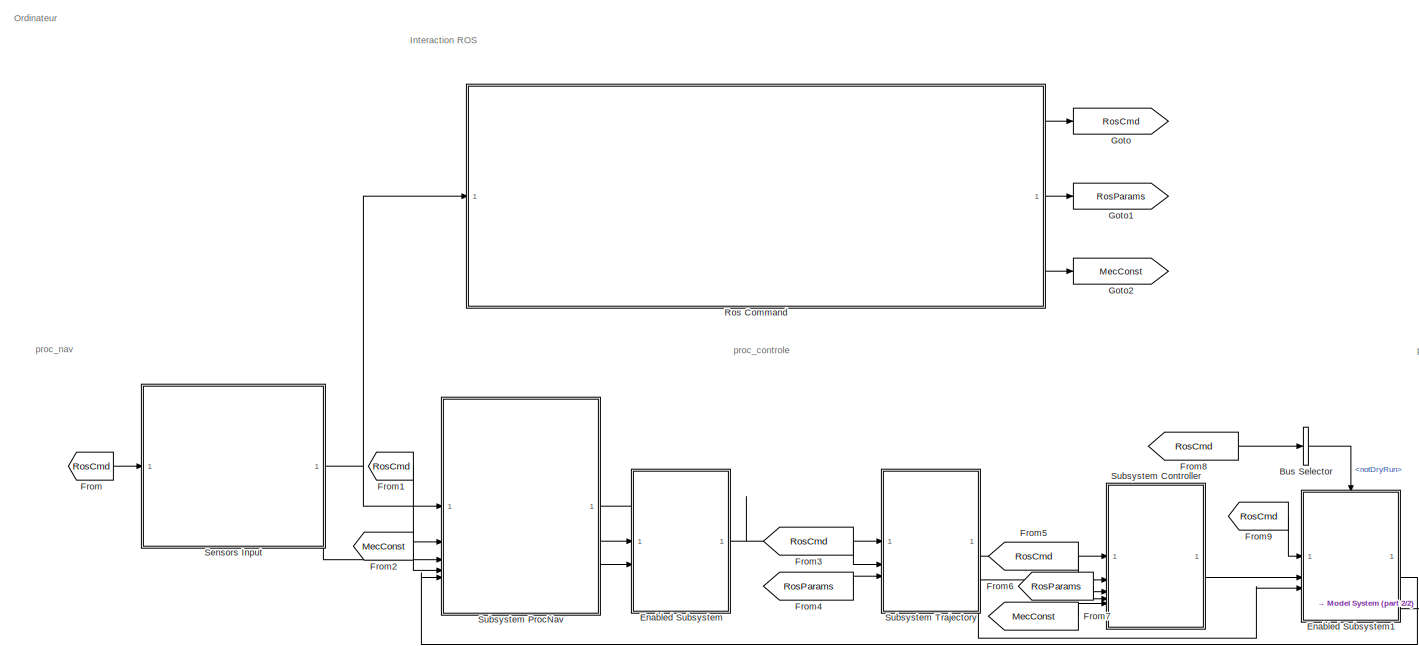
[diagram: root canvas - part 1/2, center side, full height]
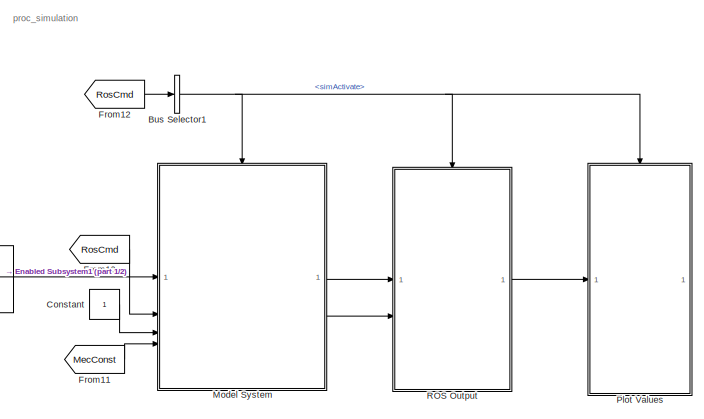
[diagram: root canvas - part 2/2, bottom right region]
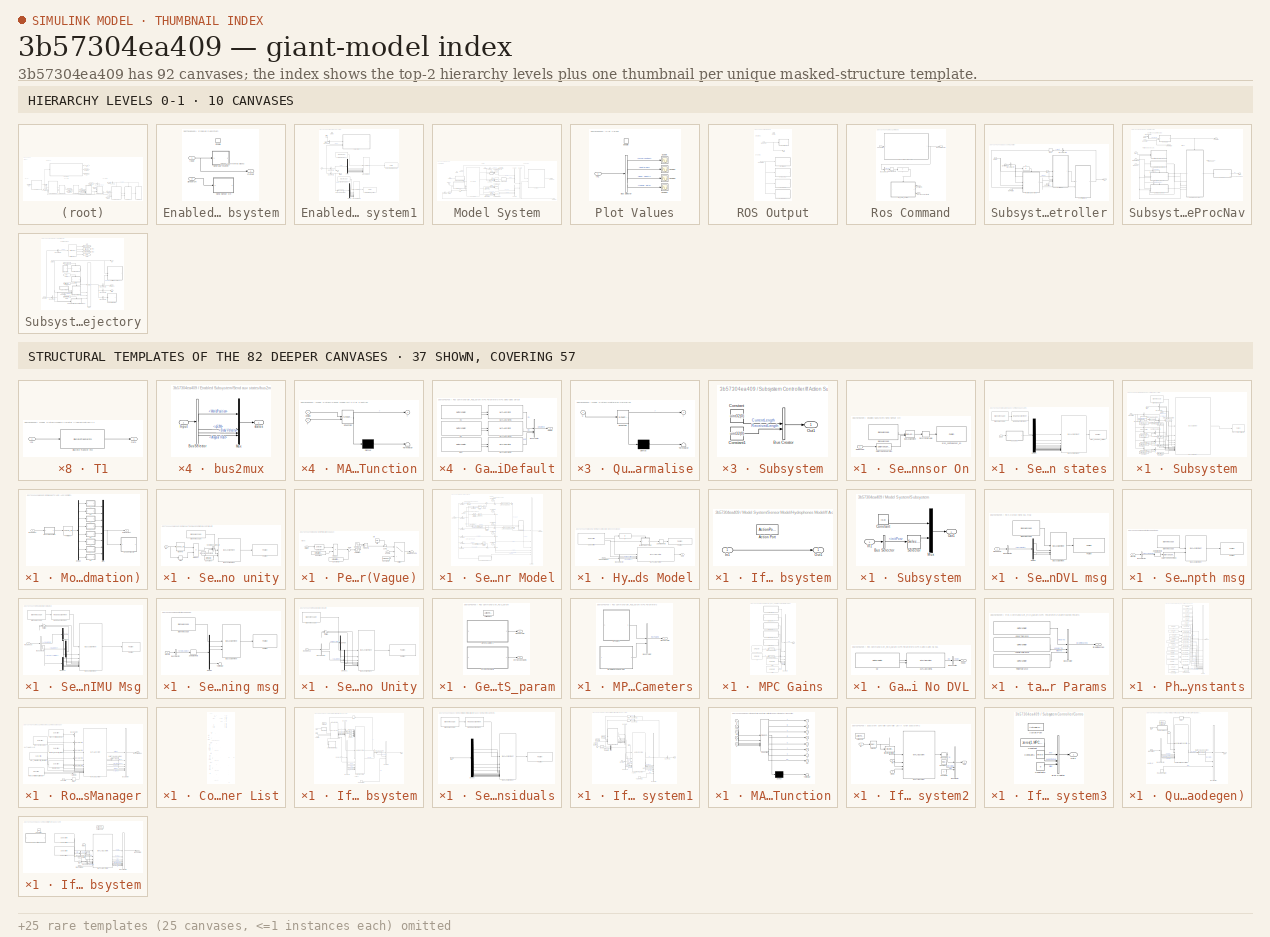
[diagram: thumbnail index - top-2 hierarchy levels (10 canvases) + 37 structural-template representatives of the remaining 82 canvases]
MODEL slx_3b57304ea409
KIND model
CONFIG AbsTol = auto
CONFIG EnableMultiTasking = off
CONFIG FixedStep = auto
CONFIG InitFcn = InitProcControl;
CONFIG MaxStep = auto
CONFIG MinStep = auto
CONFIG RelTol = 1e-3
CONFIG SampleTimeConstraint = Unconstrained
CONFIG SolverName = FixedStepAuto
CONFIG StartFcn = LoadParams;
CONFIG StartTime = 0.0
CONFIG StopTime = inf
WORKSPACE source: mxarray member
WORKSPACE SL_ROS_VariableLengthArrays_MaxSizes: object (value not decoded)
BLOCK [BusSelector] Bus Selector
  OutputSignals = notDryRun
BLOCK [BusSelector] Bus Selector1
  OutputSignals = simActivate
BLOCK [Constant] Constant
BLOCK [SubSystem] Enabled Subsystem
  TreatAsAtomicUnit = on
BLOCK [EnablePort] Enabled Subsystem/Enable
BLOCK [Inport] Enabled Subsystem/Input
BLOCK [Outport] Enabled Subsystem/Output
BLOCK [SubSystem] Enabled Subsystem/Send Sensor On
BLOCK [Reference] Enabled Subsystem/Send Sensor On/Blank Message  REF=ros2lib/Blank Message  (lib defined in slx_3c1549211f48)
  SourceBlock = ros2lib/Blank Message
  SourceType = ROS2 Blank Message
BLOCK [BusAssignment] Enabled Subsystem/Send Sensor On/Bus Assignment
  AssignedSignals = data
BLOCK [DataTypeConversion] Enabled Subsystem/Send Sensor On/Data Type Conversion
  OutDataTypeStr = boolean
  RndMeth = Floor
  SaturateOnIntegerOverflow = off
BLOCK [Inport] Enabled Subsystem/Send Sensor On/IsReached
BLOCK [ZeroOrderHold] Enabled Subsystem/Send Sensor On/Zero-Order Hold
BLOCK [Reference] Enabled Subsystem/Send Sensor On/proc_control sensor_on  REF=ros2lib/Publish  (lib defined in slx_3c1549211f48)
  SourceBlock = ros2lib/Publish
  SourceType = ROS2 Publish
BLOCK [SubSystem] Enabled Subsystem/Send auv states
BLOCK [Reference] Enabled Subsystem/Send auv states/Blank Message  REF=ros2lib/Blank Message  (lib defined in slx_3c1549211f48)
  SourceBlock = ros2lib/Blank Message
  SourceType = ROS2 Blank Message
BLOCK [BusAssignment] Enabled Subsystem/Send auv states/Bus Assignment
  AssignedSignals = pose.pose.position.x,pose.pose.position.y,pose.pose.position.z,pose.pose.orientation.w,pose.pose.orientation.x,pose.pose.orientation.y,pose.pose.orientation.z,twist.twist.linear.x,twist.twist.linear.y,twist.twist.linear.z,twist.twist.angular.x,twist.twist.angular.y,twist.twist.angular.z
BLOCK [Demux] Enabled Subsystem/Send auv states/Demux
  Outputs = 13
BLOCK [Reference] Enabled Subsystem/Send auv states/Header Assignment  REF=ros2lib/Header Assignment  (lib defined in slx_3c1549211f48)
  SourceBlock = ros2lib/Header Assignment
  SourceType = ROS2 Header
BLOCK [Inport] Enabled Subsystem/Send auv states/Input
BLOCK [SubSystem] Enabled Subsystem/Send auv states/bus2mux
BLOCK [BusSelector] Enabled Subsystem/Send auv states/bus2mux/Bus Selector
  OutputSignals = WorldPosition,qS2W,Body Velocity,Angular Rate
BLOCK [Inport] Enabled Subsystem/Send auv states/bus2mux/Input
BLOCK [Mux] Enabled Subsystem/Send auv states/bus2mux/Mux
  DisplayOption = bar
BLOCK [Outport] Enabled Subsystem/Send auv states/bus2mux/states
BLOCK [Reference] Enabled Subsystem/Send auv states/proc_nav auv_states  REF=ros2lib/Publish  (lib defined in slx_3c1549211f48)
  SourceBlock = ros2lib/Publish
  SourceType = ROS2 Publish
BLOCK [Inport] Enabled Subsystem/SensorOn
  Port = 2
BLOCK [SubSystem] Enabled Subsystem1
  TreatAsAtomicUnit = on
BLOCK [Reference] Enabled Subsystem1/Blank Message  REF=ros2lib/Blank Message  (lib defined in slx_3c1549211f48)
  SourceBlock = ros2lib/Blank Message
  SourceType = ROS2 Blank Message
BLOCK [Reference] Enabled Subsystem1/Blank Message1  REF=ros2lib/Blank Message  (lib defined in slx_3c1549211f48)
  SourceBlock = ros2lib/Blank Message
  SourceType = ROS2 Blank Message
BLOCK [BusAssignment] Enabled Subsystem1/Bus Assignment
  AssignedSignals = motor1,motor2,motor3,motor4,motor5,motor6,motor7,motor8
BLOCK [BusAssignment] Enabled Subsystem1/Bus Assignment1
  AssignedSignals = motor1,motor2,motor3,motor4,motor5,motor6,motor7,motor8
BLOCK [BusSelector] Enabled Subsystem1/Bus Selector
  OutputSignals = mode
BLOCK [BusSelector] Enabled Subsystem1/Bus Selector1
  OutputSignals = pwm
BLOCK [BusSelector] Enabled Subsystem1/Bus Selector2
  OutputSignals = Newton
BLOCK [DataTypeConversion] Enabled Subsystem1/Data Type Conversion
  OutDataTypeStr = uint16
  RndMeth = Floor
  SaturateOnIntegerOverflow = off
BLOCK [Demux] Enabled Subsystem1/Demux
  Outputs = 8
BLOCK [Demux] Enabled Subsystem1/Demux1
  Outputs = 8
BLOCK [EnablePort] Enabled Subsystem1/Enable
BLOCK [SubSystem] Enabled Subsystem1/Subsystem
BLOCK [Reference] Enabled Subsystem1/Subsystem/Blank Message  REF=ros2lib/Blank Message  (lib defined in slx_3c1549211f48)
  SourceBlock = ros2lib/Blank Message
  SourceType = ROS2 Blank Message
BLOCK [BusAssignment] Enabled Subsystem1/Subsystem/Bus Assignment
  AssignedSignals = target_reached,is_trajectory_done,mpc_mode,is_mpc_alive,thrusters_status,thrusters_status_SL_Info.CurrentLength,mpc_status,current_gains.ov,current_gains.ov_SL_Info.CurrentLength,current_gains.mv,current_gains.mv_SL_Info.CurrentLength,current_gains.mvr,current_gains.mvr_SL_Info.CurrentLength
BLOCK [BusSelector] Enabled Subsystem1/Subsystem/Bus Selector
  OutputSignals = isReached,isTrajDone
BLOCK [BusSelector] Enabled Subsystem1/Subsystem/Bus Selector1
  OutputAsBus = on
  OutputSignals = isMpcAlive
BLOCK [BusSelector] Enabled Subsystem1/Subsystem/Bus Selector2
  OutputSignals = mpcParams.thrustersStatus
BLOCK [BusSelector] Enabled Subsystem1/Subsystem/Bus Selector3
  OutputAsBus = on
  OutputSignals = MpcStatus
BLOCK [BusSelector] Enabled Subsystem1/Subsystem/Bus Selector4
  OutputAsBus = on
  OutputSignals = mpcParams.ywt
BLOCK [BusSelector] Enabled Subsystem1/Subsystem/Bus Selector5
  OutputAsBus = on
  OutputSignals = mpcParams.mvwt
BLOCK [BusSelector] Enabled Subsystem1/Subsystem/Bus Selector6
  OutputAsBus = on
  OutputSignals = mpcParams.dmwwt
BLOCK [Constant] Enabled Subsystem1/Subsystem/Constant
  Value = zeros(1,120)
  VectorParams1D = off
BLOCK [Constant] Enabled Subsystem1/Subsystem/Constant1
  Value = zeros(1,115)
  VectorParams1D = off
BLOCK [Constant] Enabled Subsystem1/Subsystem/Constant2
  Value = uint32(MPC.nu)
BLOCK [Constant] Enabled Subsystem1/Subsystem/Constant3
  Value = zeros(1,120)
  VectorParams1D = off
BLOCK [Constant] Enabled Subsystem1/Subsystem/Constant4
  Value = zeros(1,120)
  VectorParams1D = off
BLOCK [Constant] Enabled Subsystem1/Subsystem/Constant5
  Value = uint32(MPC.nx)
  VectorParams1D = off
BLOCK [Constant] Enabled Subsystem1/Subsystem/Constant6
  Value = uint32(MPC.nu)
BLOCK [Constant] Enabled Subsystem1/Subsystem/Constant7
  Value = uint32(MPC.nu)
BLOCK [DataTypeConversion] Enabled Subsystem1/Subsystem/Data Type Conversion
  OutDataTypeStr = boolean
  RndMeth = Floor
  SaturateOnIntegerOverflow = off
BLOCK [DataTypeConversion] Enabled Subsystem1/Subsystem/Data Type Conversion1
  OutDataTypeStr = boolean
  RndMeth = Floor
  SaturateOnIntegerOverflow = off
BLOCK [DataTypeConversion] Enabled Subsystem1/Subsystem/Data Type Conversion2
  OutDataTypeStr = double
  RndMeth = Floor
  SaturateOnIntegerOverflow = off
BLOCK [Concatenate] Enabled Subsystem1/Subsystem/Vector Concatenate
BLOCK [Concatenate] Enabled Subsystem1/Subsystem/Vector Concatenate1
BLOCK [Concatenate] Enabled Subsystem1/Subsystem/Vector Concatenate2
BLOCK [Concatenate] Enabled Subsystem1/Subsystem/Vector Concatenate3
BLOCK [Inport] Enabled Subsystem1/Subsystem/mode
  Port = 2
BLOCK [Inport] Enabled Subsystem1/Subsystem/mpc param
  Port = 3
  SampleTime = 0.02
BLOCK [Reference] Enabled Subsystem1/Subsystem/proc_control controller_info  REF=ros2lib/Publish  (lib defined in slx_3c1549211f48)
  SourceBlock = ros2lib/Publish
  SourceType = ROS2 Publish
BLOCK [Inport] Enabled Subsystem1/Subsystem/trajInfo
BLOCK [Inport] Enabled Subsystem1/in
  Port = 2
BLOCK [Inport] Enabled Subsystem1/mode
BLOCK [Outport] Enabled Subsystem1/mv
BLOCK [Reference] Enabled Subsystem1/provider_thruster thruster_pwm  REF=ros2lib/Publish  (lib defined in slx_3c1549211f48)
  SourceBlock = ros2lib/Publish
  SourceType = ROS2 Publish
BLOCK [Reference] Enabled Subsystem1/telemetry thruster_newton  REF=ros2lib/Publish  (lib defined in slx_3c1549211f48)
  SourceBlock = ros2lib/Publish
  SourceType = ROS2 Publish
BLOCK [Outport] Enabled Subsystem1/thrust
  Port = 2
BLOCK [Inport] Enabled Subsystem1/trajInfo
  Port = 3
BLOCK [From] From
  GotoTag = RosCmd
BLOCK [From] From1
  GotoTag = RosCmd
BLOCK [From] From10
  GotoTag = RosCmd
BLOCK [From] From11
  GotoTag = MecConst
BLOCK [From] From12
  GotoTag = RosCmd
BLOCK [From] From2
  GotoTag = MecConst
BLOCK [From] From3
  GotoTag = RosCmd
BLOCK [From] From4
  GotoTag = RosParams
BLOCK [From] From5
  GotoTag = RosCmd
BLOCK [From] From6
  GotoTag = RosParams
BLOCK [From] From7
  GotoTag = MecConst
BLOCK [From] From8
  GotoTag = RosCmd
BLOCK [From] From9
  GotoTag = RosCmd
BLOCK [Goto] Goto
  GotoTag = RosCmd
BLOCK [Goto] Goto1
  GotoTag = RosParams
BLOCK [Goto] Goto2
  GotoTag = MecConst
BLOCK [SubSystem] Model System
  TreatAsAtomicUnit = on
BLOCK [BusCreator] Model System/Bus Creator
  DisplayOption = bar
  InheritFromInputs = on
  Inputs = 2
BLOCK [BusCreator] Model System/Bus Creator1
  DisplayOption = bar
  InheritFromInputs = on
  Inputs = 3
BLOCK [BusCreator] Model System/Bus Creator2
  DisplayOption = bar
  InheritFromInputs = on
  Inputs = 2
BLOCK [BusSelector] Model System/Bus Selector
  OutputSignals = navReset
BLOCK [BusSelector] Model System/Bus Selector1
  OutputSignals = initQuat
BLOCK [BusSelector] Model System/Bus Selector2
  OutputAsBus = on
  OutputSignals = x.World Position,x.Quaternion,v.Body Velocity,v.Angular Rate
BLOCK [Outport] Model System/Clean Output
BLOCK [DiscreteIntegrator] Model System/Discrete-Time Integrator
  ExternalReset = rising
  ICPrevOutput = DiscIntNeverNeededParam
  ICPrevScaledInput = DiscIntNeverNeededParam
  InitialConditionSetting = Auto
  InitialConditionSource = external
  IntegratorMethod = Integration: Trapezoidal
  SampleTime = simulink.sampletime
BLOCK [DiscreteIntegrator] Model System/Discrete-Time Integrator1
  ExternalReset = rising
  ICPrevOutput = DiscIntNeverNeededParam
  ICPrevScaledInput = DiscIntNeverNeededParam
  InitialConditionSetting = Auto
  InitialConditionSource = external
  IntegratorMethod = Integration: Trapezoidal
  SampleTime = simulink.sampletime
BLOCK [DiscreteIntegrator] Model System/Discrete-Time Integrator2
  ExternalReset = rising
  ICPrevOutput = DiscIntNeverNeededParam
  ICPrevScaledInput = DiscIntNeverNeededParam
  InitialConditionSetting = Auto
  InitialConditionSource = external
  IntegratorMethod = Integration: Trapezoidal
  SampleTime = simulink.sampletime
BLOCK [DiscreteIntegrator] Model System/Discrete-Time Integrator3
  ExternalReset = rising
  ICPrevOutput = DiscIntNeverNeededParam
  ICPrevScaledInput = DiscIntNeverNeededParam
  InitialConditionSetting = Auto
  InitialConditionSource = external
  IntegratorMethod = Integration: Trapezoidal
  SampleTime = simulink.sampletime
BLOCK [EnablePort] Model System/Enable
BLOCK [From] Model System/From
  GotoTag = Videotron
BLOCK [From] Model System/From1
  GotoTag = Videotron
BLOCK [From] Model System/From2
  GotoTag = Videotron
BLOCK [From] Model System/From3
  GotoTag = Videotron
BLOCK [Goto] Model System/Goto
  GotoTag = Videotron
BLOCK [Constant] Model System/Initial Angular Rates
  Value = [0,0,0]
BLOCK [Constant] Model System/Initial Body Velocity
  Value = [0,0,0]
BLOCK [MATLABSystem] Model System/MATLAB System
  MPC = MPC
  MaskDisplay = disp('AuvDifferentialEquation');\nport_label('input',1,'mecConst');\nport_label('input',2,'thrust');\nport_label('input',3,'perturbations');\nport_label('input',4,'states');\nport_label('output',1,'Position_dot');\nport_label('output',2,'Quaternion_dot');\nport_label('output',3,'BodyVelocity_dot');\nport_label('output',4,'AngularRates_dot');
  MaskType = AuvDifferentialEquation
  SimulateUsing = Code generation
  System = AuvDifferentialEquation
  simulation = simulation
  useDynamicsConst = off
BLOCK [SubSystem] Model System/Modele Thruster (Approximation)
BLOCK [Demux] Model System/Modele Thruster (Approximation)/Demux
  Outputs = 8
BLOCK [Inport] Model System/Modele Thruster (Approximation)/Input Thrust
BLOCK [SubSystem] Model System/Modele Thruster (Approximation)/MATLAB Function
  ErrorFcn = Stateflow.Translate.translate
  PermitHierarchicalResolution = ExplicitOnly
  SFBlockType = MATLAB Function
  TreatAsAtomicUnit = on
BLOCK [Demux] Model System/Modele Thruster (Approximation)/MATLAB Function/ Demux 
  Outputs = 1
BLOCK [S-Function] Model System/Modele Thruster (Approximation)/MATLAB Function/ SFunction 
  EnableBusSupport = on
  FunctionName = sf_sfun
  PortCounts = [1 2]
  SFcnIsStateOwnerBlock = off
  SFunctionDeploymentMode = off
  Tag = Stateflow S-Function 7
BLOCK [Terminator] Model System/Modele Thruster (Approximation)/MATLAB Function/ Terminator 
BLOCK [Inport] Model System/Modele Thruster (Approximation)/MATLAB Function/u
BLOCK [Outport] Model System/Modele Thruster (Approximation)/MATLAB Function/y
BLOCK [Mux] Model System/Modele Thruster (Approximation)/Mux
  DisplayOption = bar
  Inputs = 8
BLOCK [Outport] Model System/Modele Thruster (Approximation)/Output Thrust
BLOCK [Lookup_n-D] Model System/Modele Thruster (Approximation)/PWN to N
  BreakpointsForDimension1 = PWM
  BreakpointsForDimension1DataTypeStr = uint16
  BreakpointsForDimension3 = [5, 7]
  InputPortMap = u0
  InternalRulePriority = Speed
  InterpMethod = Nearest
  NumberOfTableDimensions = 1
  OutDataTypeStr = double
  RndMeth = Simplest
  Table = N
  TableDataTypeStr = double
BLOCK [SubSystem] Model System/Modele Thruster (Approximation)/Send RPM to unity
BLOCK [Reference] Model System/Modele Thruster (Approximation)/Send RPM to unity/Blank Message  REF=ros2lib/Blank Message  (lib defined in slx_3c1549211f48)
  SourceBlock = ros2lib/Blank Message
  SourceType = ROS2 Blank Message
BLOCK [BusAssignment] Model System/Modele Thruster (Approximation)/Send RPM to unity/Bus Assignment
  AssignedSignals = data,data_SL_Info.CurrentLength
BLOCK [Constant] Model System/Modele Thruster (Approximation)/Send RPM to unity/Constant
  Value = uint32(8)
  VectorParams1D = off
BLOCK [Constant] Model System/Modele Thruster (Approximation)/Send RPM to unity/Constant1
  Value = int16(zeros(1,120))
BLOCK [Inport] Model System/Modele Thruster (Approximation)/Send RPM to unity/In1
BLOCK [Lookup_n-D] Model System/Modele Thruster (Approximation)/Send RPM to unity/N to RPM
  BeginIndexSearchUsingPreviousIndexResult = on
  BreakpointsForDimension1 = N
  BreakpointsForDimension1DataTypeStr = double
  BreakpointsForDimension3 = [5, 7]
  InputPortMap = u0
  InternalRulePriority = Speed
  InterpMethod = Nearest
  NumberOfTableDimensions = 1
  OutDataTypeStr = int16
  RndMeth = Simplest
  Table = RPM
  TableDataTypeStr = double
BLOCK [Product] Model System/Modele Thruster (Approximation)/Send RPM to unity/Product
  OutDataTypeStr = int16
BLOCK [Reference] Model System/Modele Thruster (Approximation)/Send RPM to unity/Publish  REF=ros2lib/Publish  (lib defined in slx_3c1549211f48)
  SourceBlock = ros2lib/Publish
  SourceType = ROS2 Publish
BLOCK [Signum] Model System/Modele Thruster (Approximation)/Send RPM to unity/Sign
BLOCK [Concatenate] Model System/Modele Thruster (Approximation)/Send RPM to unity/Vector Concatenate
BLOCK [SubSystem] Model System/Modele Thruster (Approximation)/T1
BLOCK [DiscreteTransferFcn] Model System/Modele Thruster (Approximation)/T1/Discrete Transfer Fcn
  Denominator = [1  physics.thruster.b0]
  InputPortMap = u0
  Numerator = [physics.thruster.a1 0 ]
BLOCK [Inport] Model System/Modele Thruster (Approximation)/T1/In1
BLOCK [Outport] Model System/Modele Thruster (Approximation)/T1/Out1
BLOCK [SubSystem] Model System/Modele Thruster (Approximation)/T2
BLOCK [DiscreteTransferFcn] Model System/Modele Thruster (Approximation)/T2/Discrete Transfer Fcn
  Denominator = [1  physics.thruster.b0]
  InputPortMap = u0
  Numerator = [physics.thruster.a1 0 ]
BLOCK [Inport] Model System/Modele Thruster (Approximation)/T2/In1
BLOCK [Outport] Model System/Modele Thruster (Approximation)/T2/Out1
BLOCK [SubSystem] Model System/Modele Thruster (Approximation)/T3
BLOCK [DiscreteTransferFcn] Model System/Modele Thruster (Approximation)/T3/Discrete Transfer Fcn
  Denominator = [1  physics.thruster.b0]
  InputPortMap = u0
  Numerator = [physics.thruster.a1 0 ]
BLOCK [Inport] Model System/Modele Thruster (Approximation)/T3/In1
BLOCK [Outport] Model System/Modele Thruster (Approximation)/T3/Out1
BLOCK [SubSystem] Model System/Modele Thruster (Approximation)/T4
BLOCK [DiscreteTransferFcn] Model System/Modele Thruster (Approximation)/T4/Discrete Transfer Fcn
  Denominator = [1  physics.thruster.b0]
  InputPortMap = u0
  Numerator = [physics.thruster.a1 0 ]
BLOCK [Inport] Model System/Modele Thruster (Approximation)/T4/In1
BLOCK [Outport] Model System/Modele Thruster (Approximation)/T4/Out1
BLOCK [SubSystem] Model System/Modele Thruster (Approximation)/T5
BLOCK [DiscreteTransferFcn] Model System/Modele Thruster (Approximation)/T5/Discrete Transfer Fcn
  Denominator = [1  physics.thruster.b0]
  InputPortMap = u0
  Numerator = [physics.thruster.a1 0 ]
BLOCK [Inport] Model System/Modele Thruster (Approximation)/T5/In1
BLOCK [Outport] Model System/Modele Thruster (Approximation)/T5/Out1
BLOCK [SubSystem] Model System/Modele Thruster (Approximation)/T6
BLOCK [DiscreteTransferFcn] Model System/Modele Thruster (Approximation)/T6/Discrete Transfer Fcn
  Denominator = [1  physics.thruster.b0]
  InputPortMap = u0
  Numerator = [physics.thruster.a1 0 ]
BLOCK [Inport] Model System/Modele Thruster (Approximation)/T6/In1
BLOCK [Outport] Model System/Modele Thruster (Approximation)/T6/Out1
BLOCK [SubSystem] Model System/Modele Thruster (Approximation)/T7
BLOCK [DiscreteTransferFcn] Model System/Modele Thruster (Approximation)/T7/Discrete Transfer Fcn
  Denominator = [1  physics.thruster.b0]
  InputPortMap = u0
  Numerator = [physics.thruster.a1 0 ]
BLOCK [Inport] Model System/Modele Thruster (Approximation)/T7/In1
BLOCK [Outport] Model System/Modele Thruster (Approximation)/T7/Out1
BLOCK [SubSystem] Model System/Modele Thruster (Approximation)/T8
BLOCK [DiscreteTransferFcn] Model System/Modele Thruster (Approximation)/T8/Discrete Transfer Fcn
  Denominator = [1  physics.thruster.b0]
  InputPortMap = u0
  Numerator = [physics.thruster.a1 0 ]
BLOCK [Inport] Model System/Modele Thruster (Approximation)/T8/In1
BLOCK [Outport] Model System/Modele Thruster (Approximation)/T8/Out1
BLOCK [SubSystem] Model System/Pertubations (Vague)
BLOCK [Constant] Model System/Pertubations (Vague)/Constant
  Value = simulation.wave.damp.A
BLOCK [Constant] Model System/Pertubations (Vague)/Constant1
  Value = simulation.wave.damp.B
BLOCK [Constant] Model System/Pertubations (Vague)/Constant2
  Value = zeros(1,6)
BLOCK [Outport] Model System/Pertubations (Vague)/Disturbed Force
BLOCK [UniformRandomNumber] Model System/Pertubations (Vague)/Drift
  Maximum = dmax
  Minimum = dmin
  SampleTime = dts
  Seed = dSeedX
BLOCK [Inport] Model System/Pertubations (Vague)/Enable
BLOCK [Product] Model System/Pertubations (Vague)/Product
BLOCK [Product] Model System/Pertubations (Vague)/Product1
BLOCK [Saturate] Model System/Pertubations (Vague)/Saturation
  LowerLimit = simulation.wave.damp.max
  UpperLimit = simulation.wave.damp.min
BLOCK [Selector] Model System/Pertubations (Vague)/Selector
  IndexOptions = Index vector (dialog)
  Indices = [3]
  InputPortWidth = 13
  OutputSizes = 1
BLOCK [Sin] Model System/Pertubations (Vague)/Sine Wave
  Amplitude = simulation.wave.amplitudes
  Offset = waveDiscretePhase
  SampleTime = simulink.sampletime
  Samples = waveDiscreteFrequency
  SineType = Sample based
BLOCK [Sum] Model System/Pertubations (Vague)/Sum
  Inputs = |++
BLOCK [Sum] Model System/Pertubations (Vague)/Sum1
  Inputs = ++|
BLOCK [Switch] Model System/Pertubations (Vague)/Switch
  Criteria = u2 > Threshold
  InputSameDT = off
  SaturateOnIntegerOverflow = off
BLOCK [Inport] Model System/Pertubations (Vague)/states
  Port = 2
BLOCK [SubSystem] Model System/Quaternion Normalise
  ErrorFcn = Stateflow.Translate.translate
  PermitHierarchicalResolution = ExplicitOnly
  SFBlockType = MATLAB Function
  TreatAsAtomicUnit = on
BLOCK [Demux] Model System/Quaternion Normalise/ Demux 
  Outputs = 1
BLOCK [S-Function] Model System/Quaternion Normalise/ SFunction 
  EnableBusSupport = on
  FunctionName = sf_sfun
  PortCounts = [1 2]
  SFcnIsStateOwnerBlock = off
  SFunctionDeploymentMode = off
  Tag = Stateflow S-Function 8
BLOCK [Terminator] Model System/Quaternion Normalise/ Terminator 
BLOCK [Inport] Model System/Quaternion Normalise/u
BLOCK [Outport] Model System/Quaternion Normalise/y
BLOCK [Inport] Model System/RosCmd
  Port = 2
BLOCK [Scope] Model System/Scope
  Floating = off
  NumInputPorts = 1
  ScopeSpecificationString = Simulink.scopes.TimeScopeBlockCfg('CurrentConfiguration', extmgr.ConfigurationSet(extmgr.Configuration('Core','General UI',true),extmgr.Configuration('Core','Source UI',true),extmgr.Configuration('Sources','WiredSimulink',true,'DataLoggingVariableName','ScopeData1'),extmgr.Configuration('Visuals','Time Domain',true),extmgr.Configuration('Tools','Plot Navigation',true),extmgr.Configuration('Tools',...<+40ch>
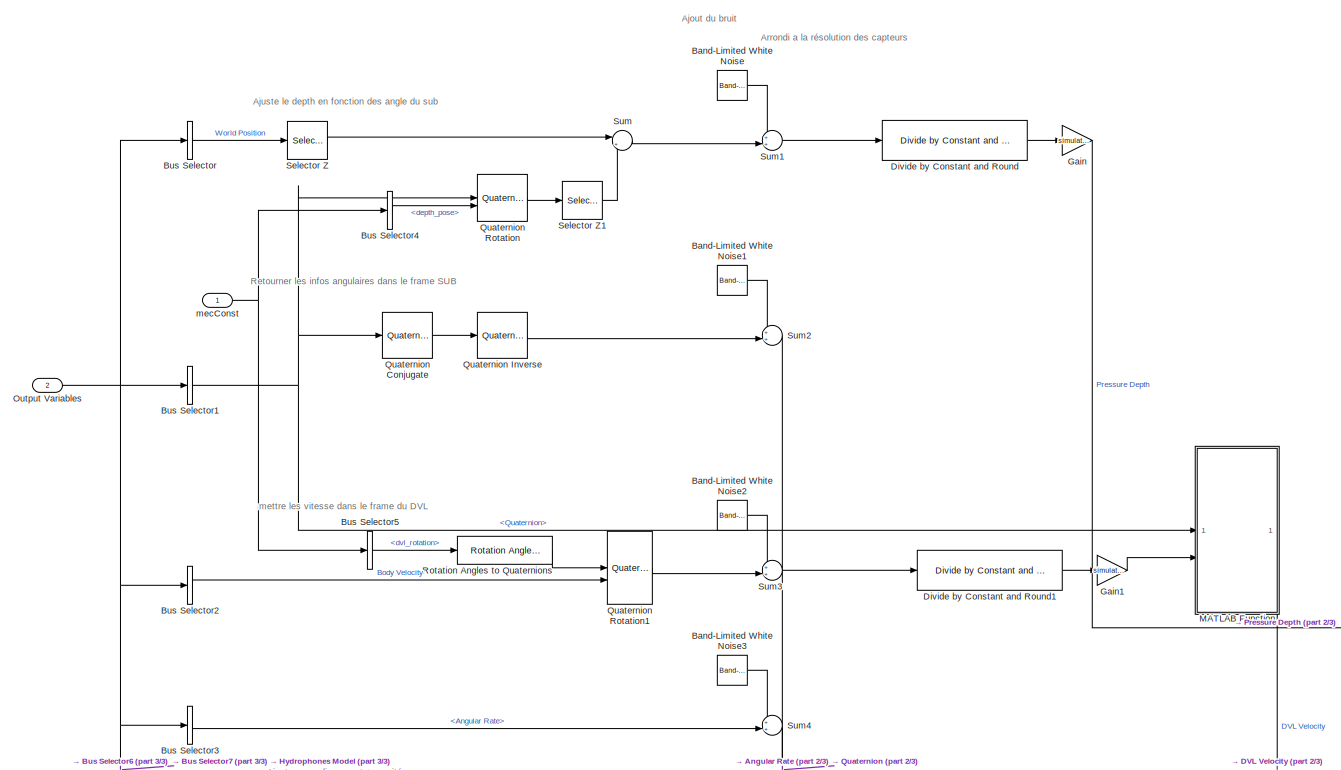
[diagram: Model System/Sensor Model - part 1/3, full width, top band]
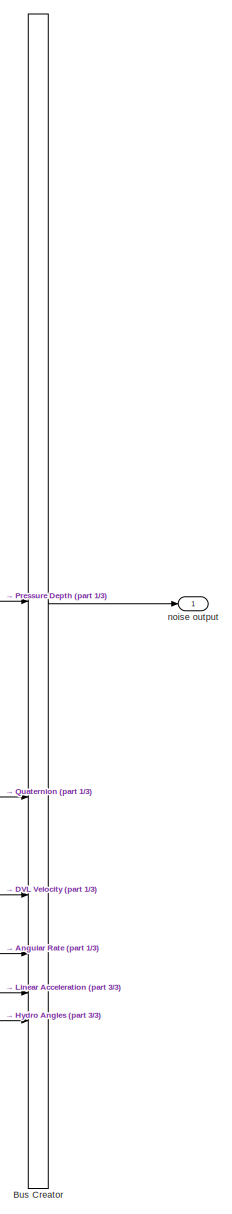
[diagram: Model System/Sensor Model - part 2/3, right side, full height]
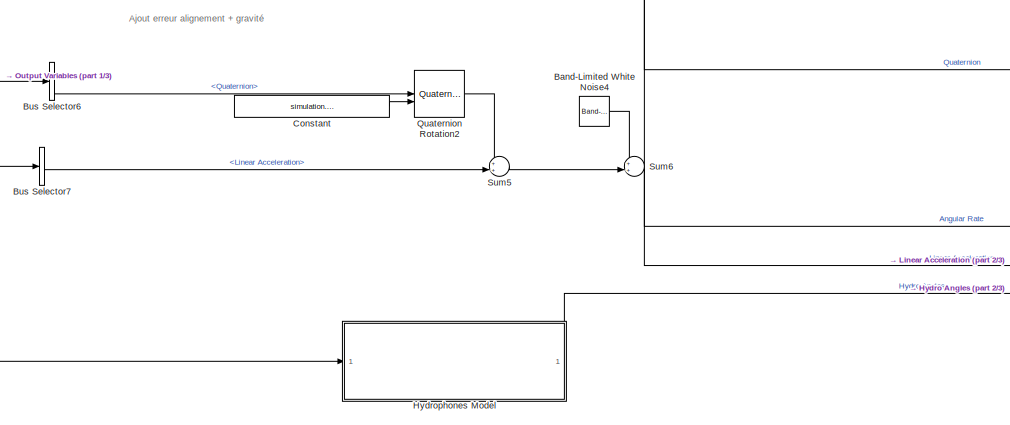
[diagram: Model System/Sensor Model - part 3/3, bottom center region]
BLOCK [SubSystem] Model System/Sensor Model
BLOCK [Reference] Model System/Sensor Model/Band-Limited White Noise  REF=simulink/Sources/Band-Limited
White Noise
  SourceBlock = simulink/Sources/Band-Limited\nWhite Noise
  SourceType = Band-Limited White Noise.
BLOCK [Reference] Model System/Sensor Model/Band-Limited White Noise1  REF=simulink/Sources/Band-Limited
White Noise
  SourceBlock = simulink/Sources/Band-Limited\nWhite Noise
  SourceType = Band-Limited White Noise.
BLOCK [Reference] Model System/Sensor Model/Band-Limited White Noise2  REF=simulink/Sources/Band-Limited
White Noise
  SourceBlock = simulink/Sources/Band-Limited\nWhite Noise
  SourceType = Band-Limited White Noise.
BLOCK [Reference] Model System/Sensor Model/Band-Limited White Noise3  REF=simulink/Sources/Band-Limited
White Noise
  SourceBlock = simulink/Sources/Band-Limited\nWhite Noise
  SourceType = Band-Limited White Noise.
BLOCK [Reference] Model System/Sensor Model/Band-Limited White Noise4  REF=simulink/Sources/Band-Limited
White Noise
  SourceBlock = simulink/Sources/Band-Limited\nWhite Noise
  SourceType = Band-Limited White Noise.
BLOCK [BusCreator] Model System/Sensor Model/Bus Creator
  DisplayOption = bar
  InheritFromInputs = on
  Inputs = 6
BLOCK [BusSelector] Model System/Sensor Model/Bus Selector
  OutputAsBus = on
  OutputSignals = x.World Position
BLOCK [BusSelector] Model System/Sensor Model/Bus Selector1
  OutputSignals = x.Quaternion
BLOCK [BusSelector] Model System/Sensor Model/Bus Selector2
  OutputAsBus = on
  OutputSignals = v.Body Velocity
BLOCK [BusSelector] Model System/Sensor Model/Bus Selector3
  OutputSignals = v.Angular Rate
BLOCK [BusSelector] Model System/Sensor Model/Bus Selector4
  OutputSignals = depth_pose
BLOCK [BusSelector] Model System/Sensor Model/Bus Selector5
  OutputSignals = dvl_rotation
BLOCK [BusSelector] Model System/Sensor Model/Bus Selector6
  OutputSignals = x.Quaternion
BLOCK [BusSelector] Model System/Sensor Model/Bus Selector7
  OutputSignals = v.Linear Acceleration
BLOCK [Constant] Model System/Sensor Model/Constant
  Value = simulation.sensors.imu.acc.bias
BLOCK [Reference] Model System/Sensor Model/Divide by Constant and Round  REF=embmathops/Divide by Constant and Round
  LibrarySourceBlock = embeddedMathLib/Divide by Constant and Round
  SourceBlock = embmathops/Divide by Constant and Round
  SourceType = fixed.system.DivideByConstantAndRound
BLOCK [Reference] Model System/Sensor Model/Divide by Constant and Round1  REF=embmathops/Divide by Constant and Round
  LibrarySourceBlock = embeddedMathLib/Divide by Constant and Round
  SourceBlock = embmathops/Divide by Constant and Round
  SourceType = fixed.system.DivideByConstantAndRound
BLOCK [Gain] Model System/Sensor Model/Gain
  Gain = simulation.sensors.depth.resolution
BLOCK [Gain] Model System/Sensor Model/Gain1
  Gain = simulation.sensors.dvl.resolution
BLOCK [SubSystem] Model System/Sensor Model/Hydrophones Model
BLOCK [BusSelector] Model System/Sensor Model/Hydrophones Model/Bus S elector
  OutputSignals = x.World Position,x.Quaternion
BLOCK [If] Model System/Sensor Model/Hydrophones Model/If
  IfExpression = u1 == 0
  ShowElse = off
BLOCK [SubSystem] Model System/Sensor Model/Hydrophones Model/If Action Subsystem
  TreatAsAtomicUnit = on
BLOCK [ActionPort] Model System/Sensor Model/Hydrophones Model/If Action Subsystem/Action Port
  ActionPortLabel = if(u1 == 0)
BLOCK [Inport] Model System/Sensor Model/Hydrophones Model/If Action Subsystem/In1
BLOCK [Outport] Model System/Sensor Model/Hydrophones Model/If Action Subsystem/Out1
BLOCK [MATLABSystem] Model System/Sensor Model/Hydrophones Model/MATLAB System
  MaskDisplay = disp('HydroModel');\nport_label('input',1,'isNewPosition');\nport_label('input',2,'pingerPosition');\nport_label('input',3,'worldPosition');\nport_label('input',4,'quaternion');\nport_label('output',1,'HydroMesurements');
  MaskType = HydroModel
  Physics = physics
  SimulateUsing = Code generation
  System = HydroModel
  pingerStartPosition = [10 0 5]
  simulation = simulation
BLOCK [Outport] Model System/Sensor Model/Hydrophones Model/Out1
BLOCK [Inport] Model System/Sensor Model/Hydrophones Model/Output Variables
BLOCK [Reference] Model System/Sensor Model/Hydrophones Model/Publish  REF=ros2lib/Publish  (lib defined in slx_3c1549211f48)
  SourceBlock = ros2lib/Publish
  SourceType = ROS2 Publish
BLOCK [Reference] Model System/Sensor Model/Hydrophones Model/Subscribe  REF=ros2lib/Subscribe  (lib defined in slx_3c1549211f48)
  SourceBlock = ros2lib/Subscribe
  SourceType = ROS2 Subscribe
BLOCK [ZeroOrderHold] Model System/Sensor Model/Hydrophones Model/Zero-Order Hold
BLOCK [SubSystem] Model System/Sensor Model/MATLAB Function
  ErrorFcn = Stateflow.Translate.translate
  PermitHierarchicalResolution = ExplicitOnly
  SFBlockType = MATLAB Function
  TreatAsAtomicUnit = on
BLOCK [Demux] Model System/Sensor Model/MATLAB Function/ Demux 
  Outputs = 1
BLOCK [S-Function] Model System/Sensor Model/MATLAB Function/ SFunction 
  EnableBusSupport = on
  FunctionName = sf_sfun
  PortCounts = [2 2]
  SFcnIsStateOwnerBlock = off
  SFunctionDeploymentMode = off
  Tag = Stateflow S-Function 9
BLOCK [Terminator] Model System/Sensor Model/MATLAB Function/ Terminator 
BLOCK [Inport] Model System/Sensor Model/MATLAB Function/epsilon
BLOCK [Inport] Model System/Sensor Model/MATLAB Function/v
  Port = 2
BLOCK [Outport] Model System/Sensor Model/MATLAB Function/y
BLOCK [Inport] Model System/Sensor Model/Output Variables
  Port = 2
BLOCK [Reference] Model System/Sensor Model/Quaternion Conjugate  REF=aerolibutil/Quaternion
Conjugate
  SourceBlock = aerolibutil/Quaternion\nConjugate
  SourceType = Quaternion Conjugate
BLOCK [Reference] Model System/Sensor Model/Quaternion Inverse  REF=aerolibutil/Quaternion
Inverse
  SourceBlock = aerolibutil/Quaternion\nInverse
  SourceType = Quaternion Inverse
BLOCK [Reference] Model System/Sensor Model/Quaternion Rotation  REF=aerolibutil/Quaternion
Rotation
  SourceBlock = aerolibutil/Quaternion\nRotation
  SourceType = Quaternion Rotation
BLOCK [Reference] Model System/Sensor Model/Quaternion Rotation1  REF=aerolibutil/Quaternion
Rotation
  SourceBlock = aerolibutil/Quaternion\nRotation
  SourceType = Quaternion Rotation
BLOCK [Reference] Model System/Sensor Model/Quaternion Rotation2  REF=aerolibutil/Quaternion
Rotation
  SourceBlock = aerolibutil/Quaternion\nRotation
  SourceType = Quaternion Rotation
BLOCK [Reference] Model System/Sensor Model/Rotation Angles to Quaternions  REF=sharedtransform/Rotation Angles to Quaternions
  AttributesFormatString = Rotation Order: %<rotationOrder>
  LibrarySourceBlock = aerolibtransform2/Rotation Angles to Quaternions
  SourceBlock = sharedtransform/Rotation Angles to Quaternions
  SourceType = Ang2Quat
BLOCK [Selector] Model System/Sensor Model/Selector Z
  IndexOptions = Index vector (dialog)
  Indices = [3]
  InputPortWidth = 3
  OutputSizes = 1
BLOCK [Selector] Model System/Sensor Model/Selector Z1
  IndexOptions = Index vector (dialog)
  Indices = [3]
  InputPortWidth = 3
  OutputSizes = 1
BLOCK [Sum] Model System/Sensor Model/Sum
  Inputs = |++
BLOCK [Sum] Model System/Sensor Model/Sum1
  Inputs = ++|
BLOCK [Sum] Model System/Sensor Model/Sum2
  Inputs = ++|
BLOCK [Sum] Model System/Sensor Model/Sum3
  Inputs = ++|
BLOCK [Sum] Model System/Sensor Model/Sum4
  Inputs = ++|
BLOCK [Sum] Model System/Sensor Model/Sum5
  Inputs = ++|
BLOCK [Sum] Model System/Sensor Model/Sum6
  Inputs = ++|
BLOCK [Inport] Model System/Sensor Model/mecConst
BLOCK [Outport] Model System/Sensor Model/noise output
BLOCK [Outport] Model System/Sensors Output
  Port = 2
BLOCK [SubSystem] Model System/Subsystem
BLOCK [BusSelector] Model System/Subsystem/Bus Selector
  OutputSignals = initPos
BLOCK [Constant] Model System/Subsystem/Constant
  Value = [0,0]
BLOCK [Inport] Model System/Subsystem/In1
BLOCK [Mux] Model System/Subsystem/Mux
  DisplayOption = bar
  Inputs = 2
BLOCK [Outport] Model System/Subsystem/Out1
BLOCK [Selector] Model System/Subsystem/Selector
  IndexOptions = Index vector (dialog)
  Indices = [3]
  InputPortWidth = 3
  OutputSizes = 1
BLOCK [Inport] Model System/Thrust Input
BLOCK [UnitDelay] Model System/Unit Delay
  HasFrameUpgradeWarning = on
  InitialCondition = MPC.Xi
  SampleTime = simulink.sampletime
BLOCK [Inport] Model System/disturbance
  Port = 3
BLOCK [Inport] Model System/mecConst
  Port = 4
BLOCK [SubSystem] Plot Values
  TreatAsAtomicUnit = on
BLOCK [BusSelector] Plot Values/Bus Selector
  OutputSignals = x.World Position,x.Quaternion,v.Body Velocity,v.Angular Rate
BLOCK [EnablePort] Plot Values/Enable
BLOCK [Inport] Plot Values/In1
BLOCK [Scope] Plot Values/Scope
  Floating = off
  NumInputPorts = 1
  ScopeSpecificationString = Simulink.scopes.TimeScopeBlockCfg('CurrentConfiguration', extmgr.ConfigurationSet(extmgr.Configuration('Core','General UI',true),extmgr.Configuration('Core','Source UI',true),extmgr.Configuration('Sources','WiredSimulink',true,'DataLoggingVariableName','ScopeData2'),extmgr.Configuration('Visuals','Time Domain',true,'SerializedDisplays',{struct('MinYLimReal','-10','MaxYLimReal','10','YLabelReal',''...<+909ch>
BLOCK [Scope] Plot Values/Scope1
  Floating = off
  NumInputPorts = 1
  ScopeSpecificationString = Simulink.scopes.TimeScopeBlockCfg('CurrentConfiguration', extmgr.ConfigurationSet(extmgr.Configuration('Core','General UI',true),extmgr.Configuration('Core','Source UI',true),extmgr.Configuration('Sources','WiredSimulink',true,'DataLoggingVariableName','ScopeData3'),extmgr.Configuration('Visuals','Time Domain',true),extmgr.Configuration('Tools','Plot Navigation',true),extmgr.Configuration('Tools',...<+40ch>
BLOCK [Scope] Plot Values/Scope2
  Floating = off
  NumInputPorts = 1
  ScopeSpecificationString = Simulink.scopes.TimeScopeBlockCfg('CurrentConfiguration', extmgr.ConfigurationSet(extmgr.Configuration('Core','General UI',true),extmgr.Configuration('Core','Source UI',true),extmgr.Configuration('Sources','WiredSimulink',true,'DataLoggingVariableName','ScopeData4'),extmgr.Configuration('Visuals','Time Domain',true,'SerializedDisplays',{struct('MinYLimReal','-10','MaxYLimReal','10','YLabelReal',''...<+935ch>
BLOCK [Scope] Plot Values/Scope3
  Floating = off
  NumInputPorts = 1
  ScopeSpecificationString = Simulink.scopes.TimeScopeBlockCfg('CurrentConfiguration', extmgr.ConfigurationSet(extmgr.Configuration('Core','General UI',true),extmgr.Configuration('Core','Source UI',true),extmgr.Configuration('Sources','WiredSimulink',true,'DataLoggingVariableName','ScopeData5'),extmgr.Configuration('Visuals','Time Domain',true),extmgr.Configuration('Tools','Plot Navigation',true),extmgr.Configuration('Tools',...<+40ch>
BLOCK [SubSystem] ROS Output
  TreatAsAtomicUnit = on
BLOCK [EnablePort] ROS Output/Enable
BLOCK [Outport] ROS Output/Out1
BLOCK [Inport] ROS Output/Response
BLOCK [SubSystem] ROS Output/Send DVL msg
BLOCK [Reference] ROS Output/Send DVL msg/Blank Message  REF=ros2lib/Blank Message  (lib defined in slx_3c1549211f48)
  SourceBlock = ros2lib/Blank Message
  SourceType = ROS2 Blank Message
BLOCK [BusAssignment] ROS Output/Send DVL msg/Bus Assignment
  AssignedSignals = x_vel_btm,y_vel_btm,z_vel_btm
BLOCK [BusSelector] ROS Output/Send DVL msg/Bus Selector
  OutputSignals = DVL Velocity
BLOCK [Demux] ROS Output/Send DVL msg/Demux
  Outputs = 3
BLOCK [Reference] ROS Output/Send DVL msg/Publish  REF=ros2lib/Publish  (lib defined in slx_3c1549211f48)
  SourceBlock = ros2lib/Publish
  SourceType = ROS2 Publish
BLOCK [Inport] ROS Output/Send DVL msg/Response
BLOCK [SubSystem] ROS Output/Send Depth msg
BLOCK [Reference] ROS Output/Send Depth msg/Blank Message  REF=ros2lib/Blank Message  (lib defined in slx_3c1549211f48)
  SourceBlock = ros2lib/Blank Message
  SourceType = ROS2 Blank Message
BLOCK [BusAssignment] ROS Output/Send Depth msg/Bus Assignment
  AssignedSignals = data
BLOCK [BusSelector] ROS Output/Send Depth msg/Bus Selector
  OutputSignals = Pressure Depth
BLOCK [DataTypeConversion] ROS Output/Send Depth msg/Data Type Conversion
  OutDataTypeStr = single
  RndMeth = Floor
  SaturateOnIntegerOverflow = off
BLOCK [Inport] ROS Output/Send Depth msg/Mesure
BLOCK [Reference] ROS Output/Send Depth msg/Publish  REF=ros2lib/Publish  (lib defined in slx_3c1549211f48)
  SourceBlock = ros2lib/Publish
  SourceType = ROS2 Publish
BLOCK [ZeroOrderHold] ROS Output/Send Depth msg/Zero-Order Hold
  SampleTime = simulation.sensors.depth.sampletime
BLOCK [SubSystem] ROS Output/Send IMU Msg
BLOCK [Reference] ROS Output/Send IMU Msg/Blank Message  REF=ros2lib/Blank Message  (lib defined in slx_3c1549211f48)
  SourceBlock = ros2lib/Blank Message
  SourceType = ROS2 Blank Message
BLOCK [BusAssignment] ROS Output/Send IMU Msg/Bus Assignment
  AssignedSignals = angular_velocity.x,angular_velocity.y,angular_velocity.z,orientation.x,orientation.y,orientation.z,orientation.w,linear_acceleration.x,linear_acceleration.y,linear_acceleration.z
BLOCK [BusSelector] ROS Output/Send IMU Msg/Bus Selector
  OutputSignals = Angular Rate,Linear Acceleration,Quaternion
BLOCK [Demux] ROS Output/Send IMU Msg/Demux
  Outputs = 3
BLOCK [Demux] ROS Output/Send IMU Msg/Demux1
BLOCK [Demux] ROS Output/Send IMU Msg/Demux2
  Outputs = 3
BLOCK [Reference] ROS Output/Send IMU Msg/Header Assignment  REF=ros2lib/Header Assignment  (lib defined in slx_3c1549211f48)
  SourceBlock = ros2lib/Header Assignment
  SourceType = ROS2 Header
BLOCK [Gain] ROS Output/Send IMU Msg/Multiply
  Gain = -1
BLOCK [Reference] ROS Output/Send IMU Msg/Publish  REF=ros2lib/Publish  (lib defined in slx_3c1549211f48)
  SourceBlock = ros2lib/Publish
  SourceType = ROS2 Publish
BLOCK [Inport] ROS Output/Send IMU Msg/Response
BLOCK [SubSystem] ROS Output/Send Ping msg
  Commented = on
BLOCK [Reference] ROS Output/Send Ping msg/Blank Message  REF=ros2lib/Blank Message  (lib defined in slx_3c1549211f48)
  SourceBlock = ros2lib/Blank Message
  SourceType = ROS2 Blank Message
BLOCK [BusAssignment] ROS Output/Send Ping msg/Bus Assignment
  AssignedSignals = heading,elevation
BLOCK [BusSelector] ROS Output/Send Ping msg/Bus Selector
  OutputSignals = Hydro Angles
BLOCK [Demux] ROS Output/Send Ping msg/Demux
  Outputs = 3
BLOCK [Inport] ROS Output/Send Ping msg/Mesure
BLOCK [Reference] ROS Output/Send Ping msg/Publish  REF=ros2lib/Publish  (lib defined in slx_3c1549211f48)
  SourceBlock = ros2lib/Publish
  SourceType = ROS2 Publish
BLOCK [Terminator] ROS Output/Send Ping msg/Terminator
BLOCK [ZeroOrderHold] ROS Output/Send Ping msg/Zero-Order Hold
  SampleTime = simulation.sensors.depth.sampletime
BLOCK [SubSystem] ROS Output/Send to Unity
BLOCK [Reference] ROS Output/Send to Unity/Blank Message  REF=ros2lib/Blank Message  (lib defined in slx_3c1549211f48)
  SourceBlock = ros2lib/Blank Message
  SourceType = ROS2 Blank Message
BLOCK [BusAssignment] ROS Output/Send to Unity/Bus Assignment
  AssignedSignals = position.x,position.y,position.z,orientation.x,orientation.y,orientation.z,orientation.w
BLOCK [BusSelector] ROS Output/Send to Unity/Bus Selector
  OutputSignals = x.World Position,x.Quaternion
BLOCK [Demux] ROS Output/Send to Unity/Demux
  Outputs = 3
BLOCK [Demux] ROS Output/Send to Unity/Demux1
BLOCK [Gain] ROS Output/Send to Unity/Multiply
  Gain = -1
BLOCK [Reference] ROS Output/Send to Unity/Publish  REF=ros2lib/Publish  (lib defined in slx_3c1549211f48)
  SourceBlock = ros2lib/Publish
  SourceType = ROS2 Publish
BLOCK [Inport] ROS Output/Send to Unity/Response
BLOCK [Inport] ROS Output/SensorsMsg
  Port = 2
BLOCK [SubSystem] Ros Command
BLOCK [BusSelector] Ros Command/Bus Selector
  OutputSignals = mode
BLOCK [SubSystem] Ros Command/Get_ROS_param
  TreatAsAtomicUnit = on
BLOCK [ActionPort] Ros Command/Get_ROS_param/Action Port
  ActionPortLabel = if(u1 == 0)
  InitializeStates = reset
BLOCK [SubSystem] Ros Command/Get_ROS_param/MPC Parameters
BLOCK [BusCreator] Ros Command/Get_ROS_param/MPC Parameters/Bus Creator
  DisplayOption = bar
  InheritFromInputs = on
  Inputs = 2
  OutDataTypeStr = Bus: mpcParams
BLOCK [SubSystem] Ros Command/Get_ROS_param/MPC Parameters/MPC Gains
BLOCK [BusCreator] Ros Command/Get_ROS_param/MPC Parameters/MPC Gains/Bus Creator
  DisplayOption = bar
  InheritFromInputs = on
  Inputs = 9
BLOCK [DataTypeConversion] Ros Command/Get_ROS_param/MPC Parameters/MPC Gains/Data Type Conversion
  OutDataTypeStr = double
  RndMeth = Floor
  SaturateOnIntegerOverflow = off
BLOCK [DataTypeConversion] Ros Command/Get_ROS_param/MPC Parameters/MPC Gains/Data Type Conversion1
  OutDataTypeStr = double
  RndMeth = Floor
  SaturateOnIntegerOverflow = off
BLOCK [SubSystem] Ros Command/Get_ROS_param/MPC Parameters/MPC Gains/Gains Default
BLOCK [BusCreator] Ros Command/Get_ROS_param/MPC Parameters/MPC Gains/Gains Default/Bus Creator
  DisplayOption = bar
  InheritFromInputs = on
  Inputs = 3
BLOCK [MATLABSystem] Ros Command/Get_ROS_param/MPC Parameters/MPC Gains/Gains Default/MATLAB System1
  MaskDisplay = disp('Vector2DoubleArray');\nport_label('input',1,'vector');\nport_label('input',2,'length');\nport_label('output',1,'array');
  MaskType = Vector2DoubleArray
  SimulateUsing = Code generation
  System = Vector2DoubleArray
  arraySize = [1 MPC.nu]
  constantName = 'Default MVR'
BLOCK [MATLABSystem] Ros Command/Get_ROS_param/MPC Parameters/MPC Gains/Gains Default/MATLAB System3
  MaskDisplay = disp('Vector2DoubleArray');\nport_label('input',1,'vector');\nport_label('input',2,'length');\nport_label('output',1,'array');
  MaskType = Vector2DoubleArray
  SimulateUsing = Code generation
  System = Vector2DoubleArray
  arraySize = [1 MPC.nx]
  constantName = 'Default OV'
BLOCK [MATLABSystem] Ros Command/Get_ROS_param/MPC Parameters/MPC Gains/Gains Default/MATLAB System4
  MaskDisplay = disp('Vector2DoubleArray');\nport_label('input',1,'vector');\nport_label('input',2,'length');\nport_label('output',1,'array');
  MaskType = Vector2DoubleArray
  SimulateUsing = Code generation
  System = Vector2DoubleArray
  arraySize = [1, MPC.nu]
  constantName = 'Default MV'
BLOCK [Reference] Ros Command/Get_ROS_param/MPC Parameters/MPC Gains/Gains Default/MV  REF=ros2lib/Get Parameter  (lib defined in slx_3c1549211f48)
  SourceBlock = ros2lib/Get Parameter
  SourceType = ros.slros2.internal.block.GetParameter
BLOCK [Reference] Ros Command/Get_ROS_param/MPC Parameters/MPC Gains/Gains Default/MVR  REF=ros2lib/Get Parameter  (lib defined in slx_3c1549211f48)
  SourceBlock = ros2lib/Get Parameter
  SourceType = ros.slros2.internal.block.GetParameter
BLOCK [Reference] Ros Command/Get_ROS_param/MPC Parameters/MPC Gains/Gains Default/OV  REF=ros2lib/Get Parameter  (lib defined in slx_3c1549211f48)
  SourceBlock = ros2lib/Get Parameter
  SourceType = ros.slros2.internal.block.GetParameter
BLOCK [Outport] Ros Command/Get_ROS_param/MPC Parameters/MPC Gains/Gains Default/default
BLOCK [SubSystem] Ros Command/Get_ROS_param/MPC Parameters/MPC Gains/Gains Mode 10
BLOCK [BusCreator] Ros Command/Get_ROS_param/MPC Parameters/MPC Gains/Gains Mode 10/Bus Creator
  DisplayOption = bar
  InheritFromInputs = on
  Inputs = 3
BLOCK [MATLABSystem] Ros Command/Get_ROS_param/MPC Parameters/MPC Gains/Gains Mode 10/MATLAB System3
  MaskDisplay = disp('Vector2DoubleArray');\nport_label('input',1,'vector');\nport_label('input',2,'length');\nport_label('output',1,'array');
  MaskType = Vector2DoubleArray
  SimulateUsing = Code generation
  System = Vector2DoubleArray
  arraySize = [1 MPC.nu]
  constantName = 'M10 MVR'
BLOCK [MATLABSystem] Ros Command/Get_ROS_param/MPC Parameters/MPC Gains/Gains Mode 10/MATLAB System4
  MaskDisplay = disp('Vector2DoubleArray');\nport_label('input',1,'vector');\nport_label('input',2,'length');\nport_label('output',1,'array');
  MaskType = Vector2DoubleArray
  SimulateUsing = Code generation
  System = Vector2DoubleArray
  arraySize = [1 MPC.nx]
  constantName = 'M10 OV'
BLOCK [MATLABSystem] Ros Command/Get_ROS_param/MPC Parameters/MPC Gains/Gains Mode 10/MATLAB System5
  MaskDisplay = disp('Vector2DoubleArray');\nport_label('input',1,'vector');\nport_label('input',2,'length');\nport_label('output',1,'array');
  MaskType = Vector2DoubleArray
  SimulateUsing = Code generation
  System = Vector2DoubleArray
  arraySize = [1 MPC.nu]
  constantName = 'M10 MV'
BLOCK [Reference] Ros Command/Get_ROS_param/MPC Parameters/MPC Gains/Gains Mode 10/MV  REF=ros2lib/Get Parameter  (lib defined in slx_3c1549211f48)
  SourceBlock = ros2lib/Get Parameter
  SourceType = ros.slros2.internal.block.GetParameter
BLOCK [Reference] Ros Command/Get_ROS_param/MPC Parameters/MPC Gains/Gains Mode 10/MVR  REF=ros2lib/Get Parameter  (lib defined in slx_3c1549211f48)
  SourceBlock = ros2lib/Get Parameter
  SourceType = ros.slros2.internal.block.GetParameter
BLOCK [Reference] Ros Command/Get_ROS_param/MPC Parameters/MPC Gains/Gains Mode 10/OV  REF=ros2lib/Get Parameter  (lib defined in slx_3c1549211f48)
  SourceBlock = ros2lib/Get Parameter
  SourceType = ros.slros2.internal.block.GetParameter
BLOCK [Outport] Ros Command/Get_ROS_param/MPC Parameters/MPC Gains/Gains Mode 10/c10
BLOCK [SubSystem] Ros Command/Get_ROS_param/MPC Parameters/MPC Gains/Gains Mode 11
BLOCK [BusCreator] Ros Command/Get_ROS_param/MPC Parameters/MPC Gains/Gains Mode 11/Bus Creator
  DisplayOption = bar
  InheritFromInputs = on
  Inputs = 3
BLOCK [MATLABSystem] Ros Command/Get_ROS_param/MPC Parameters/MPC Gains/Gains Mode 11/MATLAB System3
  MaskDisplay = disp('Vector2DoubleArray');\nport_label('input',1,'vector');\nport_label('input',2,'length');\nport_label('output',1,'array');
  MaskType = Vector2DoubleArray
  SimulateUsing = Code generation
  System = Vector2DoubleArray
  arraySize = [1 MPC.nu]
  constantName = 'M11 MVR'
BLOCK [MATLABSystem] Ros Command/Get_ROS_param/MPC Parameters/MPC Gains/Gains Mode 11/MATLAB System4
  MaskDisplay = disp('Vector2DoubleArray');\nport_label('input',1,'vector');\nport_label('input',2,'length');\nport_label('output',1,'array');
  MaskType = Vector2DoubleArray
  SimulateUsing = Code generation
  System = Vector2DoubleArray
  arraySize = [1 MPC.nx]
  constantName = 'M11 OV'
BLOCK [MATLABSystem] Ros Command/Get_ROS_param/MPC Parameters/MPC Gains/Gains Mode 11/MATLAB System5
  MaskDisplay = disp('Vector2DoubleArray');\nport_label('input',1,'vector');\nport_label('input',2,'length');\nport_label('output',1,'array');
  MaskType = Vector2DoubleArray
  SimulateUsing = Code generation
  System = Vector2DoubleArray
  arraySize = [1 MPC.nu]
  constantName = 'M11 MV'
BLOCK [Reference] Ros Command/Get_ROS_param/MPC Parameters/MPC Gains/Gains Mode 11/MV  REF=ros2lib/Get Parameter  (lib defined in slx_3c1549211f48)
  SourceBlock = ros2lib/Get Parameter
  SourceType = ros.slros2.internal.block.GetParameter
BLOCK [Reference] Ros Command/Get_ROS_param/MPC Parameters/MPC Gains/Gains Mode 11/MVR  REF=ros2lib/Get Parameter  (lib defined in slx_3c1549211f48)
  SourceBlock = ros2lib/Get Parameter
  SourceType = ros.slros2.internal.block.GetParameter
BLOCK [Reference] Ros Command/Get_ROS_param/MPC Parameters/MPC Gains/Gains Mode 11/OV  REF=ros2lib/Get Parameter  (lib defined in slx_3c1549211f48)
  SourceBlock = ros2lib/Get Parameter
  SourceType = ros.slros2.internal.block.GetParameter
BLOCK [Outport] Ros Command/Get_ROS_param/MPC Parameters/MPC Gains/Gains Mode 11/c11
BLOCK [SubSystem] Ros Command/Get_ROS_param/MPC Parameters/MPC Gains/Gains Mode 19
BLOCK [BusCreator] Ros Command/Get_ROS_param/MPC Parameters/MPC Gains/Gains Mode 19/Bus Creator
  DisplayOption = bar
  InheritFromInputs = on
  Inputs = 3
BLOCK [MATLABSystem] Ros Command/Get_ROS_param/MPC Parameters/MPC Gains/Gains Mode 19/MATLAB System3
  MaskDisplay = disp('Vector2DoubleArray');\nport_label('input',1,'vector');\nport_label('input',2,'length');\nport_label('output',1,'array');
  MaskType = Vector2DoubleArray
  SimulateUsing = Code generation
  System = Vector2DoubleArray
  arraySize = [1 MPC.nu]
  constantName = 'M19 MVR'
BLOCK [MATLABSystem] Ros Command/Get_ROS_param/MPC Parameters/MPC Gains/Gains Mode 19/MATLAB System4
  MaskDisplay = disp('Vector2DoubleArray');\nport_label('input',1,'vector');\nport_label('input',2,'length');\nport_label('output',1,'array');
  MaskType = Vector2DoubleArray
  SimulateUsing = Code generation
  System = Vector2DoubleArray
  arraySize = [1 MPC.nx]
  constantName = 'M19 OV'
BLOCK [MATLABSystem] Ros Command/Get_ROS_param/MPC Parameters/MPC Gains/Gains Mode 19/MATLAB System5
  MaskDisplay = disp('Vector2DoubleArray');\nport_label('input',1,'vector');\nport_label('input',2,'length');\nport_label('output',1,'array');
  MaskType = Vector2DoubleArray
  SimulateUsing = Code generation
  System = Vector2DoubleArray
  arraySize = [1 MPC.nu]
  constantName = 'M19 MV'
BLOCK [Reference] Ros Command/Get_ROS_param/MPC Parameters/MPC Gains/Gains Mode 19/MV  REF=ros2lib/Get Parameter  (lib defined in slx_3c1549211f48)
  SourceBlock = ros2lib/Get Parameter
  SourceType = ros.slros2.internal.block.GetParameter
BLOCK [Reference] Ros Command/Get_ROS_param/MPC Parameters/MPC Gains/Gains Mode 19/MVR  REF=ros2lib/Get Parameter  (lib defined in slx_3c1549211f48)
  SourceBlock = ros2lib/Get Parameter
  SourceType = ros.slros2.internal.block.GetParameter
BLOCK [Reference] Ros Command/Get_ROS_param/MPC Parameters/MPC Gains/Gains Mode 19/OV  REF=ros2lib/Get Parameter  (lib defined in slx_3c1549211f48)
  SourceBlock = ros2lib/Get Parameter
  SourceType = ros.slros2.internal.block.GetParameter
BLOCK [Outport] Ros Command/Get_ROS_param/MPC Parameters/MPC Gains/Gains Mode 19/c19
BLOCK [SubSystem] Ros Command/Get_ROS_param/MPC Parameters/MPC Gains/Gains No DVL
BLOCK [BusCreator] Ros Command/Get_ROS_param/MPC Parameters/MPC Gains/Gains No DVL/Bus Creator
  DisplayOption = bar
  InheritFromInputs = on
  Inputs = 1
BLOCK [MATLABSystem] Ros Command/Get_ROS_param/MPC Parameters/MPC Gains/Gains No DVL/MATLAB System5
  MaskDisplay = disp('Vector2DoubleArray');\nport_label('input',1,'vector');\nport_label('input',2,'length');\nport_label('output',1,'array');
  MaskType = Vector2DoubleArray
  SimulateUsing = Code generation
  System = Vector2DoubleArray
  arraySize = [1 MPC.nu]
  constantName = 'No DVL MV'
BLOCK [Reference] Ros Command/Get_ROS_param/MPC Parameters/MPC Gains/Gains No DVL/MV  REF=ros2lib/Get Parameter  (lib defined in slx_3c1549211f48)
  SourceBlock = ros2lib/Get Parameter
  SourceType = ros.slros2.internal.block.GetParameter
BLOCK [Outport] Ros Command/Get_ROS_param/MPC Parameters/MPC Gains/Gains No DVL/noDvl
BLOCK [Reference] Ros Command/Get_ROS_param/MPC Parameters/MPC Gains/M  REF=ros2lib/Get Parameter  (lib defined in slx_3c1549211f48)
  SourceBlock = ros2lib/Get Parameter
  SourceType = ros.slros2.internal.block.GetParameter
BLOCK [Reference] Ros Command/Get_ROS_param/MPC Parameters/MPC Gains/P  REF=ros2lib/Get Parameter  (lib defined in slx_3c1549211f48)
  SourceBlock = ros2lib/Get Parameter
  SourceType = ros.slros2.internal.block.GetParameter
BLOCK [Reference] Ros Command/Get_ROS_param/MPC Parameters/MPC Gains/T Max  REF=ros2lib/Get Parameter  (lib defined in slx_3c1549211f48)
  SourceBlock = ros2lib/Get Parameter
  SourceType = ros.slros2.internal.block.GetParameter
BLOCK [Reference] Ros Command/Get_ROS_param/MPC Parameters/MPC Gains/T Min  REF=ros2lib/Get Parameter  (lib defined in slx_3c1549211f48)
  SourceBlock = ros2lib/Get Parameter
  SourceType = ros.slros2.internal.block.GetParameter
BLOCK [Outport] Ros Command/Get_ROS_param/MPC Parameters/MPC Gains/gains
BLOCK [Outport] Ros Command/Get_ROS_param/MPC Parameters/mpcParams
BLOCK [SubSystem] Ros Command/Get_ROS_param/MPC Parameters/targetReached Params
BLOCK [Reference] Ros Command/Get_ROS_param/MPC Parameters/targetReached Params/Angular Tolerance  REF=ros2lib/Get Parameter  (lib defined in slx_3c1549211f48)
  SourceBlock = ros2lib/Get Parameter
  SourceType = ros.slros2.internal.block.GetParameter
BLOCK [BusCreator] Ros Command/Get_ROS_param/MPC Parameters/targetReached Params/Bus Creator
  DisplayOption = bar
  InheritFromInputs = on
  Inputs = 3
BLOCK [Reference] Ros Command/Get_ROS_param/MPC Parameters/targetReached Params/Linear Tolerance  REF=ros2lib/Get Parameter  (lib defined in slx_3c1549211f48)
  SourceBlock = ros2lib/Get Parameter
  SourceType = ros.slros2.internal.block.GetParameter
BLOCK [Reference] Ros Command/Get_ROS_param/MPC Parameters/targetReached Params/Time In Tolerance  REF=ros2lib/Get Parameter  (lib defined in slx_3c1549211f48)
  SourceBlock = ros2lib/Get Parameter
  SourceType = ros.slros2.internal.block.GetParameter
BLOCK [Outport] Ros Command/Get_ROS_param/MPC Parameters/targetReached Params/targetReached
BLOCK [SubSystem] Ros Command/Get_ROS_param/Physics Constants
BLOCK [Reference] Ros Command/Get_ROS_param/Physics Constants/Added Mass  REF=ros2lib/Get Parameter  (lib defined in slx_3c1549211f48)
  SourceBlock = ros2lib/Get Parameter
  SourceType = ros.slros2.internal.block.GetParameter
BLOCK [BusCreator] Ros Command/Get_ROS_param/Physics Constants/Bus Creator
  DisplayOption = bar
  InheritFromInputs = on
  Inputs = 17
  NonVirtualBus = on
  OutDataTypeStr = Bus: physicsConstants
BLOCK [Reference] Ros Command/Get_ROS_param/Physics Constants/CDL  REF=ros2lib/Get Parameter  (lib defined in slx_3c1549211f48)
  SourceBlock = ros2lib/Get Parameter
  SourceType = ros.slros2.internal.block.GetParameter
BLOCK [Reference] Ros Command/Get_ROS_param/Physics Constants/CDQ  REF=ros2lib/Get Parameter  (lib defined in slx_3c1549211f48)
  SourceBlock = ros2lib/Get Parameter
  SourceType = ros.slros2.internal.block.GetParameter
BLOCK [Reference] Ros Command/Get_ROS_param/Physics Constants/DVL Lost Override  REF=ros2lib/Get Parameter  (lib defined in slx_3c1549211f48)
  SourceBlock = ros2lib/Get Parameter
  SourceType = ros.slros2.internal.block.GetParameter
BLOCK [Reference] Ros Command/Get_ROS_param/Physics Constants/DVL Rotation  REF=ros2lib/Get Parameter  (lib defined in slx_3c1549211f48)
  SourceBlock = ros2lib/Get Parameter
  SourceType = ros.slros2.internal.block.GetParameter
BLOCK [DataTypeConversion] Ros Command/Get_ROS_param/Physics Constants/Data Type Conversion
  OutDataTypeStr = double
  RndMeth = Floor
  SaturateOnIntegerOverflow = off
BLOCK [Reference] Ros Command/Get_ROS_param/Physics Constants/Depth Pose  REF=ros2lib/Get Parameter  (lib defined in slx_3c1549211f48)
  SourceBlock = ros2lib/Get Parameter
  SourceType = ros.slros2.internal.block.GetParameter
BLOCK [Reference] Ros Command/Get_ROS_param/Physics Constants/G  REF=ros2lib/Get Parameter  (lib defined in slx_3c1549211f48)
  SourceBlock = ros2lib/Get Parameter
  SourceType = ros.slros2.internal.block.GetParameter
BLOCK [Reference] Ros Command/Get_ROS_param/Physics Constants/Get Parameter2  REF=ros2lib/Get Parameter  (lib defined in slx_3c1549211f48)
  SourceBlock = ros2lib/Get Parameter
  SourceType = ros.slros2.internal.block.GetParameter
BLOCK [Reference] Ros Command/Get_ROS_param/Physics Constants/Hydro Pose  REF=ros2lib/Get Parameter  (lib defined in slx_3c1549211f48)
  SourceBlock = ros2lib/Get Parameter
  SourceType = ros.slros2.internal.block.GetParameter
BLOCK [Reference] Ros Command/Get_ROS_param/Physics Constants/I  REF=ros2lib/Get Parameter  (lib defined in slx_3c1549211f48)
  SourceBlock = ros2lib/Get Parameter
  SourceType = ros.slros2.internal.block.GetParameter
BLOCK [SubSystem] Ros Command/Get_ROS_param/Physics Constants/MATLAB Function
  ErrorFcn = Stateflow.Translate.translate
  PermitHierarchicalResolution = ExplicitOnly
  SFBlockType = MATLAB Function
  TreatAsAtomicUnit = on
BLOCK [Demux] Ros Command/Get_ROS_param/Physics Constants/MATLAB Function/ Demux 
  Outputs = 1
BLOCK [S-Function] Ros Command/Get_ROS_param/Physics Constants/MATLAB Function/ SFunction 
  EnableBusSupport = on
  FunctionName = sf_sfun
  PortCounts = [2 2]
  SFcnIsStateOwnerBlock = off
  SFunctionDeploymentMode = off
  Tag = Stateflow S-Function 10
BLOCK [Terminator] Ros Command/Get_ROS_param/Physics Constants/MATLAB Function/ Terminator 
BLOCK [Outport] Ros Command/Get_ROS_param/Physics Constants/MATLAB Function/array
BLOCK [Inport] Ros Command/Get_ROS_param/Physics Constants/MATLAB Function/length
  Port = 2
BLOCK [Inport] Ros Command/Get_ROS_param/Physics Constants/MATLAB Function/vec
BLOCK [MATLABSystem] Ros Command/Get_ROS_param/Physics Constants/MATLAB System1
  MaskDisplay = disp('Vector2DoubleArray');\nport_label('input',1,'vector');\nport_label('input',2,'length');\nport_label('output',1,'array');
  MaskType = Vector2DoubleArray
  SimulateUsing = Code generation
  System = Vector2DoubleArray
  arraySize = [1, 6]
  constantName = 'Linear drag constant'
BLOCK [MATLABSystem] Ros Command/Get_ROS_param/Physics Constants/MATLAB System11
  MaskDisplay = disp('Vector2DoubleArray');\nport_label('input',1,'vector');\nport_label('input',2,'length');\nport_label('output',1,'array');
  MaskType = Vector2DoubleArray
  SimulateUsing = Code generation
  System = Vector2DoubleArray
  arraySize = [1 3]
  constantName = 'Center of Mass'
BLOCK [MATLABSystem] Ros Command/Get_ROS_param/Physics Constants/MATLAB System12
  MaskDisplay = disp('Vector2DoubleArray');\nport_label('input',1,'vector');\nport_label('input',2,'length');\nport_label('output',1,'array');
  MaskType = Vector2DoubleArray
  SimulateUsing = Code generation
  System = Vector2DoubleArray
  arraySize = [1, 3]
  constantName = 'Center of Buoyancy'
BLOCK [MATLABSystem] Ros Command/Get_ROS_param/Physics Constants/MATLAB System2
  MaskDisplay = disp('Vector2DoubleArray');\nport_label('input',1,'vector');\nport_label('input',2,'length');\nport_label('output',1,'array');
  MaskType = Vector2DoubleArray
  SimulateUsing = Code generation
  System = Vector2DoubleArray
  arraySize = [1, 6]
  constantName = 'Quadratic drag constant'
BLOCK [MATLABSystem] Ros Command/Get_ROS_param/Physics Constants/MATLAB System3
  MaskDisplay = disp('Vector2DoubleArray');\nport_label('input',1,'vector');\nport_label('input',2,'length');\nport_label('output',1,'array');
  MaskType = Vector2DoubleArray
  SimulateUsing = Code generation
  System = Vector2DoubleArray
  arraySize = [1, 6]
  constantName = 'Added Mass'
BLOCK [MATLABSystem] Ros Command/Get_ROS_param/Physics Constants/MATLAB System4
  MaskDisplay = disp('Vector2DoubleArray');\nport_label('input',1,'vector');\nport_label('input',2,'length');\nport_label('output',1,'array');
  MaskType = Vector2DoubleArray
  SimulateUsing = Code generation
  System = Vector2DoubleArray
  arraySize = [1,9]
  constantName = 'Inertia Tensor'
BLOCK [MATLABSystem] Ros Command/Get_ROS_param/Physics Constants/MATLAB System5
  MaskDisplay = disp('Vector2DoubleArray');\nport_label('input',1,'vector');\nport_label('input',2,'length');\nport_label('output',1,'array');
  MaskType = Vector2DoubleArray
  SimulateUsing = Code generation
  System = Vector2DoubleArray
  arraySize = [1 3]
  constantName = 'Depth Pose'
BLOCK [MATLABSystem] Ros Command/Get_ROS_param/Physics Constants/MATLAB System6
  MaskDisplay = disp('Vector2DoubleArray');\nport_label('input',1,'vector');\nport_label('input',2,'length');\nport_label('output',1,'array');
  MaskType = Vector2DoubleArray
  SimulateUsing = Code generation
  System = Vector2DoubleArray
  arraySize = [1, 3]
  constantName = 'Hydro Pose'
BLOCK [MATLABSystem] Ros Command/Get_ROS_param/Physics Constants/MATLAB System7
  MaskDisplay = disp('Vector2DoubleArray');\nport_label('input',1,'vector');\nport_label('input',2,'length');\nport_label('output',1,'array');
  MaskType = Vector2DoubleArray
  SimulateUsing = Code generation
  System = Vector2DoubleArray
  arraySize = [1, 3]
  constantName = 'Sonar Pose'
BLOCK [MATLABSystem] Ros Command/Get_ROS_param/Physics Constants/MATLAB System8
  MaskDisplay = disp('Vector2DoubleArray');\nport_label('input',1,'vector');\nport_label('input',2,'length');\nport_label('output',1,'array');
  MaskType = Vector2DoubleArray
  SimulateUsing = Code generation
  System = Vector2DoubleArray
  arraySize = [1, 3]
  constantName = 'DVL Rotation'
BLOCK [Reference] Ros Command/Get_ROS_param/Physics Constants/RB  REF=ros2lib/Get Parameter  (lib defined in slx_3c1549211f48)
  SourceBlock = ros2lib/Get Parameter
  SourceType = ros.slros2.internal.block.GetParameter
BLOCK [Reference] Ros Command/Get_ROS_param/Physics Constants/RG  REF=ros2lib/Get Parameter  (lib defined in slx_3c1549211f48)
  SourceBlock = ros2lib/Get Parameter
  SourceType = ros.slros2.internal.block.GetParameter
BLOCK [Reference] Ros Command/Get_ROS_param/Physics Constants/RHO  REF=ros2lib/Get Parameter  (lib defined in slx_3c1549211f48)
  SourceBlock = ros2lib/Get Parameter
  SourceType = ros.slros2.internal.block.GetParameter
BLOCK [Reference] Ros Command/Get_ROS_param/Physics Constants/Sonar Pose  REF=ros2lib/Get Parameter  (lib defined in slx_3c1549211f48)
  SourceBlock = ros2lib/Get Parameter
  SourceType = ros.slros2.internal.block.GetParameter
BLOCK [Reference] Ros Command/Get_ROS_param/Physics Constants/Sub Height  REF=ros2lib/Get Parameter  (lib defined in slx_3c1549211f48)
  SourceBlock = ros2lib/Get Parameter
  SourceType = ros.slros2.internal.block.GetParameter
BLOCK [Reference] Ros Command/Get_ROS_param/Physics Constants/Thrusters  REF=ros2lib/Get Parameter  (lib defined in slx_3c1549211f48)
  SourceBlock = ros2lib/Get Parameter
  SourceType = ros.slros2.internal.block.GetParameter
BLOCK [Reference] Ros Command/Get_ROS_param/Physics Constants/Volume  REF=ros2lib/Get Parameter  (lib defined in slx_3c1549211f48)
  SourceBlock = ros2lib/Get Parameter
  SourceType = ros.slros2.internal.block.GetParameter
BLOCK [Outport] Ros Command/Get_ROS_param/Physics Constants/physicsConstants
BLOCK [Outport] Ros Command/Get_ROS_param/mpcParams
BLOCK [Outport] Ros Command/Get_ROS_param/physicsConstants
  Port = 2
BLOCK [If] Ros Command/If
  IfExpression = u1 == 0
  ShowElse = off
BLOCK [SubSystem] Ros Command/Ros Command Manager
BLOCK [BusCreator] Ros Command/Ros Command Manager/Bus Creator
  DisplayOption = bar
  InheritFromInputs = on
  Inputs = 7
BLOCK [BusSelector] Ros Command/Ros Command Manager/Bus Selector
  OutputAsBus = on
  OutputSignals = data
BLOCK [BusSelector] Ros Command/Ros Command Manager/Bus Selector1
  OutputAsBus = on
  OutputSignals = data
BLOCK [BusSelector] Ros Command/Ros Command Manager/Bus Selector2
  OutputAsBus = on
  OutputSignals = status
BLOCK [BusSelector] Ros Command/Ros Command Manager/Bus Selector3
  OutputAsBus = on
  OutputSignals = position,orientation
BLOCK [BusSelector] Ros Command/Ros Command Manager/Bus Selector4
  OutputAsBus = on
  OutputSignals = data
BLOCK [DataTypeConversion] Ros Command/Ros Command Manager/Data Type Conversion
  OutDataTypeStr = uint8
  RndMeth = Floor
  SaturateOnIntegerOverflow = off
BLOCK [Delay] Ros Command/Ros Command Manager/Delay
  DelayLength = 1
  InitialCondition = 0
  InputPortMap = u0
BLOCK [MATLABSystem] Ros Command/Ros Command Manager/MATLAB System
  MaskDisplay = disp('rosCommandManager');\nport_label('input',1,'newSetMode');\nport_label('input',2,'setMode');\nport_label('input',3,'newReset');\nport_label('input',4,'reset');\nport_label('input',5,'newKill');\nport_label('input',6,'kill');\nport_label('input',7,'newIc');\nport_label('input',8,'ic');\nport_label('input',9,'newDryRun');\nport_label('input',10,'Dryrun');\nport_label('input',11,'newTrajreset');\nport_label...<+264ch>
  MaskType = rosCommandManager
  SimulateUsing = Code generation
  System = rosCommandManager
  initial_mode = mode.init
BLOCK [Terminator] Ros Command/Ros Command Manager/Terminator
BLOCK [Reference] Ros Command/Ros Command Manager/proc_control reset_trajectory  REF=ros2lib/Subscribe  (lib defined in slx_3c1549211f48)
  SourceBlock = ros2lib/Subscribe
  SourceType = ROS2 Subscribe
BLOCK [Reference] Ros Command/Ros Command Manager/proc_control set_mode  REF=ros2lib/Subscribe  (lib defined in slx_3c1549211f48)
  SourceBlock = ros2lib/Subscribe
  SourceType = ROS2 Subscribe
BLOCK [Reference] Ros Command/Ros Command Manager/proc_nav reset_pos  REF=ros2lib/Subscribe  (lib defined in slx_3c1549211f48)
  SourceBlock = ros2lib/Subscribe
  SourceType = ROS2 Subscribe
BLOCK [Reference] Ros Command/Ros Command Manager/proc_simulation start_simulation  REF=ros2lib/Subscribe  (lib defined in slx_3c1549211f48)
  SourceBlock = ros2lib/Subscribe
  SourceType = ROS2 Subscribe
BLOCK [Reference] Ros Command/Ros Command Manager/provider_rs485 kill_status  REF=ros2lib/Subscribe  (lib defined in slx_3c1549211f48)
  SourceBlock = ros2lib/Subscribe
  SourceType = ROS2 Subscribe
BLOCK [Outport] Ros Command/Ros Command Manager/rosCommands
BLOCK [Inport] Ros Command/Ros Command Manager/sensorOn
BLOCK [Reference] Ros Command/Ros Command Manager/telemetry dryrun  REF=ros2lib/Subscribe  (lib defined in slx_3c1549211f48)
  SourceBlock = ros2lib/Subscribe
  SourceType = ROS2 Subscribe
BLOCK [ZeroOrderHold] Ros Command/Zero-Order Hold
  SampleTime = simulink.ros.paramSampletime
BLOCK [Outport] Ros Command/mpcParams
  Port = 2
BLOCK [Outport] Ros Command/physicsConstants
  Port = 3
BLOCK [Outport] Ros Command/rosCommands
BLOCK [Inport] Ros Command/sensorOn
BLOCK [SubSystem] Sensors Input
  ReferencedSubsystem = proc_nav_ros_input
BLOCK [SubSystem] Subsystem Controller
  SystemSampleTime = MPC.Ts
  TreatAsAtomicUnit = on
BLOCK [BusSelector] Subsystem Controller/Bus Selector
  OutputSignals = mode
BLOCK [BusSelector] Subsystem Controller/Bus Selector1
  OutputSignals = current
BLOCK [Inport] Subsystem Controller/ControlMode
  Port = 3
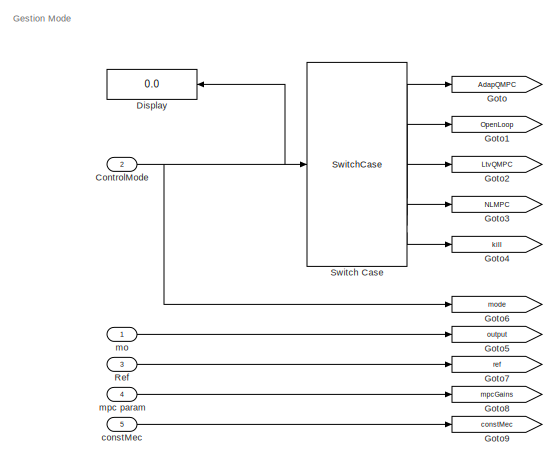
[diagram: Subsystem Controller/Controller List - part 1/3, top center region]
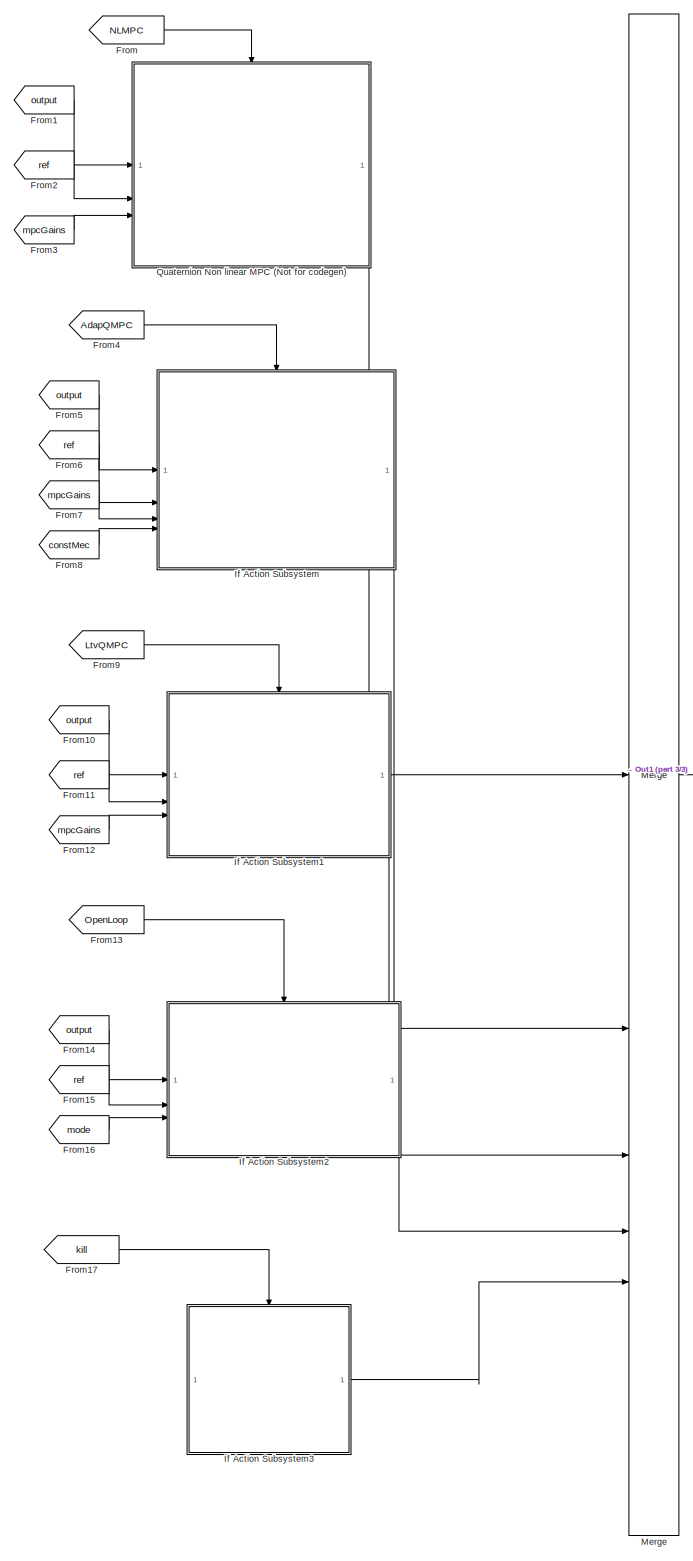
[diagram: Subsystem Controller/Controller List - part 2/3, most of the canvas]
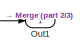
[diagram: Subsystem Controller/Controller List - part 3/3, middle right region]
BLOCK [SubSystem] Subsystem Controller/Controller List
BLOCK [Inport] Subsystem Controller/Controller List/ControlMode
  Port = 2
  SampleTime = MPC.Ts
BLOCK [Display] Subsystem Controller/Controller List/Display
  Decimation = 1
BLOCK [From] Subsystem Controller/Controller List/From
  GotoTag = NLMPC
BLOCK [From] Subsystem Controller/Controller List/From1
  GotoTag = output
BLOCK [From] Subsystem Controller/Controller List/From10
  GotoTag = output
BLOCK [From] Subsystem Controller/Controller List/From11
  GotoTag = ref
BLOCK [From] Subsystem Controller/Controller List/From12
  GotoTag = mpcGains
BLOCK [From] Subsystem Controller/Controller List/From13
  GotoTag = OpenLoop
BLOCK [From] Subsystem Controller/Controller List/From14
  GotoTag = output
BLOCK [From] Subsystem Controller/Controller List/From15
  GotoTag = ref
BLOCK [From] Subsystem Controller/Controller List/From16
  GotoTag = mode
BLOCK [From] Subsystem Controller/Controller List/From17
  GotoTag = kill
BLOCK [From] Subsystem Controller/Controller List/From2
  GotoTag = ref
BLOCK [From] Subsystem Controller/Controller List/From3
  GotoTag = mpcGains
BLOCK [From] Subsystem Controller/Controller List/From4
  GotoTag = AdapQMPC
BLOCK [From] Subsystem Controller/Controller List/From5
  GotoTag = output
BLOCK [From] Subsystem Controller/Controller List/From6
  GotoTag = ref
BLOCK [From] Subsystem Controller/Controller List/From7
  GotoTag = mpcGains
BLOCK [From] Subsystem Controller/Controller List/From8
  GotoTag = constMec
BLOCK [From] Subsystem Controller/Controller List/From9
  GotoTag = LtvQMPC
BLOCK [Goto] Subsystem Controller/Controller List/Goto
  GotoTag = AdapQMPC
BLOCK [Goto] Subsystem Controller/Controller List/Goto1
  GotoTag = OpenLoop
BLOCK [Goto] Subsystem Controller/Controller List/Goto2
  GotoTag = LtvQMPC
BLOCK [Goto] Subsystem Controller/Controller List/Goto3
  GotoTag = NLMPC
BLOCK [Goto] Subsystem Controller/Controller List/Goto4
  GotoTag = kill
BLOCK [Goto] Subsystem Controller/Controller List/Goto5
  GotoTag = output
BLOCK [Goto] Subsystem Controller/Controller List/Goto6
  GotoTag = mode
BLOCK [Goto] Subsystem Controller/Controller List/Goto7
  GotoTag = ref
BLOCK [Goto] Subsystem Controller/Controller List/Goto8
  GotoTag = mpcGains
BLOCK [Goto] Subsystem Controller/Controller List/Goto9
  GotoTag = constMec
BLOCK [SubSystem] Subsystem Controller/Controller List/If Action Subsystem
  TreatAsAtomicUnit = on
BLOCK [ActionPort] Subsystem Controller/Controller List/If Action Subsystem/Action Port
  ActionPortLabel = case [ 10 11 19 31 ]:
  InitializeStates = reset
  PropagateVarSize = During execution
BLOCK [Reference] Subsystem Controller/Controller List/If Action Subsystem/Adaptive MPC Controller  REF=mpclib/Adaptive MPC Controller  (lib defined in mdl_ae329e0e0455)
  SCDEnableBlockLinearizationSpecification = on
  SourceBlock = mpclib/Adaptive MPC Controller
  SourceType = Adaptive MPC
BLOCK [BusCreator] Subsystem Controller/Controller List/If Action Subsystem/Bus Creator
  DisplayOption = bar
  InheritFromInputs = on
  Inputs = 8
BLOCK [BusCreator] Subsystem Controller/Controller List/If Action Subsystem/Bus Creator1
  DisplayOption = bar
  InheritFromInputs = on
  Inputs = 3
BLOCK [BusSelector] Subsystem Controller/Controller List/If Action Subsystem/Bus Selector
  OutputSignals = X
BLOCK [BusSelector] Subsystem Controller/Controller List/If Action Subsystem/Bus Selector1
  OutputSignals = mvmin,mvmax,ywt,mvwt,dmwwt,p,m
BLOCK [SubSystem] Subsystem Controller/Controller List/If Action Subsystem/Bus2Mux
BLOCK [BusSelector] Subsystem Controller/Controller List/If Action Subsystem/Bus2Mux/Bus Selector
  OutputSignals = WorldPosition,qS2W,Body Velocity,Angular Rate
BLOCK [Inport] Subsystem Controller/Controller List/If Action Subsystem/Bus2Mux/Mo
BLOCK [Mux] Subsystem Controller/Controller List/If Action Subsystem/Bus2Mux/Mux
  DisplayOption = bar
BLOCK [Outport] Subsystem Controller/Controller List/If Action Subsystem/Bus2Mux/n1
BLOCK [Constant] Subsystem Controller/Controller List/If Action Subsystem/Constant
  Value = zeros(1,6)
BLOCK [Constant] Subsystem Controller/Controller List/If Action Subsystem/Constant1
  Value = zeros(1,2)
BLOCK [DataTypeConversion] Subsystem Controller/Controller List/If Action Subsystem/Data Type Conversion
  OutDataTypeStr = int8
  RndMeth = Floor
  SaturateOnIntegerOverflow = off
BLOCK [Delay] Subsystem Controller/Controller List/If Action Subsystem/Delay
  DelayLength = 1
  InitialCondition = zeros(MPC.nu,1)
  InputPortMap = u0
  SampleTime = MPC.Ts
BLOCK [MATLABSystem] Subsystem Controller/Controller List/If Action Subsystem/MATLAB System
  MPC = MPC
  MaskDisplay = disp('TrimPlant');\nport_label('input',1,'u');\nport_label('input',2,'y');\nport_label('input',3,'ref');\nport_label('input',4,'constMec');\nport_label('output',1,'A');\nport_label('output',2,'B');\nport_label('output',3,'C');\nport_label('output',4,'D');\nport_label('output',5,'U');\nport_label('output',6,'Y');\nport_label('output',7,'X');\nport_label('output',8,'DX');\nport_label('output',9,'ref');\nport_labe...<+19ch>
  MaskType = TrimPlant
  SimulateUsing = Code generation
  System = TrimPlant
  useDynamicsConst = on
BLOCK [Inport] Subsystem Controller/Controller List/If Action Subsystem/Mo
BLOCK [Mux] Subsystem Controller/Controller List/If Action Subsystem/Mux
  DisplayOption = bar
  Inputs = 3
BLOCK [Outport] Subsystem Controller/Controller List/If Action Subsystem/Out1
BLOCK [DiscretePulseGenerator] Subsystem Controller/Controller List/If Action Subsystem/Pulse Generator
  SampleTime = MPC.Ts
BLOCK [Inport] Subsystem Controller/Controller List/If Action Subsystem/Ref
  Port = 2
BLOCK [SubSystem] Subsystem Controller/Controller List/If Action Subsystem/Sent mesurement residuals
BLOCK [Reference] Subsystem Controller/Controller List/If Action Subsystem/Sent mesurement residuals/Blank Message  REF=ros2lib/Blank Message  (lib defined in slx_3c1549211f48)
  SourceBlock = ros2lib/Blank Message
  SourceType = ROS2 Blank Message
BLOCK [BusAssignment] Subsystem Controller/Controller List/If Action Subsystem/Sent mesurement residuals/Bus Assignment
  AssignedSignals = pose.pose.position.x,pose.pose.position.y,pose.pose.position.z,pose.pose.orientation.w,pose.pose.orientation.x,pose.pose.orientation.y,pose.pose.orientation.z,twist.twist.linear.x,twist.twist.linear.y,twist.twist.linear.z,twist.twist.angular.x,twist.twist.angular.y,twist.twist.angular.z
BLOCK [Demux] Subsystem Controller/Controller List/If Action Subsystem/Sent mesurement residuals/Demux
  Outputs = 13
BLOCK [Reference] Subsystem Controller/Controller List/If Action Subsystem/Sent mesurement residuals/Header Assignment  REF=ros2lib/Header Assignment  (lib defined in slx_3c1549211f48)
  SourceBlock = ros2lib/Header Assignment
  SourceType = ROS2 Header
BLOCK [Inport] Subsystem Controller/Controller List/If Action Subsystem/Sent mesurement residuals/In1
BLOCK [Reference] Subsystem Controller/Controller List/If Action Subsystem/Sent mesurement residuals/Publish  REF=ros2lib/Publish  (lib defined in slx_3c1549211f48)
  SourceBlock = ros2lib/Publish
  SourceType = ROS2 Publish
BLOCK [Math] Subsystem Controller/Controller List/If Action Subsystem/Transpose
  Operator = transpose
BLOCK [Inport] Subsystem Controller/Controller List/If Action Subsystem/constMec
  Port = 4
BLOCK [Inport] Subsystem Controller/Controller List/If Action Subsystem/mpcGains
  Port = 3
BLOCK [SubSystem] Subsystem Controller/Controller List/If Action Subsystem1
  TreatAsAtomicUnit = on
BLOCK [ActionPort] Subsystem Controller/Controller List/If Action Subsystem1/Action Port
  ActionPortLabel = case [ 30 ]:
  InitializeStates = reset
  PropagateVarSize = During execution
BLOCK [Reference] Subsystem Controller/Controller List/If Action Subsystem1/Adaptive MPC Controller  REF=mpclib/Adaptive MPC Controller  (lib defined in mdl_ae329e0e0455)
  SCDEnableBlockLinearizationSpecification = on
  SourceBlock = mpclib/Adaptive MPC Controller
  SourceType = Adaptive MPC
BLOCK [BusCreator] Subsystem Controller/Controller List/If Action Subsystem1/Bus Creator
  DisplayOption = bar
  InheritFromInputs = on
  Inputs = 8
BLOCK [BusCreator] Subsystem Controller/Controller List/If Action Subsystem1/Bus Creator1
  DisplayOption = bar
  InheritFromInputs = on
  Inputs = 5
BLOCK [BusSelector] Subsystem Controller/Controller List/If Action Subsystem1/Bus Selector
  OutputSignals = mvmin,mvmax,ywt,mvwt,dmwwt
BLOCK [BusSelector] Subsystem Controller/Controller List/If Action Subsystem1/Bus Selector1
  OutputAsBus = on
  OutputSignals = mv,MpcStatus,alive
BLOCK [BusSelector] Subsystem Controller/Controller List/If Action Subsystem1/Bus Selector2
  OutputSignals = mv:seq
BLOCK [BusSelector] Subsystem Controller/Controller List/If Action Subsystem1/Bus Selector3
  OutputSignals = y:seq
BLOCK [SubSystem] Subsystem Controller/Controller List/If Action Subsystem1/Bus2Mux
BLOCK [BusSelector] Subsystem Controller/Controller List/If Action Subsystem1/Bus2Mux/Bus Selector
  OutputSignals = WorldPosition,qS2W,Body Velocity,Angular Rate
BLOCK [Inport] Subsystem Controller/Controller List/If Action Subsystem1/Bus2Mux/Mo
BLOCK [Mux] Subsystem Controller/Controller List/If Action Subsystem1/Bus2Mux/Mux
  DisplayOption = bar
BLOCK [Outport] Subsystem Controller/Controller List/If Action Subsystem1/Bus2Mux/Out1
BLOCK [Constant] Subsystem Controller/Controller List/If Action Subsystem1/Constant
  Value = MPC.Ts
BLOCK [Constant] Subsystem Controller/Controller List/If Action Subsystem1/Constant1
  Value = MPC.dts
BLOCK [Constant] Subsystem Controller/Controller List/If Action Subsystem1/Constant2
  Value = zeros(1,8)
BLOCK [DataTypeConversion] Subsystem Controller/Controller List/If Action Subsystem1/Data Type Conversion
  OutDataTypeStr = int8
  RndMeth = Floor
  SaturateOnIntegerOverflow = off
BLOCK [Delay] Subsystem Controller/Controller List/If Action Subsystem1/Delay
  DelayLength = 1
  InitialCondition = repmat(MPC.Xi.',11,1)
  InputPortMap = u0
  SampleTime = MPC.Ts
BLOCK [Delay] Subsystem Controller/Controller List/If Action Subsystem1/Delay1
  DelayLength = 1
  InitialCondition = zeros(11,8)
  InputPortMap = u0
  SampleTime = MPC.Ts
BLOCK [SubSystem] Subsystem Controller/Controller List/If Action Subsystem1/MATLAB Function
  ErrorFcn = Stateflow.Translate.translate
  PermitHierarchicalResolution = ExplicitOnly
  SFBlockType = MATLAB Function
  TreatAsAtomicUnit = on
BLOCK [Demux] Subsystem Controller/Controller List/If Action Subsystem1/MATLAB Function/ Demux 
  Outputs = 1
BLOCK [S-Function] Subsystem Controller/Controller List/If Action Subsystem1/MATLAB Function/ SFunction 
  EnableBusSupport = on
  FunctionName = sf_sfun
  PortCounts = [5 9]
  SFcnIsStateOwnerBlock = off
  SFunctionDeploymentMode = off
  Tag = Stateflow S-Function 6
BLOCK [Terminator] Subsystem Controller/Controller List/If Action Subsystem1/MATLAB Function/ Terminator 
BLOCK [Outport] Subsystem Controller/Controller List/If Action Subsystem1/MATLAB Function/A
BLOCK [Outport] Subsystem Controller/Controller List/If Action Subsystem1/MATLAB Function/B
  Port = 2
BLOCK [Outport] Subsystem Controller/Controller List/If Action Subsystem1/MATLAB Function/C
  Port = 3
BLOCK [Outport] Subsystem Controller/Controller List/If Action Subsystem1/MATLAB Function/D
  Port = 4
BLOCK [Outport] Subsystem Controller/Controller List/If Action Subsystem1/MATLAB Function/DX
  Port = 8
BLOCK [Inport] Subsystem Controller/Controller List/If Action Subsystem1/MATLAB Function/M
  Port = 4
BLOCK [Inport] Subsystem Controller/Controller List/If Action Subsystem1/MATLAB Function/Ts
  Port = 3
BLOCK [Outport] Subsystem Controller/Controller List/If Action Subsystem1/MATLAB Function/U
  Port = 5
BLOCK [Outport] Subsystem Controller/Controller List/If Action Subsystem1/MATLAB Function/X
  Port = 7
BLOCK [Outport] Subsystem Controller/Controller List/If Action Subsystem1/MATLAB Function/Y
  Port = 6
BLOCK [Inport] Subsystem Controller/Controller List/If Action Subsystem1/MATLAB Function/u
BLOCK [Inport] Subsystem Controller/Controller List/If Action Subsystem1/MATLAB Function/x
  Port = 5
BLOCK [Inport] Subsystem Controller/Controller List/If Action Subsystem1/MATLAB Function/ysec
  Port = 2
BLOCK [Inport] Subsystem Controller/Controller List/If Action Subsystem1/Mo
BLOCK [Mux] Subsystem Controller/Controller List/If Action Subsystem1/Mux
  DisplayOption = bar
  Inputs = 2
BLOCK [Outport] Subsystem Controller/Controller List/If Action Subsystem1/Out1
BLOCK [DiscretePulseGenerator] Subsystem Controller/Controller List/If Action Subsystem1/Pulse Generator
  SampleTime = MPC.Ts
BLOCK [Inport] Subsystem Controller/Controller List/If Action Subsystem1/Ref
  Port = 2
BLOCK [Inport] Subsystem Controller/Controller List/If Action Subsystem1/mpcGains
  Port = 3
BLOCK [SubSystem] Subsystem Controller/Controller List/If Action Subsystem2
  TreatAsAtomicUnit = on
BLOCK [ActionPort] Subsystem Controller/Controller List/If Action Subsystem2/Action Port
  ActionPortLabel = case [ 20 21 ]:
BLOCK [BusCreator] Subsystem Controller/Controller List/If Action Subsystem2/Bus Creator
  DisplayOption = bar
  InheritFromInputs = on
  Inputs = 3
BLOCK [Constant] Subsystem Controller/Controller List/If Action Subsystem2/Constant
  Value = int8(0)
BLOCK [Constant] Subsystem Controller/Controller List/If Action Subsystem2/Constant1
  Value = 0
BLOCK [Reference] Subsystem Controller/Controller List/If Action Subsystem2/Discrete Derivative  REF=simulink/Discrete/Discrete Derivative
  SourceBlock = simulink/Discrete/Discrete Derivative
  SourceType = Discrete Derivative
BLOCK [MATLABSystem] Subsystem Controller/Controller List/If Action Subsystem2/MATLAB System
  AF = physics.AF
  AddedMass = physics.AddedMass
  CDL = physics.CDL
  CDQ = physics.CDQ
  I = physics.I
  MaskDisplay = disp('OpenLoopController');\nport_label('input',1,'ref');\nport_label('input',2,'ref_dot');\nport_label('input',3,'mo');\nport_label('input',4,'mode');\nport_label('output',1,'mv');
  MaskType = OpenLoopController
  RB = physics.RB
  RG = physics.RG
  SimulateUsing = Code generation
  System = OpenLoopController
  binv = binv
  g = physics.g
  height = physics.height
  k = 40
  mass = physics.mass
  rho = physics.rho
  volume = physics.volume
BLOCK [Outport] Subsystem Controller/Controller List/If Action Subsystem2/Out1
BLOCK [Reshape] Subsystem Controller/Controller List/If Action Subsystem2/Reshape
BLOCK [Selector] Subsystem Controller/Controller List/If Action Subsystem2/Selector
  IndexOptions = Index vector (dialog),Index vector (dialog)
  Indices = 1,[8:13]
  InputPortWidth = 3
  NumberOfDimensions = 2
  OutputSizes = 1,1
BLOCK [Inport] Subsystem Controller/Controller List/If Action Subsystem2/mo
BLOCK [Inport] Subsystem Controller/Controller List/If Action Subsystem2/mode
  Port = 3
BLOCK [Inport] Subsystem Controller/Controller List/If Action Subsystem2/ref
  Port = 2
BLOCK [SubSystem] Subsystem Controller/Controller List/If Action Subsystem3
  TreatAsAtomicUnit = on
BLOCK [ActionPort] Subsystem Controller/Controller List/If Action Subsystem3/Action Port
  ActionPortLabel = default:
BLOCK [BusCreator] Subsystem Controller/Controller List/If Action Subsystem3/Bus Creator
  DisplayOption = bar
  InheritFromInputs = on
  Inputs = 3
BLOCK [Constant] Subsystem Controller/Controller List/If Action Subsystem3/Constant
  Value = zeros(1,MPC.nu)
BLOCK [Constant] Subsystem Controller/Controller List/If Action Subsystem3/Constant1
  Value = int8(0)
BLOCK [Constant] Subsystem Controller/Controller List/If Action Subsystem3/Constant2
  Value = 0
BLOCK [Outport] Subsystem Controller/Controller List/If Action Subsystem3/Out1
BLOCK [Merge] Subsystem Controller/Controller List/Merge
  Inputs = 5
BLOCK [Outport] Subsystem Controller/Controller List/Out1
BLOCK [SubSystem] Subsystem Controller/Controller List/Quaternion Non linear MPC (Not for codegen)
  TreatAsAtomicUnit = on
BLOCK [ActionPort] Subsystem Controller/Controller List/Quaternion Non linear MPC (Not for codegen)/Action Port
  ActionPortLabel = case [ 40 ]:
  InitializeStates = reset
BLOCK [BusCreator] Subsystem Controller/Controller List/Quaternion Non linear MPC (Not for codegen)/Bus Creator
  DisplayOption = bar
  InheritFromInputs = on
  Inputs = 3
BLOCK [BusSelector] Subsystem Controller/Controller List/Quaternion Non linear MPC (Not for codegen)/Bus Selector
  OutputSignals = mvmin,mvmax,ywt,mvwt,dmwwt
BLOCK [SubSystem] Subsystem Controller/Controller List/Quaternion Non linear MPC (Not for codegen)/Bus2Mux1
BLOCK [BusSelector] Subsystem Controller/Controller List/Quaternion Non linear MPC (Not for codegen)/Bus2Mux1/Bus Selector
  OutputSignals = WorldPosition,qS2W,Body Velocity,Angular Rate
BLOCK [Inport] Subsystem Controller/Controller List/Quaternion Non linear MPC (Not for codegen)/Bus2Mux1/Mo
BLOCK [Mux] Subsystem Controller/Controller List/Quaternion Non linear MPC (Not for codegen)/Bus2Mux1/Mux
  DisplayOption = bar
BLOCK [Outport] Subsystem Controller/Controller List/Quaternion Non linear MPC (Not for codegen)/Bus2Mux1/Out1
BLOCK [DataTypeConversion] Subsystem Controller/Controller List/Quaternion Non linear MPC (Not for codegen)/Data Type Conversion
  OutDataTypeStr = int8
  RndMeth = Floor
  SaturateOnIntegerOverflow = off
BLOCK [Delay] Subsystem Controller/Controller List/Quaternion Non linear MPC (Not for codegen)/Delay
  DelayLength = 1
  InitialCondition = zeros(MPC.nu,1)
  InputPortMap = u0
BLOCK [Inport] Subsystem Controller/Controller List/Quaternion Non linear MPC (Not for codegen)/Mo
BLOCK [Reference] Subsystem Controller/Controller List/Quaternion Non linear MPC (Not for codegen)/Nonlinear MPC Controller  REF=mpclib/Nonlinear MPC Controller  (lib defined in mdl_ae329e0e0455)
  SourceBlock = mpclib/Nonlinear MPC Controller
  SourceType = NonlinearMPC
BLOCK [Outport] Subsystem Controller/Controller List/Quaternion Non linear MPC (Not for codegen)/Out
BLOCK [DiscretePulseGenerator] Subsystem Controller/Controller List/Quaternion Non linear MPC (Not for codegen)/Pulse Generator
  Period = 20
  PulseWidth = 10
  SampleTime = MPC.Ts
BLOCK [Inport] Subsystem Controller/Controller List/Quaternion Non linear MPC (Not for codegen)/Ref
  Port = 2
BLOCK [Inport] Subsystem Controller/Controller List/Quaternion Non linear MPC (Not for codegen)/mpc Gains
  Port = 3
BLOCK [Inport] Subsystem Controller/Controller List/Ref
  Port = 3
BLOCK [SwitchCase] Subsystem Controller/Controller List/Switch Case
  CaseConditions = { mode.control.adapQMpcMode,  mode.control.openLoopMode,    mode.control.LtvQMpcMode, mode.control.NlmpcMode}
BLOCK [Inport] Subsystem Controller/Controller List/constMec
  Port = 5
BLOCK [Inport] Subsystem Controller/Controller List/mo
BLOCK [Inport] Subsystem Controller/Controller List/mpc param
  Port = 4
BLOCK [Delay] Subsystem Controller/Delay
  DelayLength = 1
  InitialCondition = zeros(1,8)
  InputPortMap = u0
  SampleTime = MPC.Ts
BLOCK [If] Subsystem Controller/If
  IfExpression = u1 >= 0
  ShowElse = off
BLOCK [SubSystem] Subsystem Controller/If Action Subsystem
  TreatAsAtomicUnit = on
BLOCK [ActionPort] Subsystem Controller/If Action Subsystem/Action Port
  ActionPortLabel = if(u1 >= 0)
  InitializeStates = reset
BLOCK [BusCreator] Subsystem Controller/If Action Subsystem/Bus Creator
  DisplayOption = bar
  InheritFromInputs = on
  Inputs = 9
BLOCK [BusSelector] Subsystem Controller/If Action Subsystem/Bus Selector
  OutputSignals = qS2W
BLOCK [BusSelector] Subsystem Controller/If Action Subsystem/Bus Selector1
  OutputSignals = data
BLOCK [Constant] Subsystem Controller/If Action Subsystem/Constant
  Commented = on
  Value = false
BLOCK [Inport] Subsystem Controller/If Action Subsystem/Current
  Port = 3
BLOCK [MATLABSystem] Subsystem Controller/If Action Subsystem/MATLAB System
  MaskDisplay = disp('mpcManager');\nport_label('input',1,'newRosGains');\nport_label('input',2,'rosGains');\nport_label('input',3,'mode');\nport_label('input',4,'newReadCurrent');\nport_label('input',5,'readCurrent');\nport_label('input',6,'estimatedCurrent');\nport_label('input',7,'mo');\nport_label('input',8,'mpcParams');\nport_label('output',1,'mvmin');\nport_label('output',2,'mvmax');\nport_label('output',3,'ywt');\npor...<+178ch>
  MaskType = mpcManager
  SimulateUsing = Code generation
  System = mpcManager
  mode = mode
  mpcConst = MPC
BLOCK [Outport] Subsystem Controller/If Action Subsystem/MPC param
BLOCK [Reference] Subsystem Controller/If Action Subsystem/Subscribe  REF=ros2lib/Subscribe  (lib defined in slx_3c1549211f48)
  SourceBlock = ros2lib/Subscribe
  SourceType = ROS2 Subscribe
BLOCK [Reference] Subsystem Controller/If Action Subsystem/Subscribe1  REF=ros2lib/Subscribe  (lib defined in slx_3c1549211f48)
  SourceBlock = ros2lib/Subscribe
  SourceType = ROS2 Subscribe
BLOCK [SubSystem] Subsystem Controller/If Action Subsystem/Subsystem
  Commented = on
BLOCK [BusCreator] Subsystem Controller/If Action Subsystem/Subsystem/Bus Creator
  DisplayOption = bar
  InheritFromInputs = on
  Inputs = 8
BLOCK [Constant] Subsystem Controller/If Action Subsystem/Subsystem/Constant
  Value = zeros(1, 128)
BLOCK [Constant] Subsystem Controller/If Action Subsystem/Subsystem/Constant1
  Value = zeros(1, 128)
BLOCK [Constant] Subsystem Controller/If Action Subsystem/Subsystem/Constant2
  Value = zeros(1, 128)
BLOCK [Constant] Subsystem Controller/If Action Subsystem/Subsystem/Constant3
  Value = MPC.tmax
BLOCK [Constant] Subsystem Controller/If Action Subsystem/Subsystem/Constant4
  Value = MPC.tmin
BLOCK [Outport] Subsystem Controller/If Action Subsystem/Subsystem/Out1
BLOCK [SubSystem] Subsystem Controller/If Action Subsystem/Subsystem/Subsystem
BLOCK [BusCreator] Subsystem Controller/If Action Subsystem/Subsystem/Subsystem/Bus Creator
  DisplayOption = bar
  InheritFromInputs = on
  Inputs = 2
BLOCK [Constant] Subsystem Controller/If Action Subsystem/Subsystem/Subsystem/Constant
  Value = uint32(0)
BLOCK [Constant] Subsystem Controller/If Action Subsystem/Subsystem/Subsystem/Constant1
  Value = uint32(0)
BLOCK [Outport] Subsystem Controller/If Action Subsystem/Subsystem/Subsystem/Out1
BLOCK [SubSystem] Subsystem Controller/If Action Subsystem/Subsystem/Subsystem1
BLOCK [BusCreator] Subsystem Controller/If Action Subsystem/Subsystem/Subsystem1/Bus Creator
  DisplayOption = bar
  InheritFromInputs = on
  Inputs = 2
BLOCK [Constant] Subsystem Controller/If Action Subsystem/Subsystem/Subsystem1/Constant
  Value = uint32(0)
BLOCK [Constant] Subsystem Controller/If Action Subsystem/Subsystem/Subsystem1/Constant1
  Value = uint32(0)
BLOCK [Outport] Subsystem Controller/If Action Subsystem/Subsystem/Subsystem1/Out1
BLOCK [SubSystem] Subsystem Controller/If Action Subsystem/Subsystem/Subsystem2
BLOCK [BusCreator] Subsystem Controller/If Action Subsystem/Subsystem/Subsystem2/Bus Creator
  DisplayOption = bar
  InheritFromInputs = on
  Inputs = 2
BLOCK [Constant] Subsystem Controller/If Action Subsystem/Subsystem/Subsystem2/Constant
  Value = uint32(0)
BLOCK [Constant] Subsystem Controller/If Action Subsystem/Subsystem/Subsystem2/Constant1
  Value = uint32(0)
BLOCK [Outport] Subsystem Controller/If Action Subsystem/Subsystem/Subsystem2/Out1
BLOCK [Math] Subsystem Controller/If Action Subsystem/Transpose
  Operator = transpose
BLOCK [Inport] Subsystem Controller/If Action Subsystem/mo
  Port = 2
BLOCK [Inport] Subsystem Controller/If Action Subsystem/mode
BLOCK [Inport] Subsystem Controller/If Action Subsystem/mpcParams
  Port = 4
BLOCK [Inport] Subsystem Controller/Output
BLOCK [SubSystem] Subsystem Controller/Post Traitement
BLOCK [BusCreator] Subsystem Controller/Post Traitement/Bus Creator
  DisplayOption = bar
  InheritFromInputs = on
  Inputs = 6
BLOCK [BusSelector] Subsystem Controller/Post Traitement/Bus Selector
  OutputSignals = mv
BLOCK [BusSelector] Subsystem Controller/Post Traitement/Bus Selector1
  OutputSignals = mvmax,mvmin
BLOCK [BusSelector] Subsystem Controller/Post Traitement/Bus Selector2
  OutputSignals = MpcStatus
BLOCK [BusSelector] Subsystem Controller/Post Traitement/Bus Selector3
  OutputSignals = alive
BLOCK [DataTypeConversion] Subsystem Controller/Post Traitement/Data Type Conversion
  OutDataTypeStr = boolean
  RndMeth = Floor
  SaturateOnIntegerOverflow = off
BLOCK [Delay] Subsystem Controller/Post Traitement/Delay
  DelayLength = 1
  InputPortMap = u0
  SampleTime = MPC.Ts
BLOCK [Inport] Subsystem Controller/Post Traitement/In1
BLOCK [Inport] Subsystem Controller/Post Traitement/MpcParams
  Port = 2
BLOCK [Lookup_n-D] Subsystem Controller/Post Traitement/N to A
  BeginIndexSearchUsingPreviousIndexResult = on
  BreakpointsForDimension1 = N
  BreakpointsForDimension3 = [5, 7]
  DiagnosticForOutOfRangeInput = Warning
  InputPortMap = u0
  InternalRulePriority = Speed
  InterpMethod = Nearest
  NumberOfTableDimensions = 1
  OutDataTypeStr = uint16
  RemoveProtectionInput = on
  RndMeth = Simplest
  Table = A
BLOCK [Reference] Subsystem Controller/Post Traitement/PSU Safe  REF=simulink/Discontinuities/Saturation
Dynamic
  SourceBlock = simulink/Discontinuities/Saturation\nDynamic
  SourceType = Saturation Dynamic
BLOCK [Sum] Subsystem Controller/Post Traitement/Sum
  Inputs = |+-
BLOCK [Math] Subsystem Controller/Post Traitement/Transpose
  Operator = transpose
BLOCK [Lookup_n-D] Subsystem Controller/Post Traitement/n-D Lookup Table1
  BeginIndexSearchUsingPreviousIndexResult = on
  BreakpointsForDimension1 = N
  BreakpointsForDimension3 = [5, 7]
  DiagnosticForOutOfRangeInput = Warning
  InputPortMap = u0
  InternalRulePriority = Speed
  InterpMethod = Nearest
  NumberOfTableDimensions = 1
  OutDataTypeStr = uint16
  RemoveProtectionInput = on
  RndMeth = Simplest
  Table = PWM
BLOCK [Outport] Subsystem Controller/Post Traitement/out
BLOCK [Inport] Subsystem Controller/Ref
  Port = 2
BLOCK [Inport] Subsystem Controller/constMec
  Port = 5
BLOCK [Outport] Subsystem Controller/out
BLOCK [Inport] Subsystem Controller/rosParam
  Port = 4
BLOCK [SubSystem] Subsystem ProcNav
BLOCK [SubSystem] Subsystem ProcNav/AHRS//Detph Mesurments
BLOCK [BusSelector] Subsystem ProcNav/AHRS//Detph Mesurments/Bus Selector
  OutputAsBus = on
  OutputSignals = Quaternion
BLOCK [BusSelector] Subsystem ProcNav/AHRS//Detph Mesurments/Bus Selector1
  OutputAsBus = on
  OutputSignals = Linear Acc
BLOCK [BusSelector] Subsystem ProcNav/AHRS//Detph Mesurments/Bus Selector2
  OutputAsBus = on
  OutputSignals = Angular Rate
BLOCK [Constant] Subsystem ProcNav/AHRS//Detph Mesurments/Constant
  Value = simulation.sensors.imu.acc.bias
BLOCK [DiscreteIntegrator] Subsystem ProcNav/AHRS//Detph Mesurments/Discrete-Time Integrator
  ICPrevOutput = DiscIntNeverNeededParam
  ICPrevScaledInput = DiscIntNeverNeededParam
  InitialConditionSetting = Auto
  IntegratorMethod = Integration: Trapezoidal
  SampleTime = -1
BLOCK [Outport] Subsystem ProcNav/AHRS//Detph Mesurments/IMU
BLOCK [SubSystem] Subsystem ProcNav/AHRS//Detph Mesurments/MATLAB Function
  ErrorFcn = Stateflow.Translate.translate
  PermitHierarchicalResolution = ExplicitOnly
  SFBlockType = MATLAB Function
  TreatAsAtomicUnit = on
BLOCK [Demux] Subsystem ProcNav/AHRS//Detph Mesurments/MATLAB Function/ Demux 
  Outputs = 1
BLOCK [S-Function] Subsystem ProcNav/AHRS//Detph Mesurments/MATLAB Function/ SFunction 
  EnableBusSupport = on
  FunctionName = sf_sfun
  PortCounts = [1 2]
  SFcnIsStateOwnerBlock = off
  SFunctionDeploymentMode = off
  Tag = Stateflow S-Function 1
BLOCK [Terminator] Subsystem ProcNav/AHRS//Detph Mesurments/MATLAB Function/ Terminator 
BLOCK [Inport] Subsystem ProcNav/AHRS//Detph Mesurments/MATLAB Function/u
BLOCK [Outport] Subsystem ProcNav/AHRS//Detph Mesurments/MATLAB Function/y
BLOCK [Mux] Subsystem ProcNav/AHRS//Detph Mesurments/Mux
  DisplayOption = bar
  Inputs = 2
BLOCK [Reference] Subsystem ProcNav/AHRS//Detph Mesurments/Quaternion Conjugate  REF=aerolibutil/Quaternion
Conjugate
  SourceBlock = aerolibutil/Quaternion\nConjugate
  SourceType = Quaternion Conjugate
BLOCK [Reference] Subsystem ProcNav/AHRS//Detph Mesurments/Quaternion Inverse  REF=aerolibutil/Quaternion
Inverse
  SourceBlock = aerolibutil/Quaternion\nInverse
  SourceType = Quaternion Inverse
BLOCK [Reference] Subsystem ProcNav/AHRS//Detph Mesurments/Quaternion Rotation  REF=aerolibutil/Quaternion
Rotation
  SourceBlock = aerolibutil/Quaternion\nRotation
  SourceType = Quaternion Rotation
BLOCK [Reference] Subsystem ProcNav/AHRS//Detph Mesurments/Quaternion Rotation1  REF=aerolibutil/Quaternion
Rotation
  SourceBlock = aerolibutil/Quaternion\nRotation
  SourceType = Quaternion Rotation
BLOCK [Sum] Subsystem ProcNav/AHRS//Detph Mesurments/Sum
  Inputs = -+|
BLOCK [Inport] Subsystem ProcNav/AHRS//Detph Mesurments/y
BLOCK [BusSelector] Subsystem ProcNav/Bus Selector
  OutputSignals = navReset
BLOCK [BusSelector] Subsystem ProcNav/Bus Selector1
  OutputSignals = NewDvlMsg
BLOCK [BusSelector] Subsystem ProcNav/Bus Selector2
  OutputSignals = new Pressure Msg
BLOCK [SubSystem] Subsystem ProcNav/DVL Measurements
  TreatAsAtomicUnit = on
BLOCK [BusCreator] Subsystem ProcNav/DVL Measurements/Bus Creator
  DisplayOption = bar
  InheritFromInputs = on
  Inputs = 3
BLOCK [BusSelector] Subsystem ProcNav/DVL Measurements/Bus Selector
  OutputSignals = dvl_rotation
BLOCK [BusSelector] Subsystem ProcNav/DVL Measurements/Bus Selector1
  OutputSignals = DVL Bot Velocity
BLOCK [BusSelector] Subsystem ProcNav/DVL Measurements/Bus Selector2
  OutputSignals = DVL Water Velocity
BLOCK [Constant] Subsystem ProcNav/DVL Measurements/Constant
  Value = simulation.sensors.dvl.maxSpeedThres
BLOCK [Outport] Subsystem ProcNav/DVL Measurements/DVL Measurements
BLOCK [Inport] Subsystem ProcNav/DVL Measurements/DVL Velocity
BLOCK [SubSystem] Subsystem ProcNav/DVL Measurements/DVL2Ship
BLOCK [Constant] Subsystem ProcNav/DVL Measurements/DVL2Ship/Constant
  Value = 0
BLOCK [Delay] Subsystem ProcNav/DVL Measurements/DVL2Ship/Delay
  DelayLength = 1
  InitialCondition = 1
  InputPortMap = u0
BLOCK [SubSystem] Subsystem ProcNav/DVL Measurements/DVL2Ship/Enabled Subsystem
  TreatAsAtomicUnit = on
BLOCK [EnablePort] Subsystem ProcNav/DVL Measurements/DVL2Ship/Enabled Subsystem/Enable
BLOCK [Outport] Subsystem ProcNav/DVL Measurements/DVL2Ship/Enabled Subsystem/Quat
BLOCK [Reference] Subsystem ProcNav/DVL Measurements/DVL2Ship/Enabled Subsystem/Rotation Angles to Quaternions  REF=sharedtransform/Rotation Angles to Quaternions
  AttributesFormatString = Rotation Order: %<rotationOrder>
  LibrarySourceBlock = aerolibtransform2/Rotation Angles to Quaternions
  SourceBlock = sharedtransform/Rotation Angles to Quaternions
  SourceType = Ang2Quat
BLOCK [Inport] Subsystem ProcNav/DVL Measurements/DVL2Ship/Enabled Subsystem/dvl Rotation
BLOCK [Outport] Subsystem ProcNav/DVL Measurements/DVL2Ship/Quat
BLOCK [Inport] Subsystem ProcNav/DVL Measurements/DVL2Ship/dvl Rotation
BLOCK [EnablePort] Subsystem ProcNav/DVL Measurements/Enable
BLOCK [SubSystem] Subsystem ProcNav/DVL Measurements/MATLAB Function
  ErrorFcn = Stateflow.Translate.translate
  PermitHierarchicalResolution = ExplicitOnly
  SFBlockType = MATLAB Function
  TreatAsAtomicUnit = on
BLOCK [Demux] Subsystem ProcNav/DVL Measurements/MATLAB Function/ Demux 
  Outputs = 1
BLOCK [S-Function] Subsystem ProcNav/DVL Measurements/MATLAB Function/ SFunction 
  EnableBusSupport = on
  FunctionName = sf_sfun
  PortCounts = [3 4]
  SFcnIsStateOwnerBlock = off
  SFunctionDeploymentMode = off
  Tag = Stateflow S-Function 3
BLOCK [Terminator] Subsystem ProcNav/DVL Measurements/MATLAB Function/ Terminator 
BLOCK [Outport] Subsystem ProcNav/DVL Measurements/MATLAB Function/enable
  Port = 3
BLOCK [Outport] Subsystem ProcNav/DVL Measurements/MATLAB Function/error
  Port = 2
BLOCK [Inport] Subsystem ProcNav/DVL Measurements/MATLAB Function/thres
  Port = 3
BLOCK [Outport] Subsystem ProcNav/DVL Measurements/MATLAB Function/v
BLOCK [Inport] Subsystem ProcNav/DVL Measurements/MATLAB Function/vBot
BLOCK [Inport] Subsystem ProcNav/DVL Measurements/MATLAB Function/vWater
  Port = 2
BLOCK [Reference] Subsystem ProcNav/DVL Measurements/Quaternion Rotation  REF=aerolibutil/Quaternion
Rotation
  SourceBlock = aerolibutil/Quaternion\nRotation
  SourceType = Quaternion Rotation
BLOCK [Scope] Subsystem ProcNav/DVL Measurements/Scope
  Floating = off
  NumInputPorts = 1
  ScopeSpecificationString = Simulink.scopes.TimeScopeBlockCfg('CurrentConfiguration', extmgr.ConfigurationSet(extmgr.Configuration('Core','General UI',true),extmgr.Configuration('Core','Source UI',true),extmgr.Configuration('Sources','WiredSimulink',true),extmgr.Configuration('Visuals','Time Domain',true),extmgr.Configuration('Tools','Plot Navigation',true),extmgr.Configuration('Tools','Measurements',true)),'Version','2024a'...<+1ch>
BLOCK [Inport] Subsystem ProcNav/DVL Measurements/mecConst
  Port = 2
BLOCK [SubSystem] Subsystem ProcNav/Depth Measurements
  TreatAsAtomicUnit = on
BLOCK [BusSelector] Subsystem ProcNav/Depth Measurements/Bus Selector
  OutputAsBus = on
  OutputSignals = Pressure Depth
BLOCK [BusSelector] Subsystem ProcNav/Depth Measurements/Bus Selector1
  OutputSignals = depth_pose
BLOCK [Outport] Subsystem ProcNav/Depth Measurements/Depth Measurements
BLOCK [Reference] Subsystem ProcNav/Depth Measurements/Discrete Derivative  REF=simulink/Discrete/Discrete Derivative
  SourceBlock = simulink/Discrete/Discrete Derivative
  SourceType = Discrete Derivative
BLOCK [DiscreteTransferFcn] Subsystem ProcNav/Depth Measurements/Discrete Transfer Fcn
  Denominator = [1  physics.thruster.b0]
  InputPortMap = u0
  Numerator = [physics.thruster.a1 0 ]
BLOCK [EnablePort] Subsystem ProcNav/Depth Measurements/Enable
BLOCK [Mux] Subsystem ProcNav/Depth Measurements/Mux
  DisplayOption = bar
  Inputs = 2
BLOCK [Reference] Subsystem ProcNav/Depth Measurements/Quaternion Rotation  REF=aerolibutil/Quaternion
Rotation
  SourceBlock = aerolibutil/Quaternion\nRotation
  SourceType = Quaternion Rotation
BLOCK [Selector] Subsystem ProcNav/Depth Measurements/Selector
  IndexOptions = Index vector (dialog)
  Indices = [1:4]
  InputPortWidth = 7
  OutputSizes = 1
BLOCK [Selector] Subsystem ProcNav/Depth Measurements/Selector1
  IndexOptions = Index vector (dialog)
  Indices = [3]
  InputPortWidth = 3
  OutputSizes = 1
BLOCK [Sum] Subsystem ProcNav/Depth Measurements/Sum
  Inputs = |+-
BLOCK [Inport] Subsystem ProcNav/Depth Measurements/mecConst
  Port = 2
BLOCK [Inport] Subsystem ProcNav/Depth Measurements/xhat
  Port = 3
BLOCK [Inport] Subsystem ProcNav/Depth Measurements/y
BLOCK [SubSystem] Subsystem ProcNav/Enabled Subsystem
  TreatAsAtomicUnit = on
BLOCK [Inport] Subsystem ProcNav/Enabled Subsystem/AHRS Mesurments
  Port = 2
BLOCK [BusSelector] Subsystem ProcNav/Enabled Subsystem/Bus Selector
  OutputSignals = dvl_lost_override
BLOCK [BusSelector] Subsystem ProcNav/Enabled Subsystem/Bus Selector1
  OutputSignals = enable,Body Velocity
BLOCK [Constant] Subsystem ProcNav/Enabled Subsystem/Constant
BLOCK [Inport] Subsystem ProcNav/Enabled Subsystem/DVL Measurements 
  Port = 3
BLOCK [Inport] Subsystem ProcNav/Enabled Subsystem/Depth Measurements
  Port = 4
BLOCK [EnablePort] Subsystem ProcNav/Enabled Subsystem/Enable
  StatesWhenEnabling = reset
BLOCK [Reference] Subsystem ProcNav/Enabled Subsystem/Extended Kalman Filter  REF=sharedTrackingLibrary/Extended Kalman Filter
  LibrarySourceBlock = cstblocks/State Estimation/Extended Kalman Filter
  SourceBlock = sharedTrackingLibrary/Extended Kalman Filter
  SourceType = Extended Kalman Filter
BLOCK [Selector] Subsystem ProcNav/Enabled Subsystem/Selector
  IndexOptions = Index vector (dialog)
  Indices = [1]
  InputPortWidth = 2
  OutputSizes = 1
BLOCK [Switch] Subsystem ProcNav/Enabled Subsystem/Switch
  Criteria = u2 > Threshold
  InputSameDT = off
  SaturateOnIntegerOverflow = off
BLOCK [ZeroOrderHold] Subsystem ProcNav/Enabled Subsystem/Zero-Order Hold
  SampleTime = simulink.procNav.dvl.sampletime
BLOCK [ZeroOrderHold] Subsystem ProcNav/Enabled Subsystem/Zero-Order Hold1
  SampleTime = simulation.sensors.depth.sampletime
BLOCK [Inport] Subsystem ProcNav/Enabled Subsystem/mecConst
  Port = 5
BLOCK [Inport] Subsystem ProcNav/Enabled Subsystem/stateFuncArguments
BLOCK [Outport] Subsystem ProcNav/Enabled Subsystem/xhat
BLOCK [Inport] Subsystem ProcNav/Output Variables
  Port = 3
BLOCK [SubSystem] Subsystem ProcNav/Reset Logic
BLOCK [Inport] Subsystem ProcNav/Reset Logic/2
  Port = 2
BLOCK [Logic] Subsystem ProcNav/Reset Logic/AND
  AllPortsSameDT = off
  IconShape = distinctive
  OutDataTypeStr = boolean
BLOCK [Inport] Subsystem ProcNav/Reset Logic/In1
BLOCK [Logic] Subsystem ProcNav/Reset Logic/NOT
  AllPortsSameDT = off
  IconShape = distinctive
  Operator = NOT
  OutDataTypeStr = boolean
BLOCK [Outport] Subsystem ProcNav/Reset Logic/Out1
BLOCK [Inport] Subsystem ProcNav/SensorOn
BLOCK [SubSystem] Subsystem ProcNav/State function arguments
BLOCK [BusSelector] Subsystem ProcNav/State function arguments/Bus Selector
  OutputAsBus = on
  OutputSignals = mass,volume,sub_height,I,rg,rb,cdl,cdq,added_mass,rho,g
BLOCK [BusSelector] Subsystem ProcNav/State function arguments/Bus Selector1
  OutputAsBus = on
  OutputSignals = thrusters
BLOCK [BusToVector] Subsystem ProcNav/State function arguments/Bus to Vector
BLOCK [Delay] Subsystem ProcNav/State function arguments/Delay
  DelayLength = 1
  InitialCondition = [0,0,0,0,0,0,0,0]
  InputPortMap = u0
BLOCK [Display] Subsystem ProcNav/State function arguments/Display
  Decimation = 1
BLOCK [Mux] Subsystem ProcNav/State function arguments/Mux
  DisplayOption = bar
BLOCK [Probe] Subsystem ProcNav/State function arguments/Probe
  ProbeSignalDimensions = on
BLOCK [Reshape] Subsystem ProcNav/State function arguments/Reshape
BLOCK [Math] Subsystem ProcNav/State function arguments/Transpose
  Operator = transpose
BLOCK [ZeroOrderHold] Subsystem ProcNav/State function arguments/Zero-Order Hold
  SampleTime = simulink.procNav.sampletime
BLOCK [Inport] Subsystem ProcNav/State function arguments/mecConst
  Port = 2
BLOCK [Outport] Subsystem ProcNav/State function arguments/stateFuncArguments
BLOCK [Inport] Subsystem ProcNav/State function arguments/thrust
BLOCK [Inport] Subsystem ProcNav/Trust
  Port = 5
BLOCK [Inport] Subsystem ProcNav/mecConst
  Port = 4
BLOCK [SubSystem] Subsystem ProcNav/mux2Bus
BLOCK [BusCreator] Subsystem ProcNav/mux2Bus/Bus Creator
  DisplayOption = bar
  InheritFromInputs = on
  Inputs = 5
BLOCK [Reference] Subsystem ProcNav/mux2Bus/Quaternion Inverse  REF=aerolibutil/Quaternion
Inverse
  SourceBlock = aerolibutil/Quaternion\nInverse
  SourceType = Quaternion Inverse
BLOCK [Scope] Subsystem ProcNav/mux2Bus/Scope
  Floating = off
  NumInputPorts = 1
  ScopeSpecificationString = Simulink.scopes.TimeScopeBlockCfg('CurrentConfiguration', extmgr.ConfigurationSet(extmgr.Configuration('Core','General UI',true),extmgr.Configuration('Core','Source UI',true),extmgr.Configuration('Sources','WiredSimulink',true),extmgr.Configuration('Visuals','Time Domain',true,'SerializedDisplays',{struct('MinYLimReal','-1.00000','MaxYLimReal','1.00000','YLabelReal','','MinYLimMag','0.00000','MaxY...<+1460ch>
BLOCK [Scope] Subsystem ProcNav/mux2Bus/Scope1
  Floating = off
  NumInputPorts = 1
  ScopeSpecificationString = Simulink.scopes.TimeScopeBlockCfg('CurrentConfiguration', extmgr.ConfigurationSet(extmgr.Configuration('Core','General UI',true),extmgr.Configuration('Core','Source UI',true),extmgr.Configuration('Sources','WiredSimulink',true,'DataLoggingVariableName','ScopeData1'),extmgr.Configuration('Visuals','Time Domain',true),extmgr.Configuration('Tools','Plot Navigation',true),extmgr.Configuration('Tools',...<+40ch>
BLOCK [Scope] Subsystem ProcNav/mux2Bus/Scope2
  Floating = off
  NumInputPorts = 1
  ScopeSpecificationString = Simulink.scopes.TimeScopeBlockCfg('CurrentConfiguration', extmgr.ConfigurationSet(extmgr.Configuration('Core','General UI',true),extmgr.Configuration('Core','Source UI',true),extmgr.Configuration('Sources','WiredSimulink',true,'DataLoggingVariableName','ScopeData2'),extmgr.Configuration('Visuals','Time Domain',true),extmgr.Configuration('Tools','Plot Navigation',true),extmgr.Configuration('Tools',...<+40ch>
BLOCK [Scope] Subsystem ProcNav/mux2Bus/Scope3
  Floating = off
  NumInputPorts = 1
  ScopeSpecificationString = Simulink.scopes.TimeScopeBlockCfg('CurrentConfiguration', extmgr.ConfigurationSet(extmgr.Configuration('Core','General UI',true),extmgr.Configuration('Core','Source UI',true),extmgr.Configuration('Sources','WiredSimulink',true,'DataLoggingVariableName','ScopeData3'),extmgr.Configuration('Visuals','Time Domain',true),extmgr.Configuration('Tools','Plot Navigation',true),extmgr.Configuration('Tools',...<+40ch>
BLOCK [Selector] Subsystem ProcNav/mux2Bus/Selector
  IndexOptions = Index vector (dialog)
  Indices = [1:3]
  InputPortWidth = 13
  OutputSizes = 1
BLOCK [Selector] Subsystem ProcNav/mux2Bus/Selector1
  IndexOptions = Index vector (dialog)
  Indices = [4:7]
  InputPortWidth = 13
  OutputSizes = 1
BLOCK [Selector] Subsystem ProcNav/mux2Bus/Selector2
  IndexOptions = Index vector (dialog)
  Indices = [8:10]
  InputPortWidth = 13
  OutputSizes = 1
BLOCK [Selector] Subsystem ProcNav/mux2Bus/Selector3
  IndexOptions = Index vector (dialog)
  Indices = [11:13]
  InputPortWidth = 13
  OutputSizes = 1
BLOCK [Outport] Subsystem ProcNav/mux2Bus/states
BLOCK [Inport] Subsystem ProcNav/mux2Bus/xhat
BLOCK [Inport] Subsystem ProcNav/reset
  Port = 2
BLOCK [Outport] Subsystem ProcNav/sensorAlive
  Port = 3
BLOCK [Outport] Subsystem ProcNav/sensorOn
BLOCK [Outport] Subsystem ProcNav/states
  Port = 2
BLOCK [SubSystem] Subsystem Trajectory
BLOCK [BusSelector] Subsystem Trajectory/Bus Selector
  OutputSignals = trajClear
BLOCK [BusSelector] Subsystem Trajectory/Bus Selector1
  OutputSignals = mode
BLOCK [BusSelector] Subsystem Trajectory/Bus Selector2
  OutputSignals = Reference
BLOCK [BusSelector] Subsystem Trajectory/Bus Selector3
  OutputAsBus = on
  OutputSignals = isReached,isTrajDone
BLOCK [BusSelector] Subsystem Trajectory/Bus Selector4
  OutputAsBus = on
  OutputSignals = target
BLOCK [From] Subsystem Trajectory/From
  GotoTag = spaceMouse
BLOCK [From] Subsystem Trajectory/From1
  GotoTag = def
BLOCK [From] Subsystem Trajectory/From2
  GotoTag = trajectory
BLOCK [From] Subsystem Trajectory/From3
  GotoTag = SingleWpts
BLOCK [Goto] Subsystem Trajectory/Goto
  GotoTag = spaceMouse
BLOCK [Goto] Subsystem Trajectory/Goto1
  GotoTag = trajectory
BLOCK [Goto] Subsystem Trajectory/Goto2
  GotoTag = SingleWpts
BLOCK [Goto] Subsystem Trajectory/Goto3
  GotoTag = def
BLOCK [SubSystem] Subsystem Trajectory/IDLE
  TreatAsAtomicUnit = on
BLOCK [ActionPort] Subsystem Trajectory/IDLE/Action Port
  ActionPortLabel = default:
BLOCK [BusCreator] Subsystem Trajectory/IDLE/Bus Creator
  DisplayOption = bar
  InheritFromInputs = on
  Inputs = 4
BLOCK [Constant] Subsystem Trajectory/IDLE/Constant
  Value = [0,0,0.3,1,0,0,0,0,0,0,0,0,0]
BLOCK [Constant] Subsystem Trajectory/IDLE/Constant1
  Value = MPC.p
BLOCK [Constant] Subsystem Trajectory/IDLE/Constant2
  Value = false
BLOCK [Constant] Subsystem Trajectory/IDLE/Constant3
  Value = false
BLOCK [SubSystem] Subsystem Trajectory/IDLE/MATLAB Function
  ErrorFcn = Stateflow.Translate.translate
  PermitHierarchicalResolution = ExplicitOnly
  SFBlockType = MATLAB Function
  TreatAsAtomicUnit = on
BLOCK [Demux] Subsystem Trajectory/IDLE/MATLAB Function/ Demux 
  Outputs = 1
BLOCK [S-Function] Subsystem Trajectory/IDLE/MATLAB Function/ SFunction 
  EnableBusSupport = on
  FunctionName = sf_sfun
  PortCounts = [2 2]
  SFcnIsStateOwnerBlock = off
  SFunctionDeploymentMode = off
  Tag = Stateflow S-Function 5
BLOCK [Terminator] Subsystem Trajectory/IDLE/MATLAB Function/ Terminator 
BLOCK [Inport] Subsystem Trajectory/IDLE/MATLAB Function/matrix
BLOCK [Inport] Subsystem Trajectory/IDLE/MATLAB Function/p
  Port = 2
BLOCK [Outport] Subsystem Trajectory/IDLE/MATLAB Function/y
BLOCK [Selector] Subsystem Trajectory/IDLE/Selector
  IndexOptions = Index vector (dialog)
  Indices = [1:7]
  InputPortWidth = 13
  OutputSizes = 1
BLOCK [Math] Subsystem Trajectory/IDLE/Transpose
  Operator = transpose
BLOCK [Outport] Subsystem Trajectory/IDLE/y
BLOCK [Merge] Subsystem Trajectory/Merge
  Inputs = 4
BLOCK [Outport] Subsystem Trajectory/Mo
BLOCK [Inport] Subsystem Trajectory/Output
BLOCK [SubSystem] Subsystem Trajectory/Performance Graph
BLOCK [BusSelector] Subsystem Trajectory/Performance Graph/Bus Selector
  OutputAsBus = on
  OutputSignals = WorldPosition,qS2W,Body Velocity,Angular Rate
BLOCK [Demux] Subsystem Trajectory/Performance Graph/Demux
  Outputs = 2
BLOCK [Demux] Subsystem Trajectory/Performance Graph/Demux1
  Outputs = 2
BLOCK [Demux] Subsystem Trajectory/Performance Graph/Demux2
  Outputs = 2
BLOCK [Concatenate] Subsystem Trajectory/Performance Graph/Matrix Concatenate
  Mode = Multidimensional array
BLOCK [Inport] Subsystem Trajectory/Performance Graph/Mo
BLOCK [Scope] Subsystem Trajectory/Performance Graph/Scope
  Floating = off
  NumInputPorts = 2
  ScopeSpecificationString = Simulink.scopes.TimeScopeBlockCfg('CurrentConfiguration', extmgr.ConfigurationSet(extmgr.Configuration('Core','General UI',true),extmgr.Configuration('Core','Source UI',true),extmgr.Configuration('Sources','WiredSimulink',true,'DataLoggingVariableName','ScopeData6'),extmgr.Configuration('Visuals','Time Domain',true),extmgr.Configuration('Tools','Plot Navigation',true),extmgr.Configuration('Tools',...<+40ch>
BLOCK [Scope] Subsystem Trajectory/Performance Graph/Scope1
  Floating = off
  NumInputPorts = 2
  ScopeSpecificationString = Simulink.scopes.TimeScopeBlockCfg('CurrentConfiguration', extmgr.ConfigurationSet(extmgr.Configuration('Core','General UI',true),extmgr.Configuration('Core','Source UI',true),extmgr.Configuration('Sources','WiredSimulink',true,'DataLoggingVariableName','ScopeData7'),extmgr.Configuration('Visuals','Time Domain',true),extmgr.Configuration('Tools','Plot Navigation',true),extmgr.Configuration('Tools',...<+40ch>
BLOCK [Scope] Subsystem Trajectory/Performance Graph/Scope2
  Floating = off
  NumInputPorts = 2
  ScopeSpecificationString = Simulink.scopes.TimeScopeBlockCfg('CurrentConfiguration', extmgr.ConfigurationSet(extmgr.Configuration('Core','General UI',true),extmgr.Configuration('Core','Source UI',true),extmgr.Configuration('Sources','WiredSimulink',true,'DataLoggingVariableName','ScopeData8'),extmgr.Configuration('Visuals','Time Domain',true),extmgr.Configuration('Tools','Plot Navigation',true),extmgr.Configuration('Tools',...<+40ch>
BLOCK [Scope] Subsystem Trajectory/Performance Graph/Scope3
  Floating = off
  NumInputPorts = 1
  ScopeSpecificationString = Simulink.scopes.TimeScopeBlockCfg('CurrentConfiguration', extmgr.ConfigurationSet(extmgr.Configuration('Core','General UI',true),extmgr.Configuration('Core','Source UI',true),extmgr.Configuration('Sources','WiredSimulink',true,'DataLoggingVariableName','ScopeData9'),extmgr.Configuration('Visuals','Time Domain',true),extmgr.Configuration('Tools','Plot Navigation',true),extmgr.Configuration('Tools',...<+40ch>
BLOCK [Selector] Subsystem Trajectory/Performance Graph/Selector
  IndexOptions = Index vector (dialog),Index vector (dialog)
  Indices = [1],[1:13]
  InputPortWidth = 3
  NumberOfDimensions = 2
  OutputSizes = 1,1
BLOCK [Selector] Subsystem Trajectory/Performance Graph/Selector1
  IndexOptions = Index vector (dialog),Index vector (dialog)
  Indices = [1:2],1
  InputPortWidth = 3
  NumberOfDimensions = 2
  OutputSizes = 1,1
BLOCK [Selector] Subsystem Trajectory/Performance Graph/Selector2
  IndexOptions = Index vector (dialog),Index vector (dialog)
  Indices = [1:2],2
  InputPortWidth = 3
  NumberOfDimensions = 2
  OutputSizes = 1,1
BLOCK [Selector] Subsystem Trajectory/Performance Graph/Selector3
  IndexOptions = Index vector (dialog),Index vector (dialog)
  Indices = [1:2],3
  InputPortWidth = 3
  NumberOfDimensions = 2
  OutputSizes = 1,1
BLOCK [Selector] Subsystem Trajectory/Performance Graph/Selector4
  IndexOptions = Index vector (dialog),Index vector (dialog)
  Indices = [1:2],[4:7]
  InputPortWidth = 3
  NumberOfDimensions = 2
  OutputSizes = 1,1
BLOCK [Selector] Subsystem Trajectory/Performance Graph/Selector5
  IndexOptions = Index vector (dialog)
  Indices = [1:3]
  InputPortWidth = 13
  OutputSizes = 1
BLOCK [Selector] Subsystem Trajectory/Performance Graph/Selector6
  IndexOptions = Index vector (dialog)
  Indices = [4:7]
  InputPortWidth = 13
  OutputSizes = 1
BLOCK [Selector] Subsystem Trajectory/Performance Graph/Selector7
  IndexOptions = Index vector (dialog)
  Indices = [8:10]
  InputPortWidth = 13
  OutputSizes = 1
BLOCK [Selector] Subsystem Trajectory/Performance Graph/Selector8
  IndexOptions = Index vector (dialog)
  Indices = [10:13]
  InputPortWidth = 13
  OutputSizes = 1
BLOCK [Sum] Subsystem Trajectory/Performance Graph/Sum
  Inputs = +-|
BLOCK [ZeroOrderHold] Subsystem Trajectory/Performance Graph/Zero-Order Hold
  SampleTime = -1
BLOCK [Scope] Subsystem Trajectory/Performance Graph/e angular rates
  Floating = off
  NumInputPorts = 1
  ScopeSpecificationString = Simulink.scopes.TimeScopeBlockCfg('CurrentConfiguration', extmgr.ConfigurationSet(extmgr.Configuration('Core','General UI',true),extmgr.Configuration('Core','Source UI',true),extmgr.Configuration('Sources','WiredSimulink',true,'DataLoggingVariableName','ScopeData13'),extmgr.Configuration('Visuals','Time Domain',true),extmgr.Configuration('Tools','Plot Navigation',true),extmgr.Configuration('Tools'...<+41ch>
BLOCK [Scope] Subsystem Trajectory/Performance Graph/e position
  Floating = off
  NumInputPorts = 1
  ScopeSpecificationString = Simulink.scopes.TimeScopeBlockCfg('CurrentConfiguration', extmgr.ConfigurationSet(extmgr.Configuration('Core','General UI',true),extmgr.Configuration('Core','Source UI',true),extmgr.Configuration('Sources','WiredSimulink',true,'DataLoggingVariableName','ScopeData10'),extmgr.Configuration('Visuals','Time Domain',true),extmgr.Configuration('Tools','Plot Navigation',true),extmgr.Configuration('Tools'...<+41ch>
BLOCK [Scope] Subsystem Trajectory/Performance Graph/e quaternion
  Floating = off
  NumInputPorts = 1
  ScopeSpecificationString = Simulink.scopes.TimeScopeBlockCfg('CurrentConfiguration', extmgr.ConfigurationSet(extmgr.Configuration('Core','General UI',true),extmgr.Configuration('Core','Source UI',true),extmgr.Configuration('Sources','WiredSimulink',true,'DataLoggingVariableName','ScopeData11'),extmgr.Configuration('Visuals','Time Domain',true),extmgr.Configuration('Tools','Plot Navigation',true),extmgr.Configuration('Tools'...<+41ch>
BLOCK [Scope] Subsystem Trajectory/Performance Graph/e velocity
  Floating = off
  NumInputPorts = 1
  ScopeSpecificationString = Simulink.scopes.TimeScopeBlockCfg('CurrentConfiguration', extmgr.ConfigurationSet(extmgr.Configuration('Core','General UI',true),extmgr.Configuration('Core','Source UI',true),extmgr.Configuration('Sources','WiredSimulink',true,'DataLoggingVariableName','ScopeData12'),extmgr.Configuration('Visuals','Time Domain',true),extmgr.Configuration('Tools','Plot Navigation',true),extmgr.Configuration('Tools'...<+41ch>
BLOCK [Inport] Subsystem Trajectory/Performance Graph/ref
  Port = 2
BLOCK [SubSystem] Subsystem Trajectory/ProcPlanner Trajectory
  TreatAsAtomicUnit = on
BLOCK [ActionPort] Subsystem Trajectory/ProcPlanner Trajectory/Action Port
  ActionPortLabel = case [ 10 ]:
BLOCK [BusCreator] Subsystem Trajectory/ProcPlanner Trajectory/Bus Creator
  DisplayOption = bar
  InheritFromInputs = on
  Inputs = 4
BLOCK [BusSelector] Subsystem Trajectory/ProcPlanner Trajectory/Bus Selector
  OutputAsBus = on
  OutputSignals = WorldPosition,qS2W,Body Velocity,Angular Rate
BLOCK [Reference] Subsystem Trajectory/ProcPlanner Trajectory/Detect Rise Positive  REF=simulink/Logic and Bit
Operations/Detect Rise
Positive
  SourceBlock = simulink/Logic and Bit\nOperations/Detect Rise\nPositive
  SourceType = Detect Rise Positive
BLOCK [MATLABSystem] Subsystem Trajectory/ProcPlanner Trajectory/MATLAB System
  MaskDisplay = disp('ProcPlannerManager');\nport_label('input',1,'isNew');\nport_label('input',2,'trajMsg');\nport_label('input',3,'reset');\nport_label('input',4,'mesuredPose');\nport_label('input',5,'mpcParams');\nport_label('output',1,'currentPose');\nport_label('output',2,'isReached');\nport_label('output',3,'isTrajDone');\nport_label('output',4,'initWpt');
  MaskType = ProcPlannerManager
  SimulateUsing = Code generation
  System = ProcPlannerManager
  mpcConst = MPC
BLOCK [Outport] Subsystem Trajectory/ProcPlanner Trajectory/Refrence
BLOCK [Inport] Subsystem Trajectory/ProcPlanner Trajectory/isNew
BLOCK [Inport] Subsystem Trajectory/ProcPlanner Trajectory/output
  Port = 3
BLOCK [Inport] Subsystem Trajectory/ProcPlanner Trajectory/reset
  Port = 4
BLOCK [Inport] Subsystem Trajectory/ProcPlanner Trajectory/rosParam
  Port = 5
BLOCK [Inport] Subsystem Trajectory/ProcPlanner Trajectory/trajMsg
  Port = 2
BLOCK [Outport] Subsystem Trajectory/Reference
  Port = 2
BLOCK [Inport] Subsystem Trajectory/RosCmd
  Port = 2
BLOCK [Inport] Subsystem Trajectory/RosParam
  Port = 3
BLOCK [SubSystem] Subsystem Trajectory/Send Current Target
BLOCK [Reference] Subsystem Trajectory/Send Current Target/Blank Message  REF=ros2lib/Blank Message  (lib defined in slx_3c1549211f48)
  SourceBlock = ros2lib/Blank Message
  SourceType = ROS2 Blank Message
BLOCK [BusAssignment] Subsystem Trajectory/Send Current Target/Bus Assignment
  AssignedSignals = position.x,position.y,position.z,orientation.w,orientation.x,orientation.y,orientation.z
BLOCK [Demux] Subsystem Trajectory/Send Current Target/Demux
  Outputs = 7
BLOCK [Reference] Subsystem Trajectory/Send Current Target/Publish  REF=ros2lib/Publish  (lib defined in slx_3c1549211f48)
  SourceBlock = ros2lib/Publish
  SourceType = ROS2 Publish
BLOCK [ZeroOrderHold] Subsystem Trajectory/Send Current Target/Zero-Order Hold
BLOCK [Inport] Subsystem Trajectory/Send Current Target/pose
BLOCK [SubSystem] Subsystem Trajectory/SpaceNav
  TreatAsAtomicUnit = on
BLOCK [ActionPort] Subsystem Trajectory/SpaceNav/Action Port
  ActionPortLabel = case [ 19 20 21 ]:
BLOCK [BusCreator] Subsystem Trajectory/SpaceNav/Bus Creator
  DisplayOption = bar
  InheritFromInputs = on
  Inputs = 4
BLOCK [Constant] Subsystem Trajectory/SpaceNav/Constant
  Value = [0 0 0 1 0 0 0]
BLOCK [Constant] Subsystem Trajectory/SpaceNav/Constant1
  Value = MPC.p
BLOCK [Constant] Subsystem Trajectory/SpaceNav/Constant2
  Value = false
  VectorParams1D = off
BLOCK [Constant] Subsystem Trajectory/SpaceNav/Constant3
  Value = false
  VectorParams1D = off
BLOCK [SubSystem] Subsystem Trajectory/SpaceNav/MATLAB Function
  ErrorFcn = Stateflow.Translate.translate
  PermitHierarchicalResolution = ExplicitOnly
  SFBlockType = MATLAB Function
  TreatAsAtomicUnit = on
BLOCK [Demux] Subsystem Trajectory/SpaceNav/MATLAB Function/ Demux 
  Outputs = 1
BLOCK [S-Function] Subsystem Trajectory/SpaceNav/MATLAB Function/ SFunction 
  EnableBusSupport = on
  FunctionName = sf_sfun
  PortCounts = [2 2]
  SFcnIsStateOwnerBlock = off
  SFunctionDeploymentMode = off
  Tag = Stateflow S-Function 4
BLOCK [Terminator] Subsystem Trajectory/SpaceNav/MATLAB Function/ Terminator 
BLOCK [Inport] Subsystem Trajectory/SpaceNav/MATLAB Function/matrix
BLOCK [Inport] Subsystem Trajectory/SpaceNav/MATLAB Function/p
  Port = 2
BLOCK [Outport] Subsystem Trajectory/SpaceNav/MATLAB Function/y
BLOCK [Mux] Subsystem Trajectory/SpaceNav/Mux
  DisplayOption = bar
  Inputs = 2
BLOCK [Outport] Subsystem Trajectory/SpaceNav/Out1
BLOCK [Selector] Subsystem Trajectory/SpaceNav/Selector
  IndexOptions = Index vector (dialog)
  Indices = [1:7]
  InputPortWidth = 13
  OutputSizes = 1
BLOCK [Math] Subsystem Trajectory/SpaceNav/Transpose
  Operator = transpose
  OutputSignalType = real
BLOCK [Inport] Subsystem Trajectory/SpaceNav/y
BLOCK [SubSystem] Subsystem Trajectory/Subsystem
BLOCK [BusSelector] Subsystem Trajectory/Subsystem/Bus Selector
  OutputAsBus = on
  OutputSignals = linear.x,linear.y,linear.z
BLOCK [BusSelector] Subsystem Trajectory/Subsystem/Bus Selector1
  OutputAsBus = on
  OutputSignals = angular.x,angular.y,angular.z
BLOCK [BusToVector] Subsystem Trajectory/Subsystem/Bus to Vector
BLOCK [BusToVector] Subsystem Trajectory/Subsystem/Bus to Vector1
BLOCK [Gain] Subsystem Trajectory/Subsystem/Gain
  Gain = -1
BLOCK [Mux] Subsystem Trajectory/Subsystem/Mux
  DisplayOption = bar
  Inputs = 2
BLOCK [Scope] Subsystem Trajectory/Subsystem/Scope
  Floating = off
  NumInputPorts = 1
  ScopeSpecificationString = Simulink.scopes.TimeScopeBlockCfg('CurrentConfiguration', extmgr.ConfigurationSet(extmgr.Configuration('Core','General UI',true),extmgr.Configuration('Core','Source UI',true),extmgr.Configuration('Sources','WiredSimulink',true,'DataLoggingVariableName','ScopeData4'),extmgr.Configuration('Visuals','Time Domain',true),extmgr.Configuration('Tools','Plot Navigation',true),extmgr.Configuration('Tools',...<+40ch>
BLOCK [Reference] Subsystem Trajectory/Subsystem/Subscribe  REF=ros2lib/Subscribe  (lib defined in slx_3c1549211f48)
  SourceBlock = ros2lib/Subscribe
  SourceType = ROS2 Subscribe
BLOCK [Terminator] Subsystem Trajectory/Subsystem/Terminator
BLOCK [Outport] Subsystem Trajectory/Subsystem/y
BLOCK [SubSystem] Subsystem Trajectory/Subsystem1
BLOCK [Reference] Subsystem Trajectory/Subsystem1/Subscribe  REF=ros2lib/Subscribe  (lib defined in slx_3c1549211f48)
  SourceBlock = ros2lib/Subscribe
  SourceType = ROS2 Subscribe
BLOCK [Outport] Subsystem Trajectory/Subsystem1/isNew
BLOCK [Outport] Subsystem Trajectory/Subsystem1/trajMsg
  Port = 2
BLOCK [SwitchCase] Subsystem Trajectory/Switch Case
  CaseConditions = {mode.traj.SpaceMouseMode,mode.traj.trajMode, mode.traj.singleWpts,}
BLOCK [SubSystem] Subsystem Trajectory/singleWpts Trajectory Control DEBUG only
  TreatAsAtomicUnit = on
BLOCK [ActionPort] Subsystem Trajectory/singleWpts Trajectory Control DEBUG only/Action Port
  ActionPortLabel = case [ 11 30 31 40 41 ]:
  InitializeStates = reset
BLOCK [BusCreator] Subsystem Trajectory/singleWpts Trajectory Control DEBUG only/Bus Creator
  DisplayOption = bar
  InheritFromInputs = on
  Inputs = 4
BLOCK [BusSelector] Subsystem Trajectory/singleWpts Trajectory Control DEBUG only/Bus Selector
  OutputAsBus = on
  OutputSignals = WorldPosition,qS2W,Body Velocity,Angular Rate
BLOCK [Constant] Subsystem Trajectory/singleWpts Trajectory Control DEBUG only/Constant
  Value = 0
BLOCK [Constant] Subsystem Trajectory/singleWpts Trajectory Control DEBUG only/Constant1
  Value = false
BLOCK [Constant] Subsystem Trajectory/singleWpts Trajectory Control DEBUG only/Constant2
  Commented = on
  Value = false
BLOCK [Delay] Subsystem Trajectory/singleWpts Trajectory Control DEBUG only/Delay
  DelayLength = 1
  InputPortMap = u0
BLOCK [SubSystem] Subsystem Trajectory/singleWpts Trajectory Control DEBUG only/Enabled Subsystem
  TreatAsAtomicUnit = on
BLOCK [BusSelector] Subsystem Trajectory/singleWpts Trajectory Control DEBUG only/Enabled Subsystem/Bus Selector
  OutputAsBus = on
  OutputSignals = frame,speed
BLOCK [BusSelector] Subsystem Trajectory/singleWpts Trajectory Control DEBUG only/Enabled Subsystem/Bus Selector1
  OutputAsBus = on
  OutputSignals = position.x,position.y,position.z,orientation.z,orientation.y,orientation.x
BLOCK [BusSelector] Subsystem Trajectory/singleWpts Trajectory Control DEBUG only/Enabled Subsystem/Bus Selector2
  OutputAsBus = on
  OutputSignals = fine
BLOCK [DataTypeConversion] Subsystem Trajectory/singleWpts Trajectory Control DEBUG only/Enabled Subsystem/Data Type Conversion
  LockScale = on
  OutDataTypeStr = double
  RndMeth = Floor
  SaturateOnIntegerOverflow = off
BLOCK [DataTypeConversion] Subsystem Trajectory/singleWpts Trajectory Control DEBUG only/Enabled Subsystem/Data Type Conversion1
  LockScale = on
  OutDataTypeStr = double
  RndMeth = Floor
  SaturateOnIntegerOverflow = off
BLOCK [DataTypeConversion] Subsystem Trajectory/singleWpts Trajectory Control DEBUG only/Enabled Subsystem/Data Type Conversion2
  LockScale = on
  OutDataTypeStr = double
  RndMeth = Floor
  SaturateOnIntegerOverflow = off
BLOCK [EnablePort] Subsystem Trajectory/singleWpts Trajectory Control DEBUG only/Enabled Subsystem/Enable
BLOCK [Inport] Subsystem Trajectory/singleWpts Trajectory Control DEBUG only/Enabled Subsystem/In1
BLOCK [Mux] Subsystem Trajectory/singleWpts Trajectory Control DEBUG only/Enabled Subsystem/Mux
  DisplayOption = bar
  Inputs = 3
BLOCK [Outport] Subsystem Trajectory/singleWpts Trajectory Control DEBUG only/Enabled Subsystem/Out1
BLOCK [MATLABSystem] Subsystem Trajectory/singleWpts Trajectory Control DEBUG only/MATLAB System
  MaskDisplay = disp('AddPose');\nport_label('input',1,'reset');\nport_label('input',2,'compute');\nport_label('input',3,'clearBuffer');\nport_label('input',4,'isNew');\nport_label('input',5,'waypoint');\nport_label('input',6,'xk');\nport_label('output',1,'waypoints');\nport_label('output',2,'count');\nport_label('output',3,'initCond');
  MaskType = AddPose
  SimulateUsing = Code generation
  System = AddPose
  buffSize = 2
  elementSize = 9
BLOCK [MATLABSystem] Subsystem Trajectory/singleWpts Trajectory Control DEBUG only/MATLAB System1
  MaskDisplay = disp('TrajectoryManager');\nport_label('input',1,'reset');\nport_label('input',2,'poses');\nport_label('input',3,'target');\nport_label('input',4,'x0');\nport_label('input',5,'mesuredPose');\nport_label('output',1,'currentPose');\nport_label('output',2,'isReached');
  MaskType = TrajectoryManager
  OffsetTime = 0
  SampleTime = MPC.Ts
  SimulateUsing = Code generation
  System = TrajectoryManager
  TargetThreshold = 2
  bufferSize = 6001
  linearConvergence = .25
  prediction = MPC.p
  quaternionConvergence = .22
BLOCK [Mux] Subsystem Trajectory/singleWpts Trajectory Control DEBUG only/Mux
  DisplayOption = bar
BLOCK [Logic] Subsystem Trajectory/singleWpts Trajectory Control DEBUG only/OR
  AllPortsSameDT = off
  IconShape = distinctive
  Operator = OR
  OutDataTypeStr = boolean
BLOCK [Inport] Subsystem Trajectory/singleWpts Trajectory Control DEBUG only/Output
  Port = 2
BLOCK [SubSystem] Subsystem Trajectory/singleWpts Trajectory Control DEBUG only/Pre-traitement
  TreatAsAtomicUnit = on
BLOCK [Constant] Subsystem Trajectory/singleWpts Trajectory Control DEBUG only/Pre-traitement/Constant
  Value = 0
BLOCK [Display] Subsystem Trajectory/singleWpts Trajectory Control DEBUG only/Pre-traitement/Display
  Decimation = 1
BLOCK [EnablePort] Subsystem Trajectory/singleWpts Trajectory Control DEBUG only/Pre-traitement/Enable
BLOCK [Inport] Subsystem Trajectory/singleWpts Trajectory Control DEBUG only/Pre-traitement/In1
BLOCK [Concatenate] Subsystem Trajectory/singleWpts Trajectory Control DEBUG only/Pre-traitement/Matrix Concatenate
  Mode = Multidimensional array
BLOCK [Outport] Subsystem Trajectory/singleWpts Trajectory Control DEBUG only/Pre-traitement/RotWpts
  Port = 2
BLOCK [Selector] Subsystem Trajectory/singleWpts Trajectory Control DEBUG only/Pre-traitement/Selector
  IndexOptions = Index vector (dialog),Index vector (dialog)
  Indices = [1:3],[1:2]
  InputPortWidth = 3
  NumberOfDimensions = 2
  OutputSizes = 1,1
BLOCK [Selector] Subsystem Trajectory/singleWpts Trajectory Control DEBUG only/Pre-traitement/Selector1
  IndexOptions = Index vector (dialog),Index vector (dialog)
  Indices = [4:7],[1:2]
  InputPortWidth = 3
  NumberOfDimensions = 2
  OutputSizes = 1,1
BLOCK [Selector] Subsystem Trajectory/singleWpts Trajectory Control DEBUG only/Pre-traitement/Selector2
  IndexOptions = Index vector (dialog),Index vector (dialog)
  Indices = [8],[2]
  InputPortWidth = 3
  NumberOfDimensions = 2
  OutputSizes = 1,1
BLOCK [Selector] Subsystem Trajectory/singleWpts Trajectory Control DEBUG only/Pre-traitement/Selector3
  IndexOptions = Index vector (dialog),Index vector (dialog)
  Indices = [9],[2]
  InputPortWidth = 3
  NumberOfDimensions = 2
  OutputSizes = 1,1
BLOCK [Selector] Subsystem Trajectory/singleWpts Trajectory Control DEBUG only/Pre-traitement/Selector4
  IndexOptions = Index vector (dialog),Index vector (dialog)
  Indices = [1:7],[2]
  InputPortWidth = 3
  NumberOfDimensions = 2
  OutputSizes = 1,1
BLOCK [Terminator] Subsystem Trajectory/singleWpts Trajectory Control DEBUG only/Pre-traitement/Terminator
BLOCK [Math] Subsystem Trajectory/singleWpts Trajectory Control DEBUG only/Pre-traitement/Transpose
  Operator = transpose
BLOCK [Outport] Subsystem Trajectory/singleWpts Trajectory Control DEBUG only/Pre-traitement/linWpts
BLOCK [Outport] Subsystem Trajectory/singleWpts Trajectory Control DEBUG only/Pre-traitement/target
  Port = 4
BLOCK [Outport] Subsystem Trajectory/singleWpts Trajectory Control DEBUG only/Pre-traitement/time
  Port = 3
BLOCK [Outport] Subsystem Trajectory/singleWpts Trajectory Control DEBUG only/Reference
BLOCK [Inport] Subsystem Trajectory/singleWpts Trajectory Control DEBUG only/Reset
BLOCK [SubSystem] Subsystem Trajectory/singleWpts Trajectory Control DEBUG only/Resettable Subsystem
  TreatAsAtomicUnit = on
BLOCK [Constant] Subsystem Trajectory/singleWpts Trajectory Control DEBUG only/Resettable Subsystem/Constant
BLOCK [DiscreteIntegrator] Subsystem Trajectory/singleWpts Trajectory Control DEBUG only/Resettable Subsystem/Discrete-Time Integrator
  ICPrevOutput = DiscIntNeverNeededParam
  ICPrevScaledInput = DiscIntNeverNeededParam
  InitialConditionSetting = Auto
  IntegratorMethod = Integration: Trapezoidal
  SampleTime = -1
BLOCK [ResetPort] Subsystem Trajectory/singleWpts Trajectory Control DEBUG only/Resettable Subsystem/Reset
  DisableCoverage = on
BLOCK [Reference] Subsystem Trajectory/singleWpts Trajectory Control DEBUG only/Resettable Subsystem/Rotation Trajectory  REF=robotcorelib/Rotation Trajectory
  LibrarySourceBlock = robotutilslib/Rotation Trajectory
  SourceBlock = robotcorelib/Rotation Trajectory
  SourceType = robotics.slcore.internal.block.RotTrajSys
BLOCK [Selector] Subsystem Trajectory/singleWpts Trajectory Control DEBUG only/Resettable Subsystem/Selector
  IndexOptions = Index vector (dialog),Index vector (dialog)
  Indices = [1:4],1
  InputPortWidth = 3
  NumberOfDimensions = 2
  OutputSizes = 1,1
BLOCK [Selector] Subsystem Trajectory/singleWpts Trajectory Control DEBUG only/Resettable Subsystem/Selector1
  IndexOptions = Index vector (dialog),Index vector (dialog)
  Indices = [1:4],1
  InputPortWidth = 3
  NumberOfDimensions = 2
  OutputSizes = 1,1
BLOCK [SubSystem] Subsystem Trajectory/singleWpts Trajectory Control DEBUG only/Resettable Subsystem/Subsystem
BLOCK [Inport] Subsystem Trajectory/singleWpts Trajectory Control DEBUG only/Resettable Subsystem/Subsystem/In1
BLOCK [Reference] Subsystem Trajectory/singleWpts Trajectory Control DEBUG only/Resettable Subsystem/Subsystem/Polynomial Trajectory  REF=robotcorelib/Polynomial Trajectory
  LibrarySourceBlock = robotutilslib/Polynomial Trajectory
  SourceBlock = robotcorelib/Polynomial Trajectory
  SourceType = robotics.slcore.internal.block.PolyTrajSys
BLOCK [Terminator] Subsystem Trajectory/singleWpts Trajectory Control DEBUG only/Resettable Subsystem/Subsystem/Terminator
BLOCK [Inport] Subsystem Trajectory/singleWpts Trajectory Control DEBUG only/Resettable Subsystem/Subsystem/linWpts
  Port = 2
BLOCK [Outport] Subsystem Trajectory/singleWpts Trajectory Control DEBUG only/Resettable Subsystem/Subsystem/n1
BLOCK [Inport] Subsystem Trajectory/singleWpts Trajectory Control DEBUG only/Resettable Subsystem/Subsystem/time
  Port = 3
BLOCK [Outport] Subsystem Trajectory/singleWpts Trajectory Control DEBUG only/Resettable Subsystem/Subsystem/v1
  Port = 2
BLOCK [Terminator] Subsystem Trajectory/singleWpts Trajectory Control DEBUG only/Resettable Subsystem/Terminator
BLOCK [Outport] Subsystem Trajectory/singleWpts Trajectory Control DEBUG only/Resettable Subsystem/epsilon
  Port = 2
BLOCK [Inport] Subsystem Trajectory/singleWpts Trajectory Control DEBUG only/Resettable Subsystem/linWpts
BLOCK [Outport] Subsystem Trajectory/singleWpts Trajectory Control DEBUG only/Resettable Subsystem/n1
BLOCK [Inport] Subsystem Trajectory/singleWpts Trajectory Control DEBUG only/Resettable Subsystem/rotWpts
  Port = 2
BLOCK [Inport] Subsystem Trajectory/singleWpts Trajectory Control DEBUG only/Resettable Subsystem/time
  Port = 3
BLOCK [Outport] Subsystem Trajectory/singleWpts Trajectory Control DEBUG only/Resettable Subsystem/v1
  Port = 3
BLOCK [Outport] Subsystem Trajectory/singleWpts Trajectory Control DEBUG only/Resettable Subsystem/v2
  Port = 4
BLOCK [Scope] Subsystem Trajectory/singleWpts Trajectory Control DEBUG only/Scope
  Floating = off
  NumInputPorts = 1
  ScopeSpecificationString = Simulink.scopes.TimeScopeBlockCfg('CurrentConfiguration', extmgr.ConfigurationSet(extmgr.Configuration('Core','General UI',true),extmgr.Configuration('Core','Source UI',true),extmgr.Configuration('Sources','WiredSimulink',true,'DataLoggingVariableName','ScopeData5'),extmgr.Configuration('Visuals','Time Domain',true),extmgr.Configuration('Tools','Plot Navigation',true),extmgr.Configuration('Tools',...<+40ch>
BLOCK [Selector] Subsystem Trajectory/singleWpts Trajectory Control DEBUG only/Selector
  IndexOptions = Index vector (dialog)
  Indices = [1:7]
  InputPortWidth = 13
  OutputSizes = 1
BLOCK [Selector] Subsystem Trajectory/singleWpts Trajectory Control DEBUG only/Selector1
  IndexOptions = Index vector (dialog)
  Indices = [1:13]
  InputPortWidth = 13
  OutputSizes = 1
BLOCK [Reference] Subsystem Trajectory/singleWpts Trajectory Control DEBUG only/Subscribe  REF=ros2lib/Subscribe  (lib defined in slx_3c1549211f48)
  SourceBlock = ros2lib/Subscribe
  SourceType = ROS2 Subscribe
BLOCK [SubSystem] Subsystem Trajectory/singleWpts Trajectory Control DEBUG only/Subsystem
BLOCK [BusCreator] Subsystem Trajectory/singleWpts Trajectory Control DEBUG only/Subsystem/Bus Creator
  DisplayOption = bar
  InheritFromInputs = on
  Inputs = 3
BLOCK [BusCreator] Subsystem Trajectory/singleWpts Trajectory Control DEBUG only/Subsystem/Bus Creator1
  DisplayOption = bar
  InheritFromInputs = on
  Inputs = 3
BLOCK [BusCreator] Subsystem Trajectory/singleWpts Trajectory Control DEBUG only/Subsystem/Bus Creator2
  DisplayOption = bar
  InheritFromInputs = on
  Inputs = 6
BLOCK [Constant] Subsystem Trajectory/singleWpts Trajectory Control DEBUG only/Subsystem/Constant1
  Value = 0
BLOCK [Constant] Subsystem Trajectory/singleWpts Trajectory Control DEBUG only/Subsystem/Constant2
  Value = 0
BLOCK [Constant] Subsystem Trajectory/singleWpts Trajectory Control DEBUG only/Subsystem/Constant3
  Value = 0
BLOCK [Constant] Subsystem Trajectory/singleWpts Trajectory Control DEBUG only/Subsystem/Constant4
  Value = 0
BLOCK [Constant] Subsystem Trajectory/singleWpts Trajectory Control DEBUG only/Subsystem/Constant5
  Value = 0
BLOCK [Constant] Subsystem Trajectory/singleWpts Trajectory Control DEBUG only/Subsystem/Constant6
  Value = 0
BLOCK [Constant] Subsystem Trajectory/singleWpts Trajectory Control DEBUG only/Subsystem/Frame
BLOCK [Outport] Subsystem Trajectory/singleWpts Trajectory Control DEBUG only/Subsystem/Out1
BLOCK [Constant] Subsystem Trajectory/singleWpts Trajectory Control DEBUG only/Subsystem/fine
BLOCK [Constant] Subsystem Trajectory/singleWpts Trajectory Control DEBUG only/Subsystem/speed
BLOCK [Constant] Subsystem Trajectory/singleWpts Trajectory Control DEBUG only/Subsystem/speed1
BLOCK [Terminator] Subsystem Trajectory/singleWpts Trajectory Control DEBUG only/Terminator
BLOCK [Math] Subsystem Trajectory/singleWpts Trajectory Control DEBUG only/Transpose
  Operator = transpose
BLOCK [Math] Subsystem Trajectory/singleWpts Trajectory Control DEBUG only/Transpose1
  Operator = transpose
BLOCK [Math] Subsystem Trajectory/singleWpts Trajectory Control DEBUG only/Transpose2
  Operator = transpose
BLOCK [Outport] Subsystem Trajectory/trajInfo
  Port = 3
ANNOTATION (root): Interaction ROS
ANNOTATION (root): Ordinateur
ANNOTATION (root): proc_controle
ANNOTATION (root): proc_nav
ANNOTATION (root): proc_simulation
ANNOTATION Enabled Subsystem: Skipped Commented Blocks
ANNOTATION Model System: Equation Differentielles
ANNOTATION Model System: Integration
ANNOTATION Model System: Modele Capteurs
ANNOTATION Model System/Pertubations (Vague): Drift
ANNOTATION Model System/Pertubations (Vague): Wave
ANNOTATION Model System/Sensor Model: Ajout du bruit
ANNOTATION Model System/Sensor Model: Ajout erreur alignement + gravité
ANNOTATION Model System/Sensor Model: Ajuste le depth en fonction des angle du sub
ANNOTATION Model System/Sensor Model: Arrondi a la résolution des capteurs
ANNOTATION Model System/Sensor Model: Retourner les infos angulaires dans le frame SUB
ANNOTATION Model System/Sensor Model: mettre les vitesse dans le frame du DVL
ANNOTATION ROS Output: Sensor msg
ANNOTATION ROS Output: Simulator msg
ANNOTATION Ros Command/Ros Command Manager: CUSTOM MESSAGE
ANNOTATION Subsystem Controller/Controller List: Gestion Mode
ANNOTATION Subsystem Controller/Controller List/If Action Subsystem: Heart Beat
ANNOTATION Subsystem Controller/Controller List/If Action Subsystem1: Heart Beat
ANNOTATION Subsystem Controller/Controller List/Quaternion Non linear MPC (Not for codegen): Heart beat
ANNOTATION Subsystem ProcNav: Skipped Commented Block
ANNOTATION Subsystem ProcNav: Conditions pour activer le kalman
ANNOTATION Subsystem ProcNav: Filtre EKF
ANNOTATION Subsystem ProcNav: Mettre les données dans un bus
ANNOTATION Subsystem ProcNav: Pre traitement des mesures
ANNOTATION Subsystem ProcNav/AHRS//Detph Mesurments: REVIEW
ANNOTATION Subsystem ProcNav/AHRS//Detph Mesurments: Modified with Zac
ANNOTATION Subsystem ProcNav/AHRS//Detph Mesurments: mettre le quaternion dans le W frame
ANNOTATION Subsystem ProcNav/DVL Measurements: Mettre les vitesse dvl dans le frame Sous-marin
ANNOTATION Subsystem ProcNav/Depth Measurements: Transformer la mesure du detph selon BF
ANNOTATION Subsystem Trajectory: Control Mode Input
ANNOTATION Subsystem Trajectory/Performance Graph: Graphique d'erreurs
ANNOTATION Subsystem Trajectory/singleWpts Trajectory Control DEBUG only: CUSTOM MESSAGE
NET Bus Selector1:1 -> Model System:enable, Plot Values:enable, ROS Output:enable
LINE Bus Selector:1 -> Enabled Subsystem1:enable
LINE Constant:1 -> Model System:3
NET Enabled Subsystem/Input:1 -> Enabled Subsystem/Output:1, Enabled Subsystem/Send auv states:1
LINE Enabled Subsystem/Send Sensor On/Blank Message:1 -> Enabled Subsystem/Send Sensor On/Bus Assignment:1
LINE Enabled Subsystem/Send Sensor On/Bus Assignment:1 -> Enabled Subsystem/Send Sensor On/Zero-Order Hold:1
LINE Enabled Subsystem/Send Sensor On/Data Type Conversion:1 -> Enabled Subsystem/Send Sensor On/Bus Assignment:2
LINE Enabled Subsystem/Send Sensor On/IsReached:1 -> Enabled Subsystem/Send Sensor On/Data Type Conversion:1
LINE Enabled Subsystem/Send Sensor On/Zero-Order Hold:1 -> Enabled Subsystem/Send Sensor On/proc_control sensor_on:1
LINE Enabled Subsystem/Send auv states/Blank Message:1 -> Enabled Subsystem/Send auv states/Header Assignment:1
LINE Enabled Subsystem/Send auv states/Bus Assignment:1 -> Enabled Subsystem/Send auv states/proc_nav auv_states:1
LINE Enabled Subsystem/Send auv states/Demux:1 -> Enabled Subsystem/Send auv states/Bus Assignment:2
LINE Enabled Subsystem/Send auv states/Demux:10 -> Enabled Subsystem/Send auv states/Bus Assignment:11
LINE Enabled Subsystem/Send auv states/Demux:11 -> Enabled Subsystem/Send auv states/Bus Assignment:12
LINE Enabled Subsystem/Send auv states/Demux:12 -> Enabled Subsystem/Send auv states/Bus Assignment:13
LINE Enabled Subsystem/Send auv states/Demux:13 -> Enabled Subsystem/Send auv states/Bus Assignment:14
LINE Enabled Subsystem/Send auv states/Demux:2 -> Enabled Subsystem/Send auv states/Bus Assignment:3
LINE Enabled Subsystem/Send auv states/Demux:3 -> Enabled Subsystem/Send auv states/Bus Assignment:4
LINE Enabled Subsystem/Send auv states/Demux:4 -> Enabled Subsystem/Send auv states/Bus Assignment:5
LINE Enabled Subsystem/Send auv states/Demux:5 -> Enabled Subsystem/Send auv states/Bus Assignment:6
LINE Enabled Subsystem/Send auv states/Demux:6 -> Enabled Subsystem/Send auv states/Bus Assignment:7
LINE Enabled Subsystem/Send auv states/Demux:7 -> Enabled Subsystem/Send auv states/Bus Assignment:8
LINE Enabled Subsystem/Send auv states/Demux:8 -> Enabled Subsystem/Send auv states/Bus Assignment:9
LINE Enabled Subsystem/Send auv states/Demux:9 -> Enabled Subsystem/Send auv states/Bus Assignment:10
LINE Enabled Subsystem/Send auv states/Header Assignment:1 -> Enabled Subsystem/Send auv states/Bus Assignment:1
LINE Enabled Subsystem/Send auv states/Input:1 -> Enabled Subsystem/Send auv states/bus2mux:1
LINE Enabled Subsystem/Send auv states/bus2mux/Bus Selector:1 -> Enabled Subsystem/Send auv states/bus2mux/Mux:1
LINE Enabled Subsystem/Send auv states/bus2mux/Bus Selector:2 -> Enabled Subsystem/Send auv states/bus2mux/Mux:2
LINE Enabled Subsystem/Send auv states/bus2mux/Bus Selector:3 -> Enabled Subsystem/Send auv states/bus2mux/Mux:3
LINE Enabled Subsystem/Send auv states/bus2mux/Bus Selector:4 -> Enabled Subsystem/Send auv states/bus2mux/Mux:4
LINE Enabled Subsystem/Send auv states/bus2mux/Input:1 -> Enabled Subsystem/Send auv states/bus2mux/Bus Selector:1
LINE Enabled Subsystem/Send auv states/bus2mux/Mux:1 -> Enabled Subsystem/Send auv states/bus2mux/states:1
LINE Enabled Subsystem/Send auv states/bus2mux:1 -> Enabled Subsystem/Send auv states/Demux:1
LINE Enabled Subsystem/SensorOn:1 -> Enabled Subsystem/Send Sensor On:1
LINE Enabled Subsystem1/Blank Message1:1 -> Enabled Subsystem1/Bus Assignment1:1
LINE Enabled Subsystem1/Blank Message:1 -> Enabled Subsystem1/Bus Assignment:1
LINE Enabled Subsystem1/Bus Assignment1:1 -> Enabled Subsystem1/telemetry thruster_newton:1
LINE Enabled Subsystem1/Bus Assignment:1 -> Enabled Subsystem1/provider_thruster thruster_pwm:1
NET Enabled Subsystem1/Bus Selector1:1 -> Enabled Subsystem1/Demux:1, Enabled Subsystem1/mv:1
NET Enabled Subsystem1/Bus Selector2:1 -> Enabled Subsystem1/Data Type Conversion:1, Enabled Subsystem1/thrust:1
LINE Enabled Subsystem1/Bus Selector:1 -> Enabled Subsystem1/Subsystem:2
LINE Enabled Subsystem1/Data Type Conversion:1 -> Enabled Subsystem1/Demux1:1
LINE Enabled Subsystem1/Demux1:1 -> Enabled Subsystem1/Bus Assignment1:2
LINE Enabled Subsystem1/Demux1:2 -> Enabled Subsystem1/Bus Assignment1:3
LINE Enabled Subsystem1/Demux1:3 -> Enabled Subsystem1/Bus Assignment1:4
LINE Enabled Subsystem1/Demux1:4 -> Enabled Subsystem1/Bus Assignment1:5
LINE Enabled Subsystem1/Demux1:5 -> Enabled Subsystem1/Bus Assignment1:6
LINE Enabled Subsystem1/Demux1:6 -> Enabled Subsystem1/Bus Assignment1:7
LINE Enabled Subsystem1/Demux1:7 -> Enabled Subsystem1/Bus Assignment1:8
LINE Enabled Subsystem1/Demux1:8 -> Enabled Subsystem1/Bus Assignment1:9
LINE Enabled Subsystem1/Demux:1 -> Enabled Subsystem1/Bus Assignment:2
LINE Enabled Subsystem1/Demux:2 -> Enabled Subsystem1/Bus Assignment:3
LINE Enabled Subsystem1/Demux:3 -> Enabled Subsystem1/Bus Assignment:4
LINE Enabled Subsystem1/Demux:4 -> Enabled Subsystem1/Bus Assignment:5
LINE Enabled Subsystem1/Demux:5 -> Enabled Subsystem1/Bus Assignment:6
LINE Enabled Subsystem1/Demux:6 -> Enabled Subsystem1/Bus Assignment:7
LINE Enabled Subsystem1/Demux:7 -> Enabled Subsystem1/Bus Assignment:8
LINE Enabled Subsystem1/Demux:8 -> Enabled Subsystem1/Bus Assignment:9
LINE Enabled Subsystem1/Subsystem/Blank Message:1 -> Enabled Subsystem1/Subsystem/Bus Assignment:1
LINE Enabled Subsystem1/Subsystem/Bus Assignment:1 -> Enabled Subsystem1/Subsystem/proc_control controller_info:1
LINE Enabled Subsystem1/Subsystem/Bus Selector1:1 -> Enabled Subsystem1/Subsystem/Bus Assignment:5
LINE Enabled Subsystem1/Subsystem/Bus Selector2:1 -> Enabled Subsystem1/Subsystem/Data Type Conversion1:1
LINE Enabled Subsystem1/Subsystem/Bus Selector3:1 -> Enabled Subsystem1/Subsystem/Bus Assignment:8
LINE Enabled Subsystem1/Subsystem/Bus Selector4:1 -> Enabled Subsystem1/Subsystem/Vector Concatenate1:1
LINE Enabled Subsystem1/Subsystem/Bus Selector5:1 -> Enabled Subsystem1/Subsystem/Vector Concatenate2:1
LINE Enabled Subsystem1/Subsystem/Bus Selector6:1 -> Enabled Subsystem1/Subsystem/Vector Concatenate3:1
LINE Enabled Subsystem1/Subsystem/Bus Selector:1 -> Enabled Subsystem1/Subsystem/Bus Assignment:2
LINE Enabled Subsystem1/Subsystem/Bus Selector:2 -> Enabled Subsystem1/Subsystem/Bus Assignment:3
LINE Enabled Subsystem1/Subsystem/Constant1:1 -> Enabled Subsystem1/Subsystem/Vector Concatenate1:2
LINE Enabled Subsystem1/Subsystem/Constant2:1 -> Enabled Subsystem1/Subsystem/Bus Assignment:7
LINE Enabled Subsystem1/Subsystem/Constant3:1 -> Enabled Subsystem1/Subsystem/Vector Concatenate2:2
LINE Enabled Subsystem1/Subsystem/Constant4:1 -> Enabled Subsystem1/Subsystem/Vector Concatenate3:2
LINE Enabled Subsystem1/Subsystem/Constant5:1 -> Enabled Subsystem1/Subsystem/Bus Assignment:10
LINE Enabled Subsystem1/Subsystem/Constant6:1 -> Enabled Subsystem1/Subsystem/Bus Assignment:12
LINE Enabled Subsystem1/Subsystem/Constant7:1 -> Enabled Subsystem1/Subsystem/Bus Assignment:14
LINE Enabled Subsystem1/Subsystem/Constant:1 -> Enabled Subsystem1/Subsystem/Vector Concatenate:2
LINE Enabled Subsystem1/Subsystem/Data Type Conversion1:1 -> Enabled Subsystem1/Subsystem/Data Type Conversion2:1
LINE Enabled Subsystem1/Subsystem/Data Type Conversion2:1 -> Enabled Subsystem1/Subsystem/Vector Concatenate:1
LINE Enabled Subsystem1/Subsystem/Data Type Conversion:1 -> Enabled Subsystem1/Subsystem/Bus Assignment:6
LINE Enabled Subsystem1/Subsystem/Vector Concatenate1:1 -> Enabled Subsystem1/Subsystem/Bus Assignment:9
LINE Enabled Subsystem1/Subsystem/Vector Concatenate2:1 -> Enabled Subsystem1/Subsystem/Bus Assignment:11
LINE Enabled Subsystem1/Subsystem/Vector Concatenate3:1 -> Enabled Subsystem1/Subsystem/Bus Assignment:13
LINE Enabled Subsystem1/Subsystem/Vector Concatenate:1 -> Enabled Subsystem1/Subsystem/Data Type Conversion:1
LINE Enabled Subsystem1/Subsystem/mode:1 -> Enabled Subsystem1/Subsystem/Bus Assignment:4
NET Enabled Subsystem1/Subsystem/mpc param:1 -> Enabled Subsystem1/Subsystem/Bus Selector1:1, Enabled Subsystem1/Subsystem/Bus Selector2:1, Enabled Subsystem1/Subsystem/Bus Selector3:1, Enabled Subsystem1/Subsystem/Bus Selector4:1, Enabled Subsystem1/Subsystem/Bus Selector5:1, Enabled Subsystem1/Subsystem/Bus Selector6:1
LINE Enabled Subsystem1/Subsystem/trajInfo:1 -> Enabled Subsystem1/Subsystem/Bus Selector:1
NET Enabled Subsystem1/in:1 -> Enabled Subsystem1/Bus Selector1:1, Enabled Subsystem1/Bus Selector2:1, Enabled Subsystem1/Subsystem:3
LINE Enabled Subsystem1/mode:1 -> Enabled Subsystem1/Bus Selector:1
LINE Enabled Subsystem1/trajInfo:1 -> Enabled Subsystem1/Subsystem:1
LINE Enabled Subsystem1:1 -> Model System:1
LINE Enabled Subsystem1:2 -> Subsystem ProcNav:5
LINE Enabled Subsystem:1 -> Subsystem Trajectory:1
LINE From10:1 -> Model System:2
LINE From11:1 -> Model System:4
LINE From12:1 -> Bus Selector1:1
LINE From1:1 -> Subsystem ProcNav:2
LINE From2:1 -> Subsystem ProcNav:4
LINE From3:1 -> Subsystem Trajectory:2
LINE From4:1 -> Subsystem Trajectory:3
LINE From5:1 -> Subsystem Controller:3
LINE From6:1 -> Subsystem Controller:4
LINE From7:1 -> Subsystem Controller:5
LINE From8:1 -> Bus Selector:1
LINE From9:1 -> Enabled Subsystem1:1
LINE From:1 -> Sensors Input:1
LINE Model System/Bus Creator1:1 -> Model System/Bus Creator2:2
NET Model System/Bus Creator2:1 -> Model System/Bus Selector2:1, Model System/Clean Output:1, Model System/Sensor Model:2
LINE Model System/Bus Creator:1 -> Model System/Bus Creator2:1
LINE Model System/Bus Selector1:1 -> Model System/Discrete-Time Integrator1:3
LINE Model System/Bus Selector2:1 -> Model System/Unit Delay:1
LINE Model System/Bus Selector:1 -> Model System/Goto:1
LINE Model System/Discrete-Time Integrator1:1 -> Model System/Quaternion Normalise:1
LINE Model System/Discrete-Time Integrator2:1 -> Model System/Bus Creator1:1
LINE Model System/Discrete-Time Integrator3:1 -> Model System/Bus Creator1:3
LINE Model System/Discrete-Time Integrator:1 -> Model System/Bus Creator:1
LINE Model System/From1:1 -> Model System/Discrete-Time Integrator1:2
LINE Model System/From2:1 -> Model System/Discrete-Time Integrator2:2
LINE Model System/From3:1 -> Model System/Discrete-Time Integrator3:2
LINE Model System/From:1 -> Model System/Discrete-Time Integrator:2
LINE Model System/Initial Angular Rates:1 -> Model System/Discrete-Time Integrator3:3
LINE Model System/Initial Body Velocity:1 -> Model System/Discrete-Time Integrator2:3
LINE Model System/MATLAB System:1 -> Model System/Discrete-Time Integrator:1
LINE Model System/MATLAB System:2 -> Model System/Discrete-Time Integrator1:1
NET Model System/MATLAB System:3 -> Model System/Bus Creator1:2, Model System/Discrete-Time Integrator2:1
LINE Model System/MATLAB System:4 -> Model System/Discrete-Time Integrator3:1
LINE Model System/Modele Thruster (Approximation)/Demux:1 -> Model System/Modele Thruster (Approximation)/T1:1
LINE Model System/Modele Thruster (Approximation)/Demux:2 -> Model System/Modele Thruster (Approximation)/T2:1
LINE Model System/Modele Thruster (Approximation)/Demux:3 -> Model System/Modele Thruster (Approximation)/T3:1
LINE Model System/Modele Thruster (Approximation)/Demux:4 -> Model System/Modele Thruster (Approximation)/T4:1
LINE Model System/Modele Thruster (Approximation)/Demux:5 -> Model System/Modele Thruster (Approximation)/T5:1
LINE Model System/Modele Thruster (Approximation)/Demux:6 -> Model System/Modele Thruster (Approximation)/T6:1
LINE Model System/Modele Thruster (Approximation)/Demux:7 -> Model System/Modele Thruster (Approximation)/T7:1
LINE Model System/Modele Thruster (Approximation)/Demux:8 -> Model System/Modele Thruster (Approximation)/T8:1
LINE Model System/Modele Thruster (Approximation)/Input Thrust:1 -> Model System/Modele Thruster (Approximation)/MATLAB Function:1
LINE Model System/Modele Thruster (Approximation)/MATLAB Function:1 -> Model System/Modele Thruster (Approximation)/PWN to N:1
NET Model System/Modele Thruster (Approximation)/Mux:1 -> Model System/Modele Thruster (Approximation)/Output Thrust:1, Model System/Modele Thruster (Approximation)/Send RPM to unity:1
LINE Model System/Modele Thruster (Approximation)/PWN to N:1 -> Model System/Modele Thruster (Approximation)/Demux:1
LINE Model System/Modele Thruster (Approximation)/Send RPM to unity/Blank Message:1 -> Model System/Modele Thruster (Approximation)/Send RPM to unity/Bus Assignment:1
LINE Model System/Modele Thruster (Approximation)/Send RPM to unity/Bus Assignment:1 -> Model System/Modele Thruster (Approximation)/Send RPM to unity/Publish:1
LINE Model System/Modele Thruster (Approximation)/Send RPM to unity/Constant1:1 -> Model System/Modele Thruster (Approximation)/Send RPM to unity/Vector Concatenate:2
LINE Model System/Modele Thruster (Approximation)/Send RPM to unity/Constant:1 -> Model System/Modele Thruster (Approximation)/Send RPM to unity/Bus Assignment:3
NET Model System/Modele Thruster (Approximation)/Send RPM to unity/In1:1 -> Model System/Modele Thruster (Approximation)/Send RPM to unity/N to RPM:1, Model System/Modele Thruster (Approximation)/Send RPM to unity/Sign:1
LINE Model System/Modele Thruster (Approximation)/Send RPM to unity/N to RPM:1 -> Model System/Modele Thruster (Approximation)/Send RPM to unity/Product:1
LINE Model System/Modele Thruster (Approximation)/Send RPM to unity/Product:1 -> Model System/Modele Thruster (Approximation)/Send RPM to unity/Vector Concatenate:1
LINE Model System/Modele Thruster (Approximation)/Send RPM to unity/Sign:1 -> Model System/Modele Thruster (Approximation)/Send RPM to unity/Product:2
LINE Model System/Modele Thruster (Approximation)/Send RPM to unity/Vector Concatenate:1 -> Model System/Modele Thruster (Approximation)/Send RPM to unity/Bus Assignment:2
LINE Model System/Modele Thruster (Approximation)/T1/Discrete Transfer Fcn:1 -> Model System/Modele Thruster (Approximation)/T1/Out1:1
LINE Model System/Modele Thruster (Approximation)/T1/In1:1 -> Model System/Modele Thruster (Approximation)/T1/Discrete Transfer Fcn:1
LINE Model System/Modele Thruster (Approximation)/T1:1 -> Model System/Modele Thruster (Approximation)/Mux:1
LINE Model System/Modele Thruster (Approximation)/T2/Discrete Transfer Fcn:1 -> Model System/Modele Thruster (Approximation)/T2/Out1:1
LINE Model System/Modele Thruster (Approximation)/T2/In1:1 -> Model System/Modele Thruster (Approximation)/T2/Discrete Transfer Fcn:1
LINE Model System/Modele Thruster (Approximation)/T2:1 -> Model System/Modele Thruster (Approximation)/Mux:2
LINE Model System/Modele Thruster (Approximation)/T3/Discrete Transfer Fcn:1 -> Model System/Modele Thruster (Approximation)/T3/Out1:1
LINE Model System/Modele Thruster (Approximation)/T3/In1:1 -> Model System/Modele Thruster (Approximation)/T3/Discrete Transfer Fcn:1
LINE Model System/Modele Thruster (Approximation)/T3:1 -> Model System/Modele Thruster (Approximation)/Mux:3
LINE Model System/Modele Thruster (Approximation)/T4/Discrete Transfer Fcn:1 -> Model System/Modele Thruster (Approximation)/T4/Out1:1
LINE Model System/Modele Thruster (Approximation)/T4/In1:1 -> Model System/Modele Thruster (Approximation)/T4/Discrete Transfer Fcn:1
LINE Model System/Modele Thruster (Approximation)/T4:1 -> Model System/Modele Thruster (Approximation)/Mux:4
LINE Model System/Modele Thruster (Approximation)/T5/Discrete Transfer Fcn:1 -> Model System/Modele Thruster (Approximation)/T5/Out1:1
LINE Model System/Modele Thruster (Approximation)/T5/In1:1 -> Model System/Modele Thruster (Approximation)/T5/Discrete Transfer Fcn:1
LINE Model System/Modele Thruster (Approximation)/T5:1 -> Model System/Modele Thruster (Approximation)/Mux:5
LINE Model System/Modele Thruster (Approximation)/T6/Discrete Transfer Fcn:1 -> Model System/Modele Thruster (Approximation)/T6/Out1:1
LINE Model System/Modele Thruster (Approximation)/T6/In1:1 -> Model System/Modele Thruster (Approximation)/T6/Discrete Transfer Fcn:1
LINE Model System/Modele Thruster (Approximation)/T6:1 -> Model System/Modele Thruster (Approximation)/Mux:6
LINE Model System/Modele Thruster (Approximation)/T7/Discrete Transfer Fcn:1 -> Model System/Modele Thruster (Approximation)/T7/Out1:1
LINE Model System/Modele Thruster (Approximation)/T7/In1:1 -> Model System/Modele Thruster (Approximation)/T7/Discrete Transfer Fcn:1
LINE Model System/Modele Thruster (Approximation)/T7:1 -> Model System/Modele Thruster (Approximation)/Mux:7
LINE Model System/Modele Thruster (Approximation)/T8/Discrete Transfer Fcn:1 -> Model System/Modele Thruster (Approximation)/T8/Out1:1
LINE Model System/Modele Thruster (Approximation)/T8/In1:1 -> Model System/Modele Thruster (Approximation)/T8/Discrete Transfer Fcn:1
LINE Model System/Modele Thruster (Approximation)/T8:1 -> Model System/Modele Thruster (Approximation)/Mux:8
LINE Model System/Modele Thruster (Approximation):1 -> Model System/MATLAB System:2
LINE Model System/Pertubations (Vague)/Constant1:1 -> Model System/Pertubations (Vague)/Sum:2
LINE Model System/Pertubations (Vague)/Constant2:1 -> Model System/Pertubations (Vague)/Switch:3
LINE Model System/Pertubations (Vague)/Constant:1 -> Model System/Pertubations (Vague)/Product:2
LINE Model System/Pertubations (Vague)/Drift:1 -> Model System/Pertubations (Vague)/Sum1:1
LINE Model System/Pertubations (Vague)/Enable:1 -> Model System/Pertubations (Vague)/Switch:2
LINE Model System/Pertubations (Vague)/Product1:1 -> Model System/Pertubations (Vague)/Sum1:2
LINE Model System/Pertubations (Vague)/Product:1 -> Model System/Pertubations (Vague)/Sum:1
LINE Model System/Pertubations (Vague)/Saturation:1 -> Model System/Pertubations (Vague)/Product1:2
LINE Model System/Pertubations (Vague)/Selector:1 -> Model System/Pertubations (Vague)/Product:1
LINE Model System/Pertubations (Vague)/Sine Wave:1 -> Model System/Pertubations (Vague)/Product1:1
LINE Model System/Pertubations (Vague)/Sum1:1 -> Model System/Pertubations (Vague)/Switch:1
LINE Model System/Pertubations (Vague)/Sum:1 -> Model System/Pertubations (Vague)/Saturation:1
LINE Model System/Pertubations (Vague)/Switch:1 -> Model System/Pertubations (Vague)/Disturbed Force:1
LINE Model System/Pertubations (Vague)/states:1 -> Model System/Pertubations (Vague)/Selector:1
NET Model System/Pertubations (Vague):1 -> Model System/MATLAB System:3, Model System/Scope:1
LINE Model System/Quaternion Normalise:1 -> Model System/Bus Creator:2
NET Model System/RosCmd:1 -> Model System/Bus Selector1:1, Model System/Bus Selector:1, Model System/Subsystem:1
LINE Model System/Sensor Model/Band-Limited White Noise1:1 -> Model System/Sensor Model/Sum2:1
LINE Model System/Sensor Model/Band-Limited White Noise2:1 -> Model System/Sensor Model/Sum3:1
LINE Model System/Sensor Model/Band-Limited White Noise3:1 -> Model System/Sensor Model/Sum4:1
LINE Model System/Sensor Model/Band-Limited White Noise4:1 -> Model System/Sensor Model/Sum6:1
LINE Model System/Sensor Model/Band-Limited White Noise:1 -> Model System/Sensor Model/Sum1:1
LINE Model System/Sensor Model/Bus Creator:1 -> Model System/Sensor Model/noise output:1
NET Model System/Sensor Model/Bus Selector1:1 -> Model System/Sensor Model/MATLAB Function:1, Model System/Sensor Model/Quaternion Conjugate:1, Model System/Sensor Model/Quaternion Rotation:1
LINE Model System/Sensor Model/Bus Selector2:1 -> Model System/Sensor Model/Quaternion Rotation1:2
LINE Model System/Sensor Model/Bus Selector3:1 -> Model System/Sensor Model/Sum4:2
LINE Model System/Sensor Model/Bus Selector4:1 -> Model System/Sensor Model/Quaternion Rotation:2
LINE Model System/Sensor Model/Bus Selector5:1 -> Model System/Sensor Model/Rotation Angles to Quaternions:1
LINE Model System/Sensor Model/Bus Selector6:1 -> Model System/Sensor Model/Quaternion Rotation2:1
LINE Model System/Sensor Model/Bus Selector7:1 -> Model System/Sensor Model/Sum5:2
LINE Model System/Sensor Model/Bus Selector:1 -> Model System/Sensor Model/Selector Z:1
LINE Model System/Sensor Model/Constant:1 -> Model System/Sensor Model/Quaternion Rotation2:2
LINE Model System/Sensor Model/Divide by Constant and Round1:1 -> Model System/Sensor Model/Gain1:1
LINE Model System/Sensor Model/Divide by Constant and Round:1 -> Model System/Sensor Model/Gain:1
LINE Model System/Sensor Model/Gain1:1 -> Model System/Sensor Model/MATLAB Function:2
LINE Model System/Sensor Model/Gain:1 -> Model System/Sensor Model/Bus Creator:1
LINE Model System/Sensor Model/Hydrophones Model/Bus S elector:1 -> Model System/Sensor Model/Hydrophones Model/MATLAB System:3
LINE Model System/Sensor Model/Hydrophones Model/Bus S elector:2 -> Model System/Sensor Model/Hydrophones Model/MATLAB System:4
LINE Model System/Sensor Model/Hydrophones Model/If Action Subsystem/In1:1 -> Model System/Sensor Model/Hydrophones Model/If Action Subsystem/Out1:1
LINE Model System/Sensor Model/Hydrophones Model/If Action Subsystem:1 -> Model System/Sensor Model/Hydrophones Model/Zero-Order Hold:1
LINE Model System/Sensor Model/Hydrophones Model/If:1 -> Model System/Sensor Model/Hydrophones Model/If Action Subsystem:ifaction
LINE Model System/Sensor Model/Hydrophones Model/MATLAB System:1 -> Model System/Sensor Model/Hydrophones Model/Out1:1
LINE Model System/Sensor Model/Hydrophones Model/Output Variables:1 -> Model System/Sensor Model/Hydrophones Model/Bus S elector:1
NET Model System/Sensor Model/Hydrophones Model/Subscribe:1 -> Model System/Sensor Model/Hydrophones Model/If:1, Model System/Sensor Model/Hydrophones Model/MATLAB System:1
NET Model System/Sensor Model/Hydrophones Model/Subscribe:2 -> Model System/Sensor Model/Hydrophones Model/If Action Subsystem:1, Model System/Sensor Model/Hydrophones Model/MATLAB System:2
LINE Model System/Sensor Model/Hydrophones Model/Zero-Order Hold:1 -> Model System/Sensor Model/Hydrophones Model/Publish:1
LINE Model System/Sensor Model/Hydrophones Model:1 -> Model System/Sensor Model/Bus Creator:6
LINE Model System/Sensor Model/MATLAB Function:1 -> Model System/Sensor Model/Bus Creator:3
NET Model System/Sensor Model/Output Variables:1 -> Model System/Sensor Model/Bus Selector1:1, Model System/Sensor Model/Bus Selector2:1, Model System/Sensor Model/Bus Selector3:1, Model System/Sensor Model/Bus Selector6:1, Model System/Sensor Model/Bus Selector7:1, Model System/Sensor Model/Bus Selector:1, Model System/Sensor Model/Hydrophones Model:1
LINE Model System/Sensor Model/Quaternion Conjugate:1 -> Model System/Sensor Model/Quaternion Inverse:1
LINE Model System/Sensor Model/Quaternion Inverse:1 -> Model System/Sensor Model/Sum2:2
LINE Model System/Sensor Model/Quaternion Rotation1:1 -> Model System/Sensor Model/Sum3:2
LINE Model System/Sensor Model/Quaternion Rotation2:1 -> Model System/Sensor Model/Sum5:1
LINE Model System/Sensor Model/Quaternion Rotation:1 -> Model System/Sensor Model/Selector Z1:1
LINE Model System/Sensor Model/Rotation Angles to Quaternions:1 -> Model System/Sensor Model/Quaternion Rotation1:1
LINE Model System/Sensor Model/Selector Z1:1 -> Model System/Sensor Model/Sum:2
LINE Model System/Sensor Model/Selector Z:1 -> Model System/Sensor Model/Sum:1
LINE Model System/Sensor Model/Sum1:1 -> Model System/Sensor Model/Divide by Constant and Round:1
LINE Model System/Sensor Model/Sum2:1 -> Model System/Sensor Model/Bus Creator:2
LINE Model System/Sensor Model/Sum3:1 -> Model System/Sensor Model/Divide by Constant and Round1:1
LINE Model System/Sensor Model/Sum4:1 -> Model System/Sensor Model/Bus Creator:4
LINE Model System/Sensor Model/Sum5:1 -> Model System/Sensor Model/Sum6:2
LINE Model System/Sensor Model/Sum6:1 -> Model System/Sensor Model/Bus Creator:5
LINE Model System/Sensor Model/Sum:1 -> Model System/Sensor Model/Sum1:2
NET Model System/Sensor Model/mecConst:1 -> Model System/Sensor Model/Bus Selector4:1, Model System/Sensor Model/Bus Selector5:1
LINE Model System/Sensor Model:1 -> Model System/Sensors Output:1
LINE Model System/Subsystem/Bus Selector:1 -> Model System/Subsystem/Selector:1
LINE Model System/Subsystem/Constant:1 -> Model System/Subsystem/Mux:1
LINE Model System/Subsystem/In1:1 -> Model System/Subsystem/Bus Selector:1
LINE Model System/Subsystem/Mux:1 -> Model System/Subsystem/Out1:1
LINE Model System/Subsystem/Selector:1 -> Model System/Subsystem/Mux:2
LINE Model System/Subsystem:1 -> Model System/Discrete-Time Integrator:3
LINE Model System/Thrust Input:1 -> Model System/Modele Thruster (Approximation):1
NET Model System/Unit Delay:1 -> Model System/MATLAB System:4, Model System/Pertubations (Vague):2
LINE Model System/disturbance:1 -> Model System/Pertubations (Vague):1
NET Model System/mecConst:1 -> Model System/MATLAB System:1, Model System/Sensor Model:1
LINE Model System:1 -> ROS Output:1
LINE Model System:2 -> ROS Output:2
LINE Plot Values/Bus Selector:1 -> Plot Values/Scope:1
LINE Plot Values/Bus Selector:2 -> Plot Values/Scope1:1
LINE Plot Values/Bus Selector:3 -> Plot Values/Scope2:1
LINE Plot Values/Bus Selector:4 -> Plot Values/Scope3:1
LINE Plot Values/In1:1 -> Plot Values/Bus Selector:1
NET ROS Output/Response:1 -> ROS Output/Out1:1, ROS Output/Send to Unity:1
LINE ROS Output/Send DVL msg/Blank Message:1 -> ROS Output/Send DVL msg/Bus Assignment:1
LINE ROS Output/Send DVL msg/Bus Assignment:1 -> ROS Output/Send DVL msg/Publish:1
LINE ROS Output/Send DVL msg/Bus Selector:1 -> ROS Output/Send DVL msg/Demux:1
LINE ROS Output/Send DVL msg/Demux:1 -> ROS Output/Send DVL msg/Bus Assignment:2
LINE ROS Output/Send DVL msg/Demux:2 -> ROS Output/Send DVL msg/Bus Assignment:3
LINE ROS Output/Send DVL msg/Demux:3 -> ROS Output/Send DVL msg/Bus Assignment:4
LINE ROS Output/Send DVL msg/Response:1 -> ROS Output/Send DVL msg/Bus Selector:1
LINE ROS Output/Send Depth msg/Blank Message:1 -> ROS Output/Send Depth msg/Bus Assignment:1
LINE ROS Output/Send Depth msg/Bus Assignment:1 -> ROS Output/Send Depth msg/Publish:1
LINE ROS Output/Send Depth msg/Bus Selector:1 -> ROS Output/Send Depth msg/Zero-Order Hold:1
LINE ROS Output/Send Depth msg/Data Type Conversion:1 -> ROS Output/Send Depth msg/Bus Assignment:2
LINE ROS Output/Send Depth msg/Mesure:1 -> ROS Output/Send Depth msg/Bus Selector:1
LINE ROS Output/Send Depth msg/Zero-Order Hold:1 -> ROS Output/Send Depth msg/Data Type Conversion:1
LINE ROS Output/Send IMU Msg/Blank Message:1 -> ROS Output/Send IMU Msg/Header Assignment:1
LINE ROS Output/Send IMU Msg/Bus Assignment:1 -> ROS Output/Send IMU Msg/Publish:1
LINE ROS Output/Send IMU Msg/Bus Selector:1 -> ROS Output/Send IMU Msg/Demux:1
LINE ROS Output/Send IMU Msg/Bus Selector:2 -> ROS Output/Send IMU Msg/Demux2:1
LINE ROS Output/Send IMU Msg/Bus Selector:3 -> ROS Output/Send IMU Msg/Demux1:1
LINE ROS Output/Send IMU Msg/Demux1:1 -> ROS Output/Send IMU Msg/Bus Assignment:5
LINE ROS Output/Send IMU Msg/Demux1:2 -> ROS Output/Send IMU Msg/Multiply:1
LINE ROS Output/Send IMU Msg/Demux1:3 -> ROS Output/Send IMU Msg/Bus Assignment:7
LINE ROS Output/Send IMU Msg/Demux1:4 -> ROS Output/Send IMU Msg/Bus Assignment:8
LINE ROS Output/Send IMU Msg/Demux2:1 -> ROS Output/Send IMU Msg/Bus Assignment:9
LINE ROS Output/Send IMU Msg/Demux2:2 -> ROS Output/Send IMU Msg/Bus Assignment:10
LINE ROS Output/Send IMU Msg/Demux2:3 -> ROS Output/Send IMU Msg/Bus Assignment:11
LINE ROS Output/Send IMU Msg/Demux:1 -> ROS Output/Send IMU Msg/Bus Assignment:2
LINE ROS Output/Send IMU Msg/Demux:2 -> ROS Output/Send IMU Msg/Bus Assignment:3
LINE ROS Output/Send IMU Msg/Demux:3 -> ROS Output/Send IMU Msg/Bus Assignment:4
LINE ROS Output/Send IMU Msg/Header Assignment:1 -> ROS Output/Send IMU Msg/Bus Assignment:1
LINE ROS Output/Send IMU Msg/Multiply:1 -> ROS Output/Send IMU Msg/Bus Assignment:6
LINE ROS Output/Send IMU Msg/Response:1 -> ROS Output/Send IMU Msg/Bus Selector:1
LINE ROS Output/Send Ping msg/Blank Message:1 -> ROS Output/Send Ping msg/Bus Assignment:1
LINE ROS Output/Send Ping msg/Bus Assignment:1 -> ROS Output/Send Ping msg/Publish:1
LINE ROS Output/Send Ping msg/Bus Selector:1 -> ROS Output/Send Ping msg/Zero-Order Hold:1
LINE ROS Output/Send Ping msg/Demux:1 -> ROS Output/Send Ping msg/Bus Assignment:2
LINE ROS Output/Send Ping msg/Demux:2 -> ROS Output/Send Ping msg/Bus Assignment:3
LINE ROS Output/Send Ping msg/Demux:3 -> ROS Output/Send Ping msg/Terminator:1
LINE ROS Output/Send Ping msg/Mesure:1 -> ROS Output/Send Ping msg/Bus Selector:1
LINE ROS Output/Send Ping msg/Zero-Order Hold:1 -> ROS Output/Send Ping msg/Demux:1
LINE ROS Output/Send to Unity/Blank Message:1 -> ROS Output/Send to Unity/Bus Assignment:1
LINE ROS Output/Send to Unity/Bus Assignment:1 -> ROS Output/Send to Unity/Publish:1
LINE ROS Output/Send to Unity/Bus Selector:1 -> ROS Output/Send to Unity/Demux:1
LINE ROS Output/Send to Unity/Bus Selector:2 -> ROS Output/Send to Unity/Demux1:1
LINE ROS Output/Send to Unity/Demux1:1 -> ROS Output/Send to Unity/Bus Assignment:5
LINE ROS Output/Send to Unity/Demux1:2 -> ROS Output/Send to Unity/Multiply:1
LINE ROS Output/Send to Unity/Demux1:3 -> ROS Output/Send to Unity/Bus Assignment:7
LINE ROS Output/Send to Unity/Demux1:4 -> ROS Output/Send to Unity/Bus Assignment:8
LINE ROS Output/Send to Unity/Demux:1 -> ROS Output/Send to Unity/Bus Assignment:2
LINE ROS Output/Send to Unity/Demux:2 -> ROS Output/Send to Unity/Bus Assignment:3
LINE ROS Output/Send to Unity/Demux:3 -> ROS Output/Send to Unity/Bus Assignment:4
LINE ROS Output/Send to Unity/Multiply:1 -> ROS Output/Send to Unity/Bus Assignment:6
LINE ROS Output/Send to Unity/Response:1 -> ROS Output/Send to Unity/Bus Selector:1
NET ROS Output/SensorsMsg:1 -> ROS Output/Send DVL msg:1, ROS Output/Send Depth msg:1, ROS Output/Send IMU Msg:1, ROS Output/Send Ping msg:1
LINE ROS Output:1 -> Plot Values:1
LINE Ros Command/Bus Selector:1 -> Ros Command/Zero-Order Hold:1
LINE Ros Command/Get_ROS_param/MPC Parameters/Bus Creator:1 -> Ros Command/Get_ROS_param/MPC Parameters/mpcParams:1
LINE Ros Command/Get_ROS_param/MPC Parameters/MPC Gains/Bus Creator:1 -> Ros Command/Get_ROS_param/MPC Parameters/MPC Gains/gains:1
LINE Ros Command/Get_ROS_param/MPC Parameters/MPC Gains/Data Type Conversion1:1 -> Ros Command/Get_ROS_param/MPC Parameters/MPC Gains/Bus Creator:7
LINE Ros Command/Get_ROS_param/MPC Parameters/MPC Gains/Data Type Conversion:1 -> Ros Command/Get_ROS_param/MPC Parameters/MPC Gains/Bus Creator:6
LINE Ros Command/Get_ROS_param/MPC Parameters/MPC Gains/Gains Default/Bus Creator:1 -> Ros Command/Get_ROS_param/MPC Parameters/MPC Gains/Gains Default/default:1
LINE Ros Command/Get_ROS_param/MPC Parameters/MPC Gains/Gains Default/MATLAB System1:1 -> Ros Command/Get_ROS_param/MPC Parameters/MPC Gains/Gains Default/Bus Creator:3
LINE Ros Command/Get_ROS_param/MPC Parameters/MPC Gains/Gains Default/MATLAB System3:1 -> Ros Command/Get_ROS_param/MPC Parameters/MPC Gains/Gains Default/Bus Creator:1
LINE Ros Command/Get_ROS_param/MPC Parameters/MPC Gains/Gains Default/MATLAB System4:1 -> Ros Command/Get_ROS_param/MPC Parameters/MPC Gains/Gains Default/Bus Creator:2
LINE Ros Command/Get_ROS_param/MPC Parameters/MPC Gains/Gains Default/MV:1 -> Ros Command/Get_ROS_param/MPC Parameters/MPC Gains/Gains Default/MATLAB System4:1
LINE Ros Command/Get_ROS_param/MPC Parameters/MPC Gains/Gains Default/MV:2 -> Ros Command/Get_ROS_param/MPC Parameters/MPC Gains/Gains Default/MATLAB System4:2
LINE Ros Command/Get_ROS_param/MPC Parameters/MPC Gains/Gains Default/MVR:1 -> Ros Command/Get_ROS_param/MPC Parameters/MPC Gains/Gains Default/MATLAB System1:1
LINE Ros Command/Get_ROS_param/MPC Parameters/MPC Gains/Gains Default/MVR:2 -> Ros Command/Get_ROS_param/MPC Parameters/MPC Gains/Gains Default/MATLAB System1:2
LINE Ros Command/Get_ROS_param/MPC Parameters/MPC Gains/Gains Default/OV:1 -> Ros Command/Get_ROS_param/MPC Parameters/MPC Gains/Gains Default/MATLAB System3:1
LINE Ros Command/Get_ROS_param/MPC Parameters/MPC Gains/Gains Default/OV:2 -> Ros Command/Get_ROS_param/MPC Parameters/MPC Gains/Gains Default/MATLAB System3:2
LINE Ros Command/Get_ROS_param/MPC Parameters/MPC Gains/Gains Default:1 -> Ros Command/Get_ROS_param/MPC Parameters/MPC Gains/Bus Creator:1
LINE Ros Command/Get_ROS_param/MPC Parameters/MPC Gains/Gains Mode 10/Bus Creator:1 -> Ros Command/Get_ROS_param/MPC Parameters/MPC Gains/Gains Mode 10/c10:1
LINE Ros Command/Get_ROS_param/MPC Parameters/MPC Gains/Gains Mode 10/MATLAB System3:1 -> Ros Command/Get_ROS_param/MPC Parameters/MPC Gains/Gains Mode 10/Bus Creator:3
LINE Ros Command/Get_ROS_param/MPC Parameters/MPC Gains/Gains Mode 10/MATLAB System4:1 -> Ros Command/Get_ROS_param/MPC Parameters/MPC Gains/Gains Mode 10/Bus Creator:1
LINE Ros Command/Get_ROS_param/MPC Parameters/MPC Gains/Gains Mode 10/MATLAB System5:1 -> Ros Command/Get_ROS_param/MPC Parameters/MPC Gains/Gains Mode 10/Bus Creator:2
LINE Ros Command/Get_ROS_param/MPC Parameters/MPC Gains/Gains Mode 10/MV:1 -> Ros Command/Get_ROS_param/MPC Parameters/MPC Gains/Gains Mode 10/MATLAB System5:1
LINE Ros Command/Get_ROS_param/MPC Parameters/MPC Gains/Gains Mode 10/MV:2 -> Ros Command/Get_ROS_param/MPC Parameters/MPC Gains/Gains Mode 10/MATLAB System5:2
LINE Ros Command/Get_ROS_param/MPC Parameters/MPC Gains/Gains Mode 10/MVR:1 -> Ros Command/Get_ROS_param/MPC Parameters/MPC Gains/Gains Mode 10/MATLAB System3:1
LINE Ros Command/Get_ROS_param/MPC Parameters/MPC Gains/Gains Mode 10/MVR:2 -> Ros Command/Get_ROS_param/MPC Parameters/MPC Gains/Gains Mode 10/MATLAB System3:2
LINE Ros Command/Get_ROS_param/MPC Parameters/MPC Gains/Gains Mode 10/OV:1 -> Ros Command/Get_ROS_param/MPC Parameters/MPC Gains/Gains Mode 10/MATLAB System4:1
LINE Ros Command/Get_ROS_param/MPC Parameters/MPC Gains/Gains Mode 10/OV:2 -> Ros Command/Get_ROS_param/MPC Parameters/MPC Gains/Gains Mode 10/MATLAB System4:2
LINE Ros Command/Get_ROS_param/MPC Parameters/MPC Gains/Gains Mode 10:1 -> Ros Command/Get_ROS_param/MPC Parameters/MPC Gains/Bus Creator:2
LINE Ros Command/Get_ROS_param/MPC Parameters/MPC Gains/Gains Mode 11/Bus Creator:1 -> Ros Command/Get_ROS_param/MPC Parameters/MPC Gains/Gains Mode 11/c11:1
LINE Ros Command/Get_ROS_param/MPC Parameters/MPC Gains/Gains Mode 11/MATLAB System3:1 -> Ros Command/Get_ROS_param/MPC Parameters/MPC Gains/Gains Mode 11/Bus Creator:3
LINE Ros Command/Get_ROS_param/MPC Parameters/MPC Gains/Gains Mode 11/MATLAB System4:1 -> Ros Command/Get_ROS_param/MPC Parameters/MPC Gains/Gains Mode 11/Bus Creator:1
LINE Ros Command/Get_ROS_param/MPC Parameters/MPC Gains/Gains Mode 11/MATLAB System5:1 -> Ros Command/Get_ROS_param/MPC Parameters/MPC Gains/Gains Mode 11/Bus Creator:2
LINE Ros Command/Get_ROS_param/MPC Parameters/MPC Gains/Gains Mode 11/MV:1 -> Ros Command/Get_ROS_param/MPC Parameters/MPC Gains/Gains Mode 11/MATLAB System5:1
LINE Ros Command/Get_ROS_param/MPC Parameters/MPC Gains/Gains Mode 11/MV:2 -> Ros Command/Get_ROS_param/MPC Parameters/MPC Gains/Gains Mode 11/MATLAB System5:2
LINE Ros Command/Get_ROS_param/MPC Parameters/MPC Gains/Gains Mode 11/MVR:1 -> Ros Command/Get_ROS_param/MPC Parameters/MPC Gains/Gains Mode 11/MATLAB System3:1
LINE Ros Command/Get_ROS_param/MPC Parameters/MPC Gains/Gains Mode 11/MVR:2 -> Ros Command/Get_ROS_param/MPC Parameters/MPC Gains/Gains Mode 11/MATLAB System3:2
LINE Ros Command/Get_ROS_param/MPC Parameters/MPC Gains/Gains Mode 11/OV:1 -> Ros Command/Get_ROS_param/MPC Parameters/MPC Gains/Gains Mode 11/MATLAB System4:1
LINE Ros Command/Get_ROS_param/MPC Parameters/MPC Gains/Gains Mode 11/OV:2 -> Ros Command/Get_ROS_param/MPC Parameters/MPC Gains/Gains Mode 11/MATLAB System4:2
LINE Ros Command/Get_ROS_param/MPC Parameters/MPC Gains/Gains Mode 11:1 -> Ros Command/Get_ROS_param/MPC Parameters/MPC Gains/Bus Creator:3
LINE Ros Command/Get_ROS_param/MPC Parameters/MPC Gains/Gains Mode 19/Bus Creator:1 -> Ros Command/Get_ROS_param/MPC Parameters/MPC Gains/Gains Mode 19/c19:1
LINE Ros Command/Get_ROS_param/MPC Parameters/MPC Gains/Gains Mode 19/MATLAB System3:1 -> Ros Command/Get_ROS_param/MPC Parameters/MPC Gains/Gains Mode 19/Bus Creator:3
LINE Ros Command/Get_ROS_param/MPC Parameters/MPC Gains/Gains Mode 19/MATLAB System4:1 -> Ros Command/Get_ROS_param/MPC Parameters/MPC Gains/Gains Mode 19/Bus Creator:1
LINE Ros Command/Get_ROS_param/MPC Parameters/MPC Gains/Gains Mode 19/MATLAB System5:1 -> Ros Command/Get_ROS_param/MPC Parameters/MPC Gains/Gains Mode 19/Bus Creator:2
LINE Ros Command/Get_ROS_param/MPC Parameters/MPC Gains/Gains Mode 19/MV:1 -> Ros Command/Get_ROS_param/MPC Parameters/MPC Gains/Gains Mode 19/MATLAB System5:1
LINE Ros Command/Get_ROS_param/MPC Parameters/MPC Gains/Gains Mode 19/MV:2 -> Ros Command/Get_ROS_param/MPC Parameters/MPC Gains/Gains Mode 19/MATLAB System5:2
LINE Ros Command/Get_ROS_param/MPC Parameters/MPC Gains/Gains Mode 19/MVR:1 -> Ros Command/Get_ROS_param/MPC Parameters/MPC Gains/Gains Mode 19/MATLAB System3:1
LINE Ros Command/Get_ROS_param/MPC Parameters/MPC Gains/Gains Mode 19/MVR:2 -> Ros Command/Get_ROS_param/MPC Parameters/MPC Gains/Gains Mode 19/MATLAB System3:2
LINE Ros Command/Get_ROS_param/MPC Parameters/MPC Gains/Gains Mode 19/OV:1 -> Ros Command/Get_ROS_param/MPC Parameters/MPC Gains/Gains Mode 19/MATLAB System4:1
LINE Ros Command/Get_ROS_param/MPC Parameters/MPC Gains/Gains Mode 19/OV:2 -> Ros Command/Get_ROS_param/MPC Parameters/MPC Gains/Gains Mode 19/MATLAB System4:2
LINE Ros Command/Get_ROS_param/MPC Parameters/MPC Gains/Gains Mode 19:1 -> Ros Command/Get_ROS_param/MPC Parameters/MPC Gains/Bus Creator:4
LINE Ros Command/Get_ROS_param/MPC Parameters/MPC Gains/Gains No DVL/Bus Creator:1 -> Ros Command/Get_ROS_param/MPC Parameters/MPC Gains/Gains No DVL/noDvl:1
LINE Ros Command/Get_ROS_param/MPC Parameters/MPC Gains/Gains No DVL/MATLAB System5:1 -> Ros Command/Get_ROS_param/MPC Parameters/MPC Gains/Gains No DVL/Bus Creator:1
LINE Ros Command/Get_ROS_param/MPC Parameters/MPC Gains/Gains No DVL/MV:1 -> Ros Command/Get_ROS_param/MPC Parameters/MPC Gains/Gains No DVL/MATLAB System5:1
LINE Ros Command/Get_ROS_param/MPC Parameters/MPC Gains/Gains No DVL/MV:2 -> Ros Command/Get_ROS_param/MPC Parameters/MPC Gains/Gains No DVL/MATLAB System5:2
LINE Ros Command/Get_ROS_param/MPC Parameters/MPC Gains/Gains No DVL:1 -> Ros Command/Get_ROS_param/MPC Parameters/MPC Gains/Bus Creator:5
LINE Ros Command/Get_ROS_param/MPC Parameters/MPC Gains/M:1 -> Ros Command/Get_ROS_param/MPC Parameters/MPC Gains/Data Type Conversion1:1
LINE Ros Command/Get_ROS_param/MPC Parameters/MPC Gains/P:1 -> Ros Command/Get_ROS_param/MPC Parameters/MPC Gains/Data Type Conversion:1
LINE Ros Command/Get_ROS_param/MPC Parameters/MPC Gains/T Max:1 -> Ros Command/Get_ROS_param/MPC Parameters/MPC Gains/Bus Creator:8
LINE Ros Command/Get_ROS_param/MPC Parameters/MPC Gains/T Min:1 -> Ros Command/Get_ROS_param/MPC Parameters/MPC Gains/Bus Creator:9
LINE Ros Command/Get_ROS_param/MPC Parameters/MPC Gains:1 -> Ros Command/Get_ROS_param/MPC Parameters/Bus Creator:1
LINE Ros Command/Get_ROS_param/MPC Parameters/targetReached Params/Angular Tolerance:1 -> Ros Command/Get_ROS_param/MPC Parameters/targetReached Params/Bus Creator:2
LINE Ros Command/Get_ROS_param/MPC Parameters/targetReached Params/Bus Creator:1 -> Ros Command/Get_ROS_param/MPC Parameters/targetReached Params/targetReached:1
LINE Ros Command/Get_ROS_param/MPC Parameters/targetReached Params/Linear Tolerance:1 -> Ros Command/Get_ROS_param/MPC Parameters/targetReached Params/Bus Creator:1
LINE Ros Command/Get_ROS_param/MPC Parameters/targetReached Params/Time In Tolerance:1 -> Ros Command/Get_ROS_param/MPC Parameters/targetReached Params/Bus Creator:3
LINE Ros Command/Get_ROS_param/MPC Parameters/targetReached Params:1 -> Ros Command/Get_ROS_param/MPC Parameters/Bus Creator:2
LINE Ros Command/Get_ROS_param/MPC Parameters:1 -> Ros Command/Get_ROS_param/mpcParams:1
LINE Ros Command/Get_ROS_param/Physics Constants/Added Mass:1 -> Ros Command/Get_ROS_param/Physics Constants/MATLAB System3:1
LINE Ros Command/Get_ROS_param/Physics Constants/Added Mass:2 -> Ros Command/Get_ROS_param/Physics Constants/MATLAB System3:2
LINE Ros Command/Get_ROS_param/Physics Constants/Bus Creator:1 -> Ros Command/Get_ROS_param/Physics Constants/physicsConstants:1
LINE Ros Command/Get_ROS_param/Physics Constants/CDL:1 -> Ros Command/Get_ROS_param/Physics Constants/MATLAB System1:1
LINE Ros Command/Get_ROS_param/Physics Constants/CDL:2 -> Ros Command/Get_ROS_param/Physics Constants/MATLAB System1:2
LINE Ros Command/Get_ROS_param/Physics Constants/CDQ:1 -> Ros Command/Get_ROS_param/Physics Constants/MATLAB System2:1
LINE Ros Command/Get_ROS_param/Physics Constants/CDQ:2 -> Ros Command/Get_ROS_param/Physics Constants/MATLAB System2:2
LINE Ros Command/Get_ROS_param/Physics Constants/DVL Lost Override:1 -> Ros Command/Get_ROS_param/Physics Constants/Data Type Conversion:1
LINE Ros Command/Get_ROS_param/Physics Constants/DVL Rotation:1 -> Ros Command/Get_ROS_param/Physics Constants/MATLAB System8:1
LINE Ros Command/Get_ROS_param/Physics Constants/DVL Rotation:2 -> Ros Command/Get_ROS_param/Physics Constants/MATLAB System8:2
LINE Ros Command/Get_ROS_param/Physics Constants/Data Type Conversion:1 -> Ros Command/Get_ROS_param/Physics Constants/Bus Creator:17
LINE Ros Command/Get_ROS_param/Physics Constants/Depth Pose:1 -> Ros Command/Get_ROS_param/Physics Constants/MATLAB System5:1
LINE Ros Command/Get_ROS_param/Physics Constants/Depth Pose:2 -> Ros Command/Get_ROS_param/Physics Constants/MATLAB System5:2
LINE Ros Command/Get_ROS_param/Physics Constants/G:1 -> Ros Command/Get_ROS_param/Physics Constants/Bus Creator:2
LINE Ros Command/Get_ROS_param/Physics Constants/Get Parameter2:1 -> Ros Command/Get_ROS_param/Physics Constants/Bus Creator:3
LINE Ros Command/Get_ROS_param/Physics Constants/Hydro Pose:1 -> Ros Command/Get_ROS_param/Physics Constants/MATLAB System6:1
LINE Ros Command/Get_ROS_param/Physics Constants/Hydro Pose:2 -> Ros Command/Get_ROS_param/Physics Constants/MATLAB System6:2
LINE Ros Command/Get_ROS_param/Physics Constants/I:1 -> Ros Command/Get_ROS_param/Physics Constants/MATLAB System4:1
LINE Ros Command/Get_ROS_param/Physics Constants/I:2 -> Ros Command/Get_ROS_param/Physics Constants/MATLAB System4:2
LINE Ros Command/Get_ROS_param/Physics Constants/MATLAB Function:1 -> Ros Command/Get_ROS_param/Physics Constants/Bus Creator:16
LINE Ros Command/Get_ROS_param/Physics Constants/MATLAB System11:1 -> Ros Command/Get_ROS_param/Physics Constants/Bus Creator:6
LINE Ros Command/Get_ROS_param/Physics Constants/MATLAB System12:1 -> Ros Command/Get_ROS_param/Physics Constants/Bus Creator:7
LINE Ros Command/Get_ROS_param/Physics Constants/MATLAB System1:1 -> Ros Command/Get_ROS_param/Physics Constants/Bus Creator:8
LINE Ros Command/Get_ROS_param/Physics Constants/MATLAB System2:1 -> Ros Command/Get_ROS_param/Physics Constants/Bus Creator:9
LINE Ros Command/Get_ROS_param/Physics Constants/MATLAB System3:1 -> Ros Command/Get_ROS_param/Physics Constants/Bus Creator:10
LINE Ros Command/Get_ROS_param/Physics Constants/MATLAB System4:1 -> Ros Command/Get_ROS_param/Physics Constants/Bus Creator:11
LINE Ros Command/Get_ROS_param/Physics Constants/MATLAB System5:1 -> Ros Command/Get_ROS_param/Physics Constants/Bus Creator:12
LINE Ros Command/Get_ROS_param/Physics Constants/MATLAB System6:1 -> Ros Command/Get_ROS_param/Physics Constants/Bus Creator:13
LINE Ros Command/Get_ROS_param/Physics Constants/MATLAB System7:1 -> Ros Command/Get_ROS_param/Physics Constants/Bus Creator:14
LINE Ros Command/Get_ROS_param/Physics Constants/MATLAB System8:1 -> Ros Command/Get_ROS_param/Physics Constants/Bus Creator:15
LINE Ros Command/Get_ROS_param/Physics Constants/RB:1 -> Ros Command/Get_ROS_param/Physics Constants/MATLAB System12:1
LINE Ros Command/Get_ROS_param/Physics Constants/RB:2 -> Ros Command/Get_ROS_param/Physics Constants/MATLAB System12:2
LINE Ros Command/Get_ROS_param/Physics Constants/RG:1 -> Ros Command/Get_ROS_param/Physics Constants/MATLAB System11:1
LINE Ros Command/Get_ROS_param/Physics Constants/RG:2 -> Ros Command/Get_ROS_param/Physics Constants/MATLAB System11:2
LINE Ros Command/Get_ROS_param/Physics Constants/RHO:1 -> Ros Command/Get_ROS_param/Physics Constants/Bus Creator:1
LINE Ros Command/Get_ROS_param/Physics Constants/Sonar Pose:1 -> Ros Command/Get_ROS_param/Physics Constants/MATLAB System7:1
LINE Ros Command/Get_ROS_param/Physics Constants/Sonar Pose:2 -> Ros Command/Get_ROS_param/Physics Constants/MATLAB System7:2
LINE Ros Command/Get_ROS_param/Physics Constants/Sub Height:1 -> Ros Command/Get_ROS_param/Physics Constants/Bus Creator:5
LINE Ros Command/Get_ROS_param/Physics Constants/Thrusters:1 -> Ros Command/Get_ROS_param/Physics Constants/MATLAB Function:1
LINE Ros Command/Get_ROS_param/Physics Constants/Thrusters:2 -> Ros Command/Get_ROS_param/Physics Constants/MATLAB Function:2
LINE Ros Command/Get_ROS_param/Physics Constants/Volume:1 -> Ros Command/Get_ROS_param/Physics Constants/Bus Creator:4
LINE Ros Command/Get_ROS_param/Physics Constants:1 -> Ros Command/Get_ROS_param/physicsConstants:1
LINE Ros Command/Get_ROS_param:1 -> Ros Command/mpcParams:1
LINE Ros Command/Get_ROS_param:2 -> Ros Command/physicsConstants:1
LINE Ros Command/If:1 -> Ros Command/Get_ROS_param:ifaction
LINE Ros Command/Ros Command Manager/Bus Creator:1 -> Ros Command/Ros Command Manager/rosCommands:1
LINE Ros Command/Ros Command Manager/Bus Selector1:1 -> Ros Command/Ros Command Manager/MATLAB System:4
LINE Ros Command/Ros Command Manager/Bus Selector2:1 -> Ros Command/Ros Command Manager/MATLAB System:6
LINE Ros Command/Ros Command Manager/Bus Selector3:1 -> Ros Command/Ros Command Manager/MATLAB System:8
LINE Ros Command/Ros Command Manager/Bus Selector4:1 -> Ros Command/Ros Command Manager/MATLAB System:10
LINE Ros Command/Ros Command Manager/Bus Selector:1 -> Ros Command/Ros Command Manager/MATLAB System:2
LINE Ros Command/Ros Command Manager/Data Type Conversion:1 -> Ros Command/Ros Command Manager/Bus Creator:5
LINE Ros Command/Ros Command Manager/Delay:1 -> Ros Command/Ros Command Manager/MATLAB System:12
LINE Ros Command/Ros Command Manager/MATLAB System:1 -> Ros Command/Ros Command Manager/Bus Creator:1
LINE Ros Command/Ros Command Manager/MATLAB System:2 -> Ros Command/Ros Command Manager/Bus Creator:2
LINE Ros Command/Ros Command Manager/MATLAB System:3 -> Ros Command/Ros Command Manager/Bus Creator:3
LINE Ros Command/Ros Command Manager/MATLAB System:4 -> Ros Command/Ros Command Manager/Bus Creator:4
LINE Ros Command/Ros Command Manager/MATLAB System:5 -> Ros Command/Ros Command Manager/Data Type Conversion:1
LINE Ros Command/Ros Command Manager/MATLAB System:6 -> Ros Command/Ros Command Manager/Bus Creator:6
LINE Ros Command/Ros Command Manager/MATLAB System:7 -> Ros Command/Ros Command Manager/Bus Creator:7
LINE Ros Command/Ros Command Manager/proc_control reset_trajectory:1 -> Ros Command/Ros Command Manager/MATLAB System:11
LINE Ros Command/Ros Command Manager/proc_control reset_trajectory:2 -> Ros Command/Ros Command Manager/Terminator:1
LINE Ros Command/Ros Command Manager/proc_control set_mode:1 -> Ros Command/Ros Command Manager/MATLAB System:1
LINE Ros Command/Ros Command Manager/proc_control set_mode:2 -> Ros Command/Ros Command Manager/Bus Selector:1
LINE Ros Command/Ros Command Manager/proc_nav reset_pos:1 -> Ros Command/Ros Command Manager/MATLAB System:3
LINE Ros Command/Ros Command Manager/proc_nav reset_pos:2 -> Ros Command/Ros Command Manager/Bus Selector1:1
LINE Ros Command/Ros Command Manager/proc_simulation start_simulation:1 -> Ros Command/Ros Command Manager/MATLAB System:7
LINE Ros Command/Ros Command Manager/proc_simulation start_simulation:2 -> Ros Command/Ros Command Manager/Bus Selector3:1
LINE Ros Command/Ros Command Manager/provider_rs485 kill_status:1 -> Ros Command/Ros Command Manager/MATLAB System:5
LINE Ros Command/Ros Command Manager/provider_rs485 kill_status:2 -> Ros Command/Ros Command Manager/Bus Selector2:1
LINE Ros Command/Ros Command Manager/sensorOn:1 -> Ros Command/Ros Command Manager/Delay:1
LINE Ros Command/Ros Command Manager/telemetry dryrun:1 -> Ros Command/Ros Command Manager/MATLAB System:9
LINE Ros Command/Ros Command Manager/telemetry dryrun:2 -> Ros Command/Ros Command Manager/Bus Selector4:1
NET Ros Command/Ros Command Manager:1 -> Ros Command/Bus Selector:1, Ros Command/rosCommands:1
LINE Ros Command/Zero-Order Hold:1 -> Ros Command/If:1
LINE Ros Command/sensorOn:1 -> Ros Command/Ros Command Manager:1
LINE Ros Command:1 -> Goto:1
LINE Ros Command:2 -> Goto1:1
LINE Ros Command:3 -> Goto2:1
NET Sensors Input:1 -> Ros Command:1, Subsystem ProcNav:1
LINE Sensors Input:2 -> Subsystem ProcNav:3
LINE Subsystem Controller/Bus Selector1:1 -> Subsystem Controller/Delay:1
NET Subsystem Controller/Bus Selector:1 -> Subsystem Controller/Controller List:2, Subsystem Controller/If Action Subsystem:1, Subsystem Controller/If:1
LINE Subsystem Controller/ControlMode:1 -> Subsystem Controller/Bus Selector:1
NET Subsystem Controller/Controller List/ControlMode:1 -> Subsystem Controller/Controller List/Display:1, Subsystem Controller/Controller List/Goto6:1, Subsystem Controller/Controller List/Switch Case:1
LINE Subsystem Controller/Controller List/From10:1 -> Subsystem Controller/Controller List/If Action Subsystem1:1
LINE Subsystem Controller/Controller List/From11:1 -> Subsystem Controller/Controller List/If Action Subsystem1:2
LINE Subsystem Controller/Controller List/From12:1 -> Subsystem Controller/Controller List/If Action Subsystem1:3
LINE Subsystem Controller/Controller List/From13:1 -> Subsystem Controller/Controller List/If Action Subsystem2:ifaction
LINE Subsystem Controller/Controller List/From14:1 -> Subsystem Controller/Controller List/If Action Subsystem2:1
LINE Subsystem Controller/Controller List/From15:1 -> Subsystem Controller/Controller List/If Action Subsystem2:2
LINE Subsystem Controller/Controller List/From16:1 -> Subsystem Controller/Controller List/If Action Subsystem2:3
LINE Subsystem Controller/Controller List/From17:1 -> Subsystem Controller/Controller List/If Action Subsystem3:ifaction
LINE Subsystem Controller/Controller List/From1:1 -> Subsystem Controller/Controller List/Quaternion Non linear MPC (Not for codegen):1
LINE Subsystem Controller/Controller List/From2:1 -> Subsystem Controller/Controller List/Quaternion Non linear MPC (Not for codegen):2
LINE Subsystem Controller/Controller List/From3:1 -> Subsystem Controller/Controller List/Quaternion Non linear MPC (Not for codegen):3
LINE Subsystem Controller/Controller List/From4:1 -> Subsystem Controller/Controller List/If Action Subsystem:ifaction
LINE Subsystem Controller/Controller List/From5:1 -> Subsystem Controller/Controller List/If Action Subsystem:1
LINE Subsystem Controller/Controller List/From6:1 -> Subsystem Controller/Controller List/If Action Subsystem:2
LINE Subsystem Controller/Controller List/From7:1 -> Subsystem Controller/Controller List/If Action Subsystem:3
LINE Subsystem Controller/Controller List/From8:1 -> Subsystem Controller/Controller List/If Action Subsystem:4
LINE Subsystem Controller/Controller List/From9:1 -> Subsystem Controller/Controller List/If Action Subsystem1:ifaction
LINE Subsystem Controller/Controller List/From:1 -> Subsystem Controller/Controller List/Quaternion Non linear MPC (Not for codegen):ifaction
NET Subsystem Controller/Controller List/If Action Subsystem/Adaptive MPC Controller:1 -> Subsystem Controller/Controller List/If Action Subsystem/Bus Creator1:1, Subsystem Controller/Controller List/If Action Subsystem/Delay:1
LINE Subsystem Controller/Controller List/If Action Subsystem/Adaptive MPC Controller:2 -> Subsystem Controller/Controller List/If Action Subsystem/Data Type Conversion:1
LINE Subsystem Controller/Controller List/If Action Subsystem/Bus Creator1:1 -> Subsystem Controller/Controller List/If Action Subsystem/Out1:1
NET Subsystem Controller/Controller List/If Action Subsystem/Bus Creator:1 -> Subsystem Controller/Controller List/If Action Subsystem/Adaptive MPC Controller:1, Subsystem Controller/Controller List/If Action Subsystem/Bus Selector:1
LINE Subsystem Controller/Controller List/If Action Subsystem/Bus Selector1:1 -> Subsystem Controller/Controller List/If Action Subsystem/Adaptive MPC Controller:4
LINE Subsystem Controller/Controller List/If Action Subsystem/Bus Selector1:2 -> Subsystem Controller/Controller List/If Action Subsystem/Adaptive MPC Controller:5
LINE Subsystem Controller/Controller List/If Action Subsystem/Bus Selector1:3 -> Subsystem Controller/Controller List/If Action Subsystem/Adaptive MPC Controller:6
LINE Subsystem Controller/Controller List/If Action Subsystem/Bus Selector1:4 -> Subsystem Controller/Controller List/If Action Subsystem/Adaptive MPC Controller:7
LINE Subsystem Controller/Controller List/If Action Subsystem/Bus Selector1:5 -> Subsystem Controller/Controller List/If Action Subsystem/Adaptive MPC Controller:8
LINE Subsystem Controller/Controller List/If Action Subsystem/Bus Selector1:6 -> Subsystem Controller/Controller List/If Action Subsystem/Adaptive MPC Controller:9
LINE Subsystem Controller/Controller List/If Action Subsystem/Bus Selector1:7 -> Subsystem Controller/Controller List/If Action Subsystem/Adaptive MPC Controller:10
LINE Subsystem Controller/Controller List/If Action Subsystem/Bus Selector:1 -> Subsystem Controller/Controller List/If Action Subsystem/Transpose:1
LINE Subsystem Controller/Controller List/If Action Subsystem/Bus2Mux/Bus Selector:1 -> Subsystem Controller/Controller List/If Action Subsystem/Bus2Mux/Mux:1
LINE Subsystem Controller/Controller List/If Action Subsystem/Bus2Mux/Bus Selector:2 -> Subsystem Controller/Controller List/If Action Subsystem/Bus2Mux/Mux:2
LINE Subsystem Controller/Controller List/If Action Subsystem/Bus2Mux/Bus Selector:3 -> Subsystem Controller/Controller List/If Action Subsystem/Bus2Mux/Mux:3
LINE Subsystem Controller/Controller List/If Action Subsystem/Bus2Mux/Bus Selector:4 -> Subsystem Controller/Controller List/If Action Subsystem/Bus2Mux/Mux:4
LINE Subsystem Controller/Controller List/If Action Subsystem/Bus2Mux/Mo:1 -> Subsystem Controller/Controller List/If Action Subsystem/Bus2Mux/Bus Selector:1
LINE Subsystem Controller/Controller List/If Action Subsystem/Bus2Mux/Mux:1 -> Subsystem Controller/Controller List/If Action Subsystem/Bus2Mux/n1:1
LINE Subsystem Controller/Controller List/If Action Subsystem/Bus2Mux:1 -> Subsystem Controller/Controller List/If Action Subsystem/MATLAB System:2
LINE Subsystem Controller/Controller List/If Action Subsystem/Constant1:1 -> Subsystem Controller/Controller List/If Action Subsystem/Mux:3
LINE Subsystem Controller/Controller List/If Action Subsystem/Constant:1 -> Subsystem Controller/Controller List/If Action Subsystem/Mux:2
LINE Subsystem Controller/Controller List/If Action Subsystem/Data Type Conversion:1 -> Subsystem Controller/Controller List/If Action Subsystem/Bus Creator1:2
LINE Subsystem Controller/Controller List/If Action Subsystem/Delay:1 -> Subsystem Controller/Controller List/If Action Subsystem/MATLAB System:1
LINE Subsystem Controller/Controller List/If Action Subsystem/MATLAB System:1 -> Subsystem Controller/Controller List/If Action Subsystem/Bus Creator:1
LINE Subsystem Controller/Controller List/If Action Subsystem/MATLAB System:10 -> Subsystem Controller/Controller List/If Action Subsystem/Sent mesurement residuals:1
LINE Subsystem Controller/Controller List/If Action Subsystem/MATLAB System:2 -> Subsystem Controller/Controller List/If Action Subsystem/Bus Creator:2
LINE Subsystem Controller/Controller List/If Action Subsystem/MATLAB System:3 -> Subsystem Controller/Controller List/If Action Subsystem/Bus Creator:3
LINE Subsystem Controller/Controller List/If Action Subsystem/MATLAB System:4 -> Subsystem Controller/Controller List/If Action Subsystem/Bus Creator:4
LINE Subsystem Controller/Controller List/If Action Subsystem/MATLAB System:5 -> Subsystem Controller/Controller List/If Action Subsystem/Bus Creator:5
LINE Subsystem Controller/Controller List/If Action Subsystem/MATLAB System:6 -> Subsystem Controller/Controller List/If Action Subsystem/Bus Creator:6
LINE Subsystem Controller/Controller List/If Action Subsystem/MATLAB System:7 -> Subsystem Controller/Controller List/If Action Subsystem/Bus Creator:7
LINE Subsystem Controller/Controller List/If Action Subsystem/MATLAB System:8 -> Subsystem Controller/Controller List/If Action Subsystem/Bus Creator:8
LINE Subsystem Controller/Controller List/If Action Subsystem/MATLAB System:9 -> Subsystem Controller/Controller List/If Action Subsystem/Adaptive MPC Controller:3
LINE Subsystem Controller/Controller List/If Action Subsystem/Mo:1 -> Subsystem Controller/Controller List/If Action Subsystem/Bus2Mux:1
LINE Subsystem Controller/Controller List/If Action Subsystem/Mux:1 -> Subsystem Controller/Controller List/If Action Subsystem/Adaptive MPC Controller:2
LINE Subsystem Controller/Controller List/If Action Subsystem/Pulse Generator:1 -> Subsystem Controller/Controller List/If Action Subsystem/Bus Creator1:3
LINE Subsystem Controller/Controller List/If Action Subsystem/Ref:1 -> Subsystem Controller/Controller List/If Action Subsystem/MATLAB System:3
LINE Subsystem Controller/Controller List/If Action Subsystem/Sent mesurement residuals/Blank Message:1 -> Subsystem Controller/Controller List/If Action Subsystem/Sent mesurement residuals/Header Assignment:1
LINE Subsystem Controller/Controller List/If Action Subsystem/Sent mesurement residuals/Bus Assignment:1 -> Subsystem Controller/Controller List/If Action Subsystem/Sent mesurement residuals/Publish:1
LINE Subsystem Controller/Controller List/If Action Subsystem/Sent mesurement residuals/Demux:1 -> Subsystem Controller/Controller List/If Action Subsystem/Sent mesurement residuals/Bus Assignment:2
LINE Subsystem Controller/Controller List/If Action Subsystem/Sent mesurement residuals/Demux:10 -> Subsystem Controller/Controller List/If Action Subsystem/Sent mesurement residuals/Bus Assignment:11
LINE Subsystem Controller/Controller List/If Action Subsystem/Sent mesurement residuals/Demux:11 -> Subsystem Controller/Controller List/If Action Subsystem/Sent mesurement residuals/Bus Assignment:12
LINE Subsystem Controller/Controller List/If Action Subsystem/Sent mesurement residuals/Demux:12 -> Subsystem Controller/Controller List/If Action Subsystem/Sent mesurement residuals/Bus Assignment:13
LINE Subsystem Controller/Controller List/If Action Subsystem/Sent mesurement residuals/Demux:13 -> Subsystem Controller/Controller List/If Action Subsystem/Sent mesurement residuals/Bus Assignment:14
LINE Subsystem Controller/Controller List/If Action Subsystem/Sent mesurement residuals/Demux:2 -> Subsystem Controller/Controller List/If Action Subsystem/Sent mesurement residuals/Bus Assignment:3
LINE Subsystem Controller/Controller List/If Action Subsystem/Sent mesurement residuals/Demux:3 -> Subsystem Controller/Controller List/If Action Subsystem/Sent mesurement residuals/Bus Assignment:4
LINE Subsystem Controller/Controller List/If Action Subsystem/Sent mesurement residuals/Demux:4 -> Subsystem Controller/Controller List/If Action Subsystem/Sent mesurement residuals/Bus Assignment:6
LINE Subsystem Controller/Controller List/If Action Subsystem/Sent mesurement residuals/Demux:5 -> Subsystem Controller/Controller List/If Action Subsystem/Sent mesurement residuals/Bus Assignment:5
LINE Subsystem Controller/Controller List/If Action Subsystem/Sent mesurement residuals/Demux:6 -> Subsystem Controller/Controller List/If Action Subsystem/Sent mesurement residuals/Bus Assignment:7
LINE Subsystem Controller/Controller List/If Action Subsystem/Sent mesurement residuals/Demux:7 -> Subsystem Controller/Controller List/If Action Subsystem/Sent mesurement residuals/Bus Assignment:8
LINE Subsystem Controller/Controller List/If Action Subsystem/Sent mesurement residuals/Demux:8 -> Subsystem Controller/Controller List/If Action Subsystem/Sent mesurement residuals/Bus Assignment:9
LINE Subsystem Controller/Controller List/If Action Subsystem/Sent mesurement residuals/Demux:9 -> Subsystem Controller/Controller List/If Action Subsystem/Sent mesurement residuals/Bus Assignment:10
LINE Subsystem Controller/Controller List/If Action Subsystem/Sent mesurement residuals/Header Assignment:1 -> Subsystem Controller/Controller List/If Action Subsystem/Sent mesurement residuals/Bus Assignment:1
LINE Subsystem Controller/Controller List/If Action Subsystem/Sent mesurement residuals/In1:1 -> Subsystem Controller/Controller List/If Action Subsystem/Sent mesurement residuals/Demux:1
LINE Subsystem Controller/Controller List/If Action Subsystem/Transpose:1 -> Subsystem Controller/Controller List/If Action Subsystem/Mux:1
LINE Subsystem Controller/Controller List/If Action Subsystem/constMec:1 -> Subsystem Controller/Controller List/If Action Subsystem/MATLAB System:4
LINE Subsystem Controller/Controller List/If Action Subsystem/mpcGains:1 -> Subsystem Controller/Controller List/If Action Subsystem/Bus Selector1:1
LINE Subsystem Controller/Controller List/If Action Subsystem1/Adaptive MPC Controller:1 -> Subsystem Controller/Controller List/If Action Subsystem1/Bus Creator1:1
LINE Subsystem Controller/Controller List/If Action Subsystem1/Adaptive MPC Controller:2 -> Subsystem Controller/Controller List/If Action Subsystem1/Bus Creator1:2
LINE Subsystem Controller/Controller List/If Action Subsystem1/Adaptive MPC Controller:3 -> Subsystem Controller/Controller List/If Action Subsystem1/Bus Creator1:3
LINE Subsystem Controller/Controller List/If Action Subsystem1/Adaptive MPC Controller:4 -> Subsystem Controller/Controller List/If Action Subsystem1/Data Type Conversion:1
NET Subsystem Controller/Controller List/If Action Subsystem1/Bus Creator1:1 -> Subsystem Controller/Controller List/If Action Subsystem1/Bus Selector1:1, Subsystem Controller/Controller List/If Action Subsystem1/Bus Selector2:1, Subsystem Controller/Controller List/If Action Subsystem1/Bus Selector3:1
LINE Subsystem Controller/Controller List/If Action Subsystem1/Bus Creator:1 -> Subsystem Controller/Controller List/If Action Subsystem1/Adaptive MPC Controller:1
LINE Subsystem Controller/Controller List/If Action Subsystem1/Bus Selector1:1 -> Subsystem Controller/Controller List/If Action Subsystem1/Out1:1
LINE Subsystem Controller/Controller List/If Action Subsystem1/Bus Selector2:1 -> Subsystem Controller/Controller List/If Action Subsystem1/Delay1:1
LINE Subsystem Controller/Controller List/If Action Subsystem1/Bus Selector3:1 -> Subsystem Controller/Controller List/If Action Subsystem1/Delay:1
LINE Subsystem Controller/Controller List/If Action Subsystem1/Bus Selector:1 -> Subsystem Controller/Controller List/If Action Subsystem1/Adaptive MPC Controller:4
LINE Subsystem Controller/Controller List/If Action Subsystem1/Bus Selector:2 -> Subsystem Controller/Controller List/If Action Subsystem1/Adaptive MPC Controller:5
LINE Subsystem Controller/Controller List/If Action Subsystem1/Bus Selector:3 -> Subsystem Controller/Controller List/If Action Subsystem1/Adaptive MPC Controller:6
LINE Subsystem Controller/Controller List/If Action Subsystem1/Bus Selector:4 -> Subsystem Controller/Controller List/If Action Subsystem1/Adaptive MPC Controller:7
LINE Subsystem Controller/Controller List/If Action Subsystem1/Bus Selector:5 -> Subsystem Controller/Controller List/If Action Subsystem1/Adaptive MPC Controller:8
LINE Subsystem Controller/Controller List/If Action Subsystem1/Bus2Mux/Bus Selector:1 -> Subsystem Controller/Controller List/If Action Subsystem1/Bus2Mux/Mux:1
LINE Subsystem Controller/Controller List/If Action Subsystem1/Bus2Mux/Bus Selector:2 -> Subsystem Controller/Controller List/If Action Subsystem1/Bus2Mux/Mux:2
LINE Subsystem Controller/Controller List/If Action Subsystem1/Bus2Mux/Bus Selector:3 -> Subsystem Controller/Controller List/If Action Subsystem1/Bus2Mux/Mux:3
LINE Subsystem Controller/Controller List/If Action Subsystem1/Bus2Mux/Bus Selector:4 -> Subsystem Controller/Controller List/If Action Subsystem1/Bus2Mux/Mux:4
LINE Subsystem Controller/Controller List/If Action Subsystem1/Bus2Mux/Mo:1 -> Subsystem Controller/Controller List/If Action Subsystem1/Bus2Mux/Bus Selector:1
LINE Subsystem Controller/Controller List/If Action Subsystem1/Bus2Mux/Mux:1 -> Subsystem Controller/Controller List/If Action Subsystem1/Bus2Mux/Out1:1
NET Subsystem Controller/Controller List/If Action Subsystem1/Bus2Mux:1 -> Subsystem Controller/Controller List/If Action Subsystem1/MATLAB Function:5, Subsystem Controller/Controller List/If Action Subsystem1/Mux:1
LINE Subsystem Controller/Controller List/If Action Subsystem1/Constant1:1 -> Subsystem Controller/Controller List/If Action Subsystem1/MATLAB Function:4
LINE Subsystem Controller/Controller List/If Action Subsystem1/Constant2:1 -> Subsystem Controller/Controller List/If Action Subsystem1/Mux:2
LINE Subsystem Controller/Controller List/If Action Subsystem1/Constant:1 -> Subsystem Controller/Controller List/If Action Subsystem1/MATLAB Function:3
LINE Subsystem Controller/Controller List/If Action Subsystem1/Data Type Conversion:1 -> Subsystem Controller/Controller List/If Action Subsystem1/Bus Creator1:4
LINE Subsystem Controller/Controller List/If Action Subsystem1/Delay1:1 -> Subsystem Controller/Controller List/If Action Subsystem1/MATLAB Function:1
LINE Subsystem Controller/Controller List/If Action Subsystem1/Delay:1 -> Subsystem Controller/Controller List/If Action Subsystem1/MATLAB Function:2
LINE Subsystem Controller/Controller List/If Action Subsystem1/MATLAB Function:1 -> Subsystem Controller/Controller List/If Action Subsystem1/Bus Creator:1
LINE Subsystem Controller/Controller List/If Action Subsystem1/MATLAB Function:2 -> Subsystem Controller/Controller List/If Action Subsystem1/Bus Creator:2
LINE Subsystem Controller/Controller List/If Action Subsystem1/MATLAB Function:3 -> Subsystem Controller/Controller List/If Action Subsystem1/Bus Creator:3
LINE Subsystem Controller/Controller List/If Action Subsystem1/MATLAB Function:4 -> Subsystem Controller/Controller List/If Action Subsystem1/Bus Creator:4
LINE Subsystem Controller/Controller List/If Action Subsystem1/MATLAB Function:5 -> Subsystem Controller/Controller List/If Action Subsystem1/Bus Creator:5
LINE Subsystem Controller/Controller List/If Action Subsystem1/MATLAB Function:6 -> Subsystem Controller/Controller List/If Action Subsystem1/Bus Creator:6
LINE Subsystem Controller/Controller List/If Action Subsystem1/MATLAB Function:7 -> Subsystem Controller/Controller List/If Action Subsystem1/Bus Creator:7
LINE Subsystem Controller/Controller List/If Action Subsystem1/MATLAB Function:8 -> Subsystem Controller/Controller List/If Action Subsystem1/Bus Creator:8
LINE Subsystem Controller/Controller List/If Action Subsystem1/Mo:1 -> Subsystem Controller/Controller List/If Action Subsystem1/Bus2Mux:1
LINE Subsystem Controller/Controller List/If Action Subsystem1/Mux:1 -> Subsystem Controller/Controller List/If Action Subsystem1/Adaptive MPC Controller:2
LINE Subsystem Controller/Controller List/If Action Subsystem1/Pulse Generator:1 -> Subsystem Controller/Controller List/If Action Subsystem1/Bus Creator1:5
LINE Subsystem Controller/Controller List/If Action Subsystem1/Ref:1 -> Subsystem Controller/Controller List/If Action Subsystem1/Adaptive MPC Controller:3
LINE Subsystem Controller/Controller List/If Action Subsystem1/mpcGains:1 -> Subsystem Controller/Controller List/If Action Subsystem1/Bus Selector:1
LINE Subsystem Controller/Controller List/If Action Subsystem1:1 -> Subsystem Controller/Controller List/Merge:3
LINE Subsystem Controller/Controller List/If Action Subsystem2/Bus Creator:1 -> Subsystem Controller/Controller List/If Action Subsystem2/Out1:1
LINE Subsystem Controller/Controller List/If Action Subsystem2/Constant1:1 -> Subsystem Controller/Controller List/If Action Subsystem2/Bus Creator:3
LINE Subsystem Controller/Controller List/If Action Subsystem2/Constant:1 -> Subsystem Controller/Controller List/If Action Subsystem2/Bus Creator:2
LINE Subsystem Controller/Controller List/If Action Subsystem2/Discrete Derivative:1 -> Subsystem Controller/Controller List/If Action Subsystem2/MATLAB System:2
LINE Subsystem Controller/Controller List/If Action Subsystem2/MATLAB System:1 -> Subsystem Controller/Controller List/If Action Subsystem2/Reshape:1
LINE Subsystem Controller/Controller List/If Action Subsystem2/Reshape:1 -> Subsystem Controller/Controller List/If Action Subsystem2/Bus Creator:1
NET Subsystem Controller/Controller List/If Action Subsystem2/Selector:1 -> Subsystem Controller/Controller List/If Action Subsystem2/Discrete Derivative:1, Subsystem Controller/Controller List/If Action Subsystem2/MATLAB System:1
LINE Subsystem Controller/Controller List/If Action Subsystem2/mo:1 -> Subsystem Controller/Controller List/If Action Subsystem2/MATLAB System:3
LINE Subsystem Controller/Controller List/If Action Subsystem2/mode:1 -> Subsystem Controller/Controller List/If Action Subsystem2/MATLAB System:4
LINE Subsystem Controller/Controller List/If Action Subsystem2/ref:1 -> Subsystem Controller/Controller List/If Action Subsystem2/Selector:1
LINE Subsystem Controller/Controller List/If Action Subsystem2:1 -> Subsystem Controller/Controller List/Merge:4
LINE Subsystem Controller/Controller List/If Action Subsystem3/Bus Creator:1 -> Subsystem Controller/Controller List/If Action Subsystem3/Out1:1
LINE Subsystem Controller/Controller List/If Action Subsystem3/Constant1:1 -> Subsystem Controller/Controller List/If Action Subsystem3/Bus Creator:2
LINE Subsystem Controller/Controller List/If Action Subsystem3/Constant2:1 -> Subsystem Controller/Controller List/If Action Subsystem3/Bus Creator:3
LINE Subsystem Controller/Controller List/If Action Subsystem3/Constant:1 -> Subsystem Controller/Controller List/If Action Subsystem3/Bus Creator:1
LINE Subsystem Controller/Controller List/If Action Subsystem3:1 -> Subsystem Controller/Controller List/Merge:5
LINE Subsystem Controller/Controller List/If Action Subsystem:1 -> Subsystem Controller/Controller List/Merge:2
LINE Subsystem Controller/Controller List/Merge:1 -> Subsystem Controller/Controller List/Out1:1
LINE Subsystem Controller/Controller List/Quaternion Non linear MPC (Not for codegen)/Bus Creator:1 -> Subsystem Controller/Controller List/Quaternion Non linear MPC (Not for codegen)/Out:1
LINE Subsystem Controller/Controller List/Quaternion Non linear MPC (Not for codegen)/Bus Selector:1 -> Subsystem Controller/Controller List/Quaternion Non linear MPC (Not for codegen)/Nonlinear MPC Controller:4
LINE Subsystem Controller/Controller List/Quaternion Non linear MPC (Not for codegen)/Bus Selector:2 -> Subsystem Controller/Controller List/Quaternion Non linear MPC (Not for codegen)/Nonlinear MPC Controller:5
LINE Subsystem Controller/Controller List/Quaternion Non linear MPC (Not for codegen)/Bus Selector:3 -> Subsystem Controller/Controller List/Quaternion Non linear MPC (Not for codegen)/Nonlinear MPC Controller:6
LINE Subsystem Controller/Controller List/Quaternion Non linear MPC (Not for codegen)/Bus Selector:4 -> Subsystem Controller/Controller List/Quaternion Non linear MPC (Not for codegen)/Nonlinear MPC Controller:7
LINE Subsystem Controller/Controller List/Quaternion Non linear MPC (Not for codegen)/Bus Selector:5 -> Subsystem Controller/Controller List/Quaternion Non linear MPC (Not for codegen)/Nonlinear MPC Controller:8
LINE Subsystem Controller/Controller List/Quaternion Non linear MPC (Not for codegen)/Bus2Mux1/Bus Selector:1 -> Subsystem Controller/Controller List/Quaternion Non linear MPC (Not for codegen)/Bus2Mux1/Mux:1
LINE Subsystem Controller/Controller List/Quaternion Non linear MPC (Not for codegen)/Bus2Mux1/Bus Selector:2 -> Subsystem Controller/Controller List/Quaternion Non linear MPC (Not for codegen)/Bus2Mux1/Mux:2
LINE Subsystem Controller/Controller List/Quaternion Non linear MPC (Not for codegen)/Bus2Mux1/Bus Selector:3 -> Subsystem Controller/Controller List/Quaternion Non linear MPC (Not for codegen)/Bus2Mux1/Mux:3
LINE Subsystem Controller/Controller List/Quaternion Non linear MPC (Not for codegen)/Bus2Mux1/Bus Selector:4 -> Subsystem Controller/Controller List/Quaternion Non linear MPC (Not for codegen)/Bus2Mux1/Mux:4
LINE Subsystem Controller/Controller List/Quaternion Non linear MPC (Not for codegen)/Bus2Mux1/Mo:1 -> Subsystem Controller/Controller List/Quaternion Non linear MPC (Not for codegen)/Bus2Mux1/Bus Selector:1
LINE Subsystem Controller/Controller List/Quaternion Non linear MPC (Not for codegen)/Bus2Mux1/Mux:1 -> Subsystem Controller/Controller List/Quaternion Non linear MPC (Not for codegen)/Bus2Mux1/Out1:1
LINE Subsystem Controller/Controller List/Quaternion Non linear MPC (Not for codegen)/Bus2Mux1:1 -> Subsystem Controller/Controller List/Quaternion Non linear MPC (Not for codegen)/Nonlinear MPC Controller:1
LINE Subsystem Controller/Controller List/Quaternion Non linear MPC (Not for codegen)/Data Type Conversion:1 -> Subsystem Controller/Controller List/Quaternion Non linear MPC (Not for codegen)/Bus Creator:2
LINE Subsystem Controller/Controller List/Quaternion Non linear MPC (Not for codegen)/Delay:1 -> Subsystem Controller/Controller List/Quaternion Non linear MPC (Not for codegen)/Nonlinear MPC Controller:3
LINE Subsystem Controller/Controller List/Quaternion Non linear MPC (Not for codegen)/Mo:1 -> Subsystem Controller/Controller List/Quaternion Non linear MPC (Not for codegen)/Bus2Mux1:1
NET Subsystem Controller/Controller List/Quaternion Non linear MPC (Not for codegen)/Nonlinear MPC Controller:1 -> Subsystem Controller/Controller List/Quaternion Non linear MPC (Not for codegen)/Bus Creator:1, Subsystem Controller/Controller List/Quaternion Non linear MPC (Not for codegen)/Delay:1
LINE Subsystem Controller/Controller List/Quaternion Non linear MPC (Not for codegen)/Nonlinear MPC Controller:2 -> Subsystem Controller/Controller List/Quaternion Non linear MPC (Not for codegen)/Data Type Conversion:1
LINE Subsystem Controller/Controller List/Quaternion Non linear MPC (Not for codegen)/Pulse Generator:1 -> Subsystem Controller/Controller List/Quaternion Non linear MPC (Not for codegen)/Bus Creator:3
LINE Subsystem Controller/Controller List/Quaternion Non linear MPC (Not for codegen)/Ref:1 -> Subsystem Controller/Controller List/Quaternion Non linear MPC (Not for codegen)/Nonlinear MPC Controller:2
LINE Subsystem Controller/Controller List/Quaternion Non linear MPC (Not for codegen)/mpc Gains:1 -> Subsystem Controller/Controller List/Quaternion Non linear MPC (Not for codegen)/Bus Selector:1
LINE Subsystem Controller/Controller List/Quaternion Non linear MPC (Not for codegen):1 -> Subsystem Controller/Controller List/Merge:1
LINE Subsystem Controller/Controller List/Ref:1 -> Subsystem Controller/Controller List/Goto7:1
LINE Subsystem Controller/Controller List/Switch Case:1 -> Subsystem Controller/Controller List/Goto:1
LINE Subsystem Controller/Controller List/Switch Case:2 -> Subsystem Controller/Controller List/Goto1:1
LINE Subsystem Controller/Controller List/Switch Case:3 -> Subsystem Controller/Controller List/Goto2:1
LINE Subsystem Controller/Controller List/Switch Case:4 -> Subsystem Controller/Controller List/Goto3:1
LINE Subsystem Controller/Controller List/Switch Case:5 -> Subsystem Controller/Controller List/Goto4:1
LINE Subsystem Controller/Controller List/constMec:1 -> Subsystem Controller/Controller List/Goto9:1
LINE Subsystem Controller/Controller List/mo:1 -> Subsystem Controller/Controller List/Goto5:1
LINE Subsystem Controller/Controller List/mpc param:1 -> Subsystem Controller/Controller List/Goto8:1
LINE Subsystem Controller/Controller List:1 -> Subsystem Controller/Post Traitement:1
LINE Subsystem Controller/Delay:1 -> Subsystem Controller/If Action Subsystem:3
LINE Subsystem Controller/If Action Subsystem/Bus Creator:1 -> Subsystem Controller/If Action Subsystem/MPC param:1
LINE Subsystem Controller/If Action Subsystem/Bus Selector1:1 -> Subsystem Controller/If Action Subsystem/Transpose:1
LINE Subsystem Controller/If Action Subsystem/Bus Selector:1 -> Subsystem Controller/If Action Subsystem/MATLAB System:7
LINE Subsystem Controller/If Action Subsystem/Current:1 -> Subsystem Controller/If Action Subsystem/MATLAB System:6
LINE Subsystem Controller/If Action Subsystem/MATLAB System:1 -> Subsystem Controller/If Action Subsystem/Bus Creator:1
LINE Subsystem Controller/If Action Subsystem/MATLAB System:2 -> Subsystem Controller/If Action Subsystem/Bus Creator:2
LINE Subsystem Controller/If Action Subsystem/MATLAB System:3 -> Subsystem Controller/If Action Subsystem/Bus Creator:3
LINE Subsystem Controller/If Action Subsystem/MATLAB System:4 -> Subsystem Controller/If Action Subsystem/Bus Creator:4
LINE Subsystem Controller/If Action Subsystem/MATLAB System:5 -> Subsystem Controller/If Action Subsystem/Bus Creator:5
LINE Subsystem Controller/If Action Subsystem/MATLAB System:6 -> Subsystem Controller/If Action Subsystem/Bus Creator:6
LINE Subsystem Controller/If Action Subsystem/MATLAB System:7 -> Subsystem Controller/If Action Subsystem/Bus Creator:7
LINE Subsystem Controller/If Action Subsystem/MATLAB System:8 -> Subsystem Controller/If Action Subsystem/Bus Creator:8
LINE Subsystem Controller/If Action Subsystem/MATLAB System:9 -> Subsystem Controller/If Action Subsystem/Bus Creator:9
LINE Subsystem Controller/If Action Subsystem/Subscribe1:1 -> Subsystem Controller/If Action Subsystem/MATLAB System:4
LINE Subsystem Controller/If Action Subsystem/Subscribe1:2 -> Subsystem Controller/If Action Subsystem/Bus Selector1:1
LINE Subsystem Controller/If Action Subsystem/Subscribe:1 -> Subsystem Controller/If Action Subsystem/MATLAB System:1
LINE Subsystem Controller/If Action Subsystem/Subscribe:2 -> Subsystem Controller/If Action Subsystem/MATLAB System:2
LINE Subsystem Controller/If Action Subsystem/Subsystem/Bus Creator:1 -> Subsystem Controller/If Action Subsystem/Subsystem/Out1:1
LINE Subsystem Controller/If Action Subsystem/Subsystem/Constant1:1 -> Subsystem Controller/If Action Subsystem/Subsystem/Bus Creator:3
LINE Subsystem Controller/If Action Subsystem/Subsystem/Constant2:1 -> Subsystem Controller/If Action Subsystem/Subsystem/Bus Creator:5
LINE Subsystem Controller/If Action Subsystem/Subsystem/Constant3:1 -> Subsystem Controller/If Action Subsystem/Subsystem/Bus Creator:7
LINE Subsystem Controller/If Action Subsystem/Subsystem/Constant4:1 -> Subsystem Controller/If Action Subsystem/Subsystem/Bus Creator:8
LINE Subsystem Controller/If Action Subsystem/Subsystem/Constant:1 -> Subsystem Controller/If Action Subsystem/Subsystem/Bus Creator:1
LINE Subsystem Controller/If Action Subsystem/Subsystem/Subsystem/Bus Creator:1 -> Subsystem Controller/If Action Subsystem/Subsystem/Subsystem/Out1:1
LINE Subsystem Controller/If Action Subsystem/Subsystem/Subsystem/Constant1:1 -> Subsystem Controller/If Action Subsystem/Subsystem/Subsystem/Bus Creator:2
LINE Subsystem Controller/If Action Subsystem/Subsystem/Subsystem/Constant:1 -> Subsystem Controller/If Action Subsystem/Subsystem/Subsystem/Bus Creator:1
LINE Subsystem Controller/If Action Subsystem/Subsystem/Subsystem1/Bus Creator:1 -> Subsystem Controller/If Action Subsystem/Subsystem/Subsystem1/Out1:1
LINE Subsystem Controller/If Action Subsystem/Subsystem/Subsystem1/Constant1:1 -> Subsystem Controller/If Action Subsystem/Subsystem/Subsystem1/Bus Creator:2
LINE Subsystem Controller/If Action Subsystem/Subsystem/Subsystem1/Constant:1 -> Subsystem Controller/If Action Subsystem/Subsystem/Subsystem1/Bus Creator:1
LINE Subsystem Controller/If Action Subsystem/Subsystem/Subsystem1:1 -> Subsystem Controller/If Action Subsystem/Subsystem/Bus Creator:6
LINE Subsystem Controller/If Action Subsystem/Subsystem/Subsystem2/Bus Creator:1 -> Subsystem Controller/If Action Subsystem/Subsystem/Subsystem2/Out1:1
LINE Subsystem Controller/If Action Subsystem/Subsystem/Subsystem2/Constant1:1 -> Subsystem Controller/If Action Subsystem/Subsystem/Subsystem2/Bus Creator:2
LINE Subsystem Controller/If Action Subsystem/Subsystem/Subsystem2/Constant:1 -> Subsystem Controller/If Action Subsystem/Subsystem/Subsystem2/Bus Creator:1
LINE Subsystem Controller/If Action Subsystem/Subsystem/Subsystem2:1 -> Subsystem Controller/If Action Subsystem/Subsystem/Bus Creator:4
LINE Subsystem Controller/If Action Subsystem/Subsystem/Subsystem:1 -> Subsystem Controller/If Action Subsystem/Subsystem/Bus Creator:2
LINE Subsystem Controller/If Action Subsystem/Transpose:1 -> Subsystem Controller/If Action Subsystem/MATLAB System:5
LINE Subsystem Controller/If Action Subsystem/mo:1 -> Subsystem Controller/If Action Subsystem/Bus Selector:1
LINE Subsystem Controller/If Action Subsystem/mode:1 -> Subsystem Controller/If Action Subsystem/MATLAB System:3
LINE Subsystem Controller/If Action Subsystem/mpcParams:1 -> Subsystem Controller/If Action Subsystem/MATLAB System:8
NET Subsystem Controller/If Action Subsystem:1 -> Subsystem Controller/Controller List:4, Subsystem Controller/Post Traitement:2
LINE Subsystem Controller/If:1 -> Subsystem Controller/If Action Subsystem:ifaction
NET Subsystem Controller/Output:1 -> Subsystem Controller/Controller List:1, Subsystem Controller/If Action Subsystem:2
LINE Subsystem Controller/Post Traitement/Bus Creator:1 -> Subsystem Controller/Post Traitement/out:1
LINE Subsystem Controller/Post Traitement/Bus Selector1:1 -> Subsystem Controller/Post Traitement/PSU Safe:1
LINE Subsystem Controller/Post Traitement/Bus Selector1:2 -> Subsystem Controller/Post Traitement/PSU Safe:3
LINE Subsystem Controller/Post Traitement/Bus Selector2:1 -> Subsystem Controller/Post Traitement/Bus Creator:5
NET Subsystem Controller/Post Traitement/Bus Selector3:1 -> Subsystem Controller/Post Traitement/Delay:1, Subsystem Controller/Post Traitement/Sum:2
LINE Subsystem Controller/Post Traitement/Bus Selector:1 -> Subsystem Controller/Post Traitement/Transpose:1
LINE Subsystem Controller/Post Traitement/Data Type Conversion:1 -> Subsystem Controller/Post Traitement/Bus Creator:6
LINE Subsystem Controller/Post Traitement/Delay:1 -> Subsystem Controller/Post Traitement/Sum:1
NET Subsystem Controller/Post Traitement/In1:1 -> Subsystem Controller/Post Traitement/Bus Selector2:1, Subsystem Controller/Post Traitement/Bus Selector3:1, Subsystem Controller/Post Traitement/Bus Selector:1
NET Subsystem Controller/Post Traitement/MpcParams:1 -> Subsystem Controller/Post Traitement/Bus Creator:4, Subsystem Controller/Post Traitement/Bus Selector1:1
LINE Subsystem Controller/Post Traitement/N to A:1 -> Subsystem Controller/Post Traitement/Bus Creator:1
NET Subsystem Controller/Post Traitement/PSU Safe:1 -> Subsystem Controller/Post Traitement/Bus Creator:3, Subsystem Controller/Post Traitement/N to A:1, Subsystem Controller/Post Traitement/n-D Lookup Table1:1
LINE Subsystem Controller/Post Traitement/Sum:1 -> Subsystem Controller/Post Traitement/Data Type Conversion:1
LINE Subsystem Controller/Post Traitement/Transpose:1 -> Subsystem Controller/Post Traitement/PSU Safe:2
LINE Subsystem Controller/Post Traitement/n-D Lookup Table1:1 -> Subsystem Controller/Post Traitement/Bus Creator:2
NET Subsystem Controller/Post Traitement:1 -> Subsystem Controller/Bus Selector1:1, Subsystem Controller/out:1
LINE Subsystem Controller/Ref:1 -> Subsystem Controller/Controller List:3
LINE Subsystem Controller/constMec:1 -> Subsystem Controller/Controller List:5
LINE Subsystem Controller/rosParam:1 -> Subsystem Controller/If Action Subsystem:4
LINE Subsystem Controller:1 -> Enabled Subsystem1:2
NET Subsystem ProcNav/AHRS//Detph Mesurments/Bus Selector1:1 -> Subsystem ProcNav/AHRS//Detph Mesurments/Quaternion Rotation:2, Subsystem ProcNav/AHRS//Detph Mesurments/Sum:2
LINE Subsystem ProcNav/AHRS//Detph Mesurments/Bus Selector2:1 -> Subsystem ProcNav/AHRS//Detph Mesurments/Mux:2
NET Subsystem ProcNav/AHRS//Detph Mesurments/Bus Selector:1 -> Subsystem ProcNav/AHRS//Detph Mesurments/MATLAB Function:1, Subsystem ProcNav/AHRS//Detph Mesurments/Quaternion Rotation1:1
LINE Subsystem ProcNav/AHRS//Detph Mesurments/Constant:1 -> Subsystem ProcNav/AHRS//Detph Mesurments/Quaternion Rotation1:2
LINE Subsystem ProcNav/AHRS//Detph Mesurments/MATLAB Function:1 -> Subsystem ProcNav/AHRS//Detph Mesurments/Quaternion Conjugate:1
LINE Subsystem ProcNav/AHRS//Detph Mesurments/Mux:1 -> Subsystem ProcNav/AHRS//Detph Mesurments/IMU:1
NET Subsystem ProcNav/AHRS//Detph Mesurments/Quaternion Conjugate:1 -> Subsystem ProcNav/AHRS//Detph Mesurments/Quaternion Inverse:1, Subsystem ProcNav/AHRS//Detph Mesurments/Quaternion Rotation:1
LINE Subsystem ProcNav/AHRS//Detph Mesurments/Quaternion Inverse:1 -> Subsystem ProcNav/AHRS//Detph Mesurments/Mux:1
LINE Subsystem ProcNav/AHRS//Detph Mesurments/Quaternion Rotation1:1 -> Subsystem ProcNav/AHRS//Detph Mesurments/Sum:1
LINE Subsystem ProcNav/AHRS//Detph Mesurments/Sum:1 -> Subsystem ProcNav/AHRS//Detph Mesurments/Discrete-Time Integrator:1
NET Subsystem ProcNav/AHRS//Detph Mesurments/y:1 -> Subsystem ProcNav/AHRS//Detph Mesurments/Bus Selector1:1, Subsystem ProcNav/AHRS//Detph Mesurments/Bus Selector2:1, Subsystem ProcNav/AHRS//Detph Mesurments/Bus Selector:1
NET Subsystem ProcNav/AHRS//Detph Mesurments:1 -> Subsystem ProcNav/Depth Measurements:3, Subsystem ProcNav/Enabled Subsystem:2
LINE Subsystem ProcNav/Bus Selector1:1 -> Subsystem ProcNav/DVL Measurements:enable
LINE Subsystem ProcNav/Bus Selector2:1 -> Subsystem ProcNav/Depth Measurements:enable
LINE Subsystem ProcNav/Bus Selector:1 -> Subsystem ProcNav/Reset Logic:1
LINE Subsystem ProcNav/DVL Measurements/Bus Creator:1 -> Subsystem ProcNav/DVL Measurements/DVL Measurements:1
LINE Subsystem ProcNav/DVL Measurements/Bus Selector1:1 -> Subsystem ProcNav/DVL Measurements/MATLAB Function:1
LINE Subsystem ProcNav/DVL Measurements/Bus Selector2:1 -> Subsystem ProcNav/DVL Measurements/MATLAB Function:2
LINE Subsystem ProcNav/DVL Measurements/Bus Selector:1 -> Subsystem ProcNav/DVL Measurements/DVL2Ship:1
LINE Subsystem ProcNav/DVL Measurements/Constant:1 -> Subsystem ProcNav/DVL Measurements/MATLAB Function:3
NET Subsystem ProcNav/DVL Measurements/DVL Velocity:1 -> Subsystem ProcNav/DVL Measurements/Bus Selector1:1, Subsystem ProcNav/DVL Measurements/Bus Selector2:1
LINE Subsystem ProcNav/DVL Measurements/DVL2Ship/Constant:1 -> Subsystem ProcNav/DVL Measurements/DVL2Ship/Delay:1
LINE Subsystem ProcNav/DVL Measurements/DVL2Ship/Delay:1 -> Subsystem ProcNav/DVL Measurements/DVL2Ship/Enabled Subsystem:enable
LINE Subsystem ProcNav/DVL Measurements/DVL2Ship/Enabled Subsystem/Rotation Angles to Quaternions:1 -> Subsystem ProcNav/DVL Measurements/DVL2Ship/Enabled Subsystem/Quat:1
LINE Subsystem ProcNav/DVL Measurements/DVL2Ship/Enabled Subsystem/dvl Rotation:1 -> Subsystem ProcNav/DVL Measurements/DVL2Ship/Enabled Subsystem/Rotation Angles to Quaternions:1
LINE Subsystem ProcNav/DVL Measurements/DVL2Ship/Enabled Subsystem:1 -> Subsystem ProcNav/DVL Measurements/DVL2Ship/Quat:1
LINE Subsystem ProcNav/DVL Measurements/DVL2Ship/dvl Rotation:1 -> Subsystem ProcNav/DVL Measurements/DVL2Ship/Enabled Subsystem:1
LINE Subsystem ProcNav/DVL Measurements/DVL2Ship:1 -> Subsystem ProcNav/DVL Measurements/Quaternion Rotation:1
LINE Subsystem ProcNav/DVL Measurements/MATLAB Function:1 -> Subsystem ProcNav/DVL Measurements/Quaternion Rotation:2
LINE Subsystem ProcNav/DVL Measurements/MATLAB Function:2 -> Subsystem ProcNav/DVL Measurements/Bus Creator:2
LINE Subsystem ProcNav/DVL Measurements/MATLAB Function:3 -> Subsystem ProcNav/DVL Measurements/Bus Creator:3
NET Subsystem ProcNav/DVL Measurements/Quaternion Rotation:1 -> Subsystem ProcNav/DVL Measurements/Bus Creator:1, Subsystem ProcNav/DVL Measurements/Scope:1
LINE Subsystem ProcNav/DVL Measurements/mecConst:1 -> Subsystem ProcNav/DVL Measurements/Bus Selector:1
LINE Subsystem ProcNav/DVL Measurements:1 -> Subsystem ProcNav/Enabled Subsystem:3
LINE Subsystem ProcNav/Depth Measurements/Bus Selector1:1 -> Subsystem ProcNav/Depth Measurements/Quaternion Rotation:2
LINE Subsystem ProcNav/Depth Measurements/Bus Selector:1 -> Subsystem ProcNav/Depth Measurements/Sum:1
LINE Subsystem ProcNav/Depth Measurements/Discrete Derivative:1 -> Subsystem ProcNav/Depth Measurements/Discrete Transfer Fcn:1
LINE Subsystem ProcNav/Depth Measurements/Discrete Transfer Fcn:1 -> Subsystem ProcNav/Depth Measurements/Mux:2
LINE Subsystem ProcNav/Depth Measurements/Mux:1 -> Subsystem ProcNav/Depth Measurements/Depth Measurements:1
LINE Subsystem ProcNav/Depth Measurements/Quaternion Rotation:1 -> Subsystem ProcNav/Depth Measurements/Selector1:1
LINE Subsystem ProcNav/Depth Measurements/Selector1:1 -> Subsystem ProcNav/Depth Measurements/Sum:2
LINE Subsystem ProcNav/Depth Measurements/Selector:1 -> Subsystem ProcNav/Depth Measurements/Quaternion Rotation:1
NET Subsystem ProcNav/Depth Measurements/Sum:1 -> Subsystem ProcNav/Depth Measurements/Discrete Derivative:1, Subsystem ProcNav/Depth Measurements/Mux:1
LINE Subsystem ProcNav/Depth Measurements/mecConst:1 -> Subsystem ProcNav/Depth Measurements/Bus Selector1:1
LINE Subsystem ProcNav/Depth Measurements/xhat:1 -> Subsystem ProcNav/Depth Measurements/Selector:1
LINE Subsystem ProcNav/Depth Measurements/y:1 -> Subsystem ProcNav/Depth Measurements/Bus Selector:1
LINE Subsystem ProcNav/Depth Measurements:1 -> Subsystem ProcNav/Enabled Subsystem:4
LINE Subsystem ProcNav/Enabled Subsystem/AHRS Mesurments:1 -> Subsystem ProcNav/Enabled Subsystem/Extended Kalman Filter:2
LINE Subsystem ProcNav/Enabled Subsystem/Bus Selector1:1 -> Subsystem ProcNav/Enabled Subsystem/Switch:3
LINE Subsystem ProcNav/Enabled Subsystem/Bus Selector1:2 -> Subsystem ProcNav/Enabled Subsystem/Zero-Order Hold:1
LINE Subsystem ProcNav/Enabled Subsystem/Bus Selector:1 -> Subsystem ProcNav/Enabled Subsystem/Switch:2
LINE Subsystem ProcNav/Enabled Subsystem/Constant:1 -> Subsystem ProcNav/Enabled Subsystem/Switch:1
LINE Subsystem ProcNav/Enabled Subsystem/DVL Measurements :1 -> Subsystem ProcNav/Enabled Subsystem/Bus Selector1:1
LINE Subsystem ProcNav/Enabled Subsystem/Depth Measurements:1 -> Subsystem ProcNav/Enabled Subsystem/Selector:1
LINE Subsystem ProcNav/Enabled Subsystem/Extended Kalman Filter:1 -> Subsystem ProcNav/Enabled Subsystem/xhat:1
LINE Subsystem ProcNav/Enabled Subsystem/Selector:1 -> Subsystem ProcNav/Enabled Subsystem/Zero-Order Hold1:1
LINE Subsystem ProcNav/Enabled Subsystem/Switch:1 -> Subsystem ProcNav/Enabled Subsystem/Extended Kalman Filter:3
LINE Subsystem ProcNav/Enabled Subsystem/Zero-Order Hold1:1 -> Subsystem ProcNav/Enabled Subsystem/Extended Kalman Filter:5
LINE Subsystem ProcNav/Enabled Subsystem/Zero-Order Hold:1 -> Subsystem ProcNav/Enabled Subsystem/Extended Kalman Filter:4
LINE Subsystem ProcNav/Enabled Subsystem/mecConst:1 -> Subsystem ProcNav/Enabled Subsystem/Bus Selector:1
LINE Subsystem ProcNav/Enabled Subsystem/stateFuncArguments:1 -> Subsystem ProcNav/Enabled Subsystem/Extended Kalman Filter:1
LINE Subsystem ProcNav/Enabled Subsystem:1 -> Subsystem ProcNav/mux2Bus:1
NET Subsystem ProcNav/Output Variables:1 -> Subsystem ProcNav/AHRS//Detph Mesurments:1, Subsystem ProcNav/Bus Selector1:1, Subsystem ProcNav/Bus Selector2:1, Subsystem ProcNav/DVL Measurements:1, Subsystem ProcNav/Depth Measurements:1
LINE Subsystem ProcNav/Reset Logic/2:1 -> Subsystem ProcNav/Reset Logic/AND:2
LINE Subsystem ProcNav/Reset Logic/AND:1 -> Subsystem ProcNav/Reset Logic/Out1:1
LINE Subsystem ProcNav/Reset Logic/In1:1 -> Subsystem ProcNav/Reset Logic/NOT:1
LINE Subsystem ProcNav/Reset Logic/NOT:1 -> Subsystem ProcNav/Reset Logic/AND:1
NET Subsystem ProcNav/Reset Logic:1 -> Subsystem ProcNav/Enabled Subsystem:enable, Subsystem ProcNav/sensorOn:1
NET Subsystem ProcNav/SensorOn:1 -> Subsystem ProcNav/Reset Logic:2, Subsystem ProcNav/sensorAlive:1
LINE Subsystem ProcNav/State function arguments/Bus Selector1:1 -> Subsystem ProcNav/State function arguments/Transpose:1
LINE Subsystem ProcNav/State function arguments/Bus Selector:1 -> Subsystem ProcNav/State function arguments/Bus to Vector:1
LINE Subsystem ProcNav/State function arguments/Bus to Vector:1 -> Subsystem ProcNav/State function arguments/Mux:3
LINE Subsystem ProcNav/State function arguments/Delay:1 -> Subsystem ProcNav/State function arguments/Zero-Order Hold:1
LINE Subsystem ProcNav/State function arguments/Mux:1 -> Subsystem ProcNav/State function arguments/stateFuncArguments:1
LINE Subsystem ProcNav/State function arguments/Probe:1 -> Subsystem ProcNav/State function arguments/Mux:1
NET Subsystem ProcNav/State function arguments/Reshape:1 -> Subsystem ProcNav/State function arguments/Display:1, Subsystem ProcNav/State function arguments/Mux:4
LINE Subsystem ProcNav/State function arguments/Transpose:1 -> Subsystem ProcNav/State function arguments/Reshape:1
LINE Subsystem ProcNav/State function arguments/Zero-Order Hold:1 -> Subsystem ProcNav/State function arguments/Mux:2
NET Subsystem ProcNav/State function arguments/mecConst:1 -> Subsystem ProcNav/State function arguments/Bus Selector1:1, Subsystem ProcNav/State function arguments/Bus Selector:1
NET Subsystem ProcNav/State function arguments/thrust:1 -> Subsystem ProcNav/State function arguments/Delay:1, Subsystem ProcNav/State function arguments/Probe:1
LINE Subsystem ProcNav/State function arguments:1 -> Subsystem ProcNav/Enabled Subsystem:1
LINE Subsystem ProcNav/Trust:1 -> Subsystem ProcNav/State function arguments:1
NET Subsystem ProcNav/mecConst:1 -> Subsystem ProcNav/DVL Measurements:2, Subsystem ProcNav/Depth Measurements:2, Subsystem ProcNav/Enabled Subsystem:5, Subsystem ProcNav/State function arguments:2
LINE Subsystem ProcNav/mux2Bus/Bus Creator:1 -> Subsystem ProcNav/mux2Bus/states:1
LINE Subsystem ProcNav/mux2Bus/Quaternion Inverse:1 -> Subsystem ProcNav/mux2Bus/Bus Creator:3
NET Subsystem ProcNav/mux2Bus/Selector1:1 -> Subsystem ProcNav/mux2Bus/Bus Creator:2, Subsystem ProcNav/mux2Bus/Quaternion Inverse:1, Subsystem ProcNav/mux2Bus/Scope1:1
NET Subsystem ProcNav/mux2Bus/Selector2:1 -> Subsystem ProcNav/mux2Bus/Bus Creator:4, Subsystem ProcNav/mux2Bus/Scope2:1
NET Subsystem ProcNav/mux2Bus/Selector3:1 -> Subsystem ProcNav/mux2Bus/Bus Creator:5, Subsystem ProcNav/mux2Bus/Scope3:1
NET Subsystem ProcNav/mux2Bus/Selector:1 -> Subsystem ProcNav/mux2Bus/Bus Creator:1, Subsystem ProcNav/mux2Bus/Scope:1
NET Subsystem ProcNav/mux2Bus/xhat:1 -> Subsystem ProcNav/mux2Bus/Selector1:1, Subsystem ProcNav/mux2Bus/Selector2:1, Subsystem ProcNav/mux2Bus/Selector3:1, Subsystem ProcNav/mux2Bus/Selector:1
LINE Subsystem ProcNav/mux2Bus:1 -> Subsystem ProcNav/states:1
LINE Subsystem ProcNav/reset:1 -> Subsystem ProcNav/Bus Selector:1
LINE Subsystem ProcNav:1 -> Enabled Subsystem:enable
LINE Subsystem ProcNav:2 -> Enabled Subsystem:1
LINE Subsystem ProcNav:3 -> Enabled Subsystem:2
LINE Subsystem Trajectory/Bus Selector1:1 -> Subsystem Trajectory/Switch Case:1
NET Subsystem Trajectory/Bus Selector2:1 -> Subsystem Trajectory/Performance Graph:2, Subsystem Trajectory/Reference:1
LINE Subsystem Trajectory/Bus Selector3:1 -> Subsystem Trajectory/trajInfo:1
LINE Subsystem Trajectory/Bus Selector4:1 -> Subsystem Trajectory/Send Current Target:1
NET Subsystem Trajectory/Bus Selector:1 -> Subsystem Trajectory/ProcPlanner Trajectory:4, Subsystem Trajectory/singleWpts Trajectory Control DEBUG only:1
LINE Subsystem Trajectory/From1:1 -> Subsystem Trajectory/IDLE:ifaction
LINE Subsystem Trajectory/From2:1 -> Subsystem Trajectory/ProcPlanner Trajectory:ifaction
LINE Subsystem Trajectory/From3:1 -> Subsystem Trajectory/singleWpts Trajectory Control DEBUG only:ifaction
LINE Subsystem Trajectory/From:1 -> Subsystem Trajectory/SpaceNav:ifaction
LINE Subsystem Trajectory/IDLE/Bus Creator:1 -> Subsystem Trajectory/IDLE/y:1
LINE Subsystem Trajectory/IDLE/Constant1:1 -> Subsystem Trajectory/IDLE/MATLAB Function:2
LINE Subsystem Trajectory/IDLE/Constant2:1 -> Subsystem Trajectory/IDLE/Bus Creator:2
LINE Subsystem Trajectory/IDLE/Constant3:1 -> Subsystem Trajectory/IDLE/Bus Creator:3
LINE Subsystem Trajectory/IDLE/Constant:1 -> Subsystem Trajectory/IDLE/Transpose:1
LINE Subsystem Trajectory/IDLE/MATLAB Function:1 -> Subsystem Trajectory/IDLE/Bus Creator:1
LINE Subsystem Trajectory/IDLE/Selector:1 -> Subsystem Trajectory/IDLE/Bus Creator:4
NET Subsystem Trajectory/IDLE/Transpose:1 -> Subsystem Trajectory/IDLE/MATLAB Function:1, Subsystem Trajectory/IDLE/Selector:1
LINE Subsystem Trajectory/IDLE:1 -> Subsystem Trajectory/Merge:2
NET Subsystem Trajectory/Merge:1 -> Subsystem Trajectory/Bus Selector2:1, Subsystem Trajectory/Bus Selector3:1, Subsystem Trajectory/Bus Selector4:1
NET Subsystem Trajectory/Output:1 -> Subsystem Trajectory/Mo:1, Subsystem Trajectory/Performance Graph:1, Subsystem Trajectory/ProcPlanner Trajectory:3, Subsystem Trajectory/singleWpts Trajectory Control DEBUG only:2
NET Subsystem Trajectory/Performance Graph/Bus Selector:1 -> Subsystem Trajectory/Performance Graph/Matrix Concatenate:1, Subsystem Trajectory/Performance Graph/Zero-Order Hold:1
LINE Subsystem Trajectory/Performance Graph/Demux1:1 -> Subsystem Trajectory/Performance Graph/Scope1:1
LINE Subsystem Trajectory/Performance Graph/Demux1:2 -> Subsystem Trajectory/Performance Graph/Scope1:2
LINE Subsystem Trajectory/Performance Graph/Demux2:1 -> Subsystem Trajectory/Performance Graph/Scope2:1
LINE Subsystem Trajectory/Performance Graph/Demux2:2 -> Subsystem Trajectory/Performance Graph/Scope2:2
LINE Subsystem Trajectory/Performance Graph/Demux:1 -> Subsystem Trajectory/Performance Graph/Scope:1
LINE Subsystem Trajectory/Performance Graph/Demux:2 -> Subsystem Trajectory/Performance Graph/Scope:2
NET Subsystem Trajectory/Performance Graph/Matrix Concatenate:1 -> Subsystem Trajectory/Performance Graph/Selector1:1, Subsystem Trajectory/Performance Graph/Selector2:1, Subsystem Trajectory/Performance Graph/Selector3:1, Subsystem Trajectory/Performance Graph/Selector4:1
LINE Subsystem Trajectory/Performance Graph/Mo:1 -> Subsystem Trajectory/Performance Graph/Bus Selector:1
LINE Subsystem Trajectory/Performance Graph/Selector1:1 -> Subsystem Trajectory/Performance Graph/Demux:1
LINE Subsystem Trajectory/Performance Graph/Selector2:1 -> Subsystem Trajectory/Performance Graph/Demux1:1
LINE Subsystem Trajectory/Performance Graph/Selector3:1 -> Subsystem Trajectory/Performance Graph/Demux2:1
LINE Subsystem Trajectory/Performance Graph/Selector4:1 -> Subsystem Trajectory/Performance Graph/Scope3:1
LINE Subsystem Trajectory/Performance Graph/Selector5:1 -> Subsystem Trajectory/Performance Graph/e position:1
LINE Subsystem Trajectory/Performance Graph/Selector6:1 -> Subsystem Trajectory/Performance Graph/e quaternion:1
LINE Subsystem Trajectory/Performance Graph/Selector7:1 -> Subsystem Trajectory/Performance Graph/e velocity:1
LINE Subsystem Trajectory/Performance Graph/Selector8:1 -> Subsystem Trajectory/Performance Graph/e angular rates:1
NET Subsystem Trajectory/Performance Graph/Selector:1 -> Subsystem Trajectory/Performance Graph/Matrix Concatenate:2, Subsystem Trajectory/Performance Graph/Sum:1
NET Subsystem Trajectory/Performance Graph/Sum:1 -> Subsystem Trajectory/Performance Graph/Selector5:1, Subsystem Trajectory/Performance Graph/Selector6:1, Subsystem Trajectory/Performance Graph/Selector7:1, Subsystem Trajectory/Performance Graph/Selector8:1
LINE Subsystem Trajectory/Performance Graph/Zero-Order Hold:1 -> Subsystem Trajectory/Performance Graph/Sum:2
LINE Subsystem Trajectory/Performance Graph/ref:1 -> Subsystem Trajectory/Performance Graph/Selector:1
LINE Subsystem Trajectory/ProcPlanner Trajectory/Bus Creator:1 -> Subsystem Trajectory/ProcPlanner Trajectory/Refrence:1
LINE Subsystem Trajectory/ProcPlanner Trajectory/Bus Selector:1 -> Subsystem Trajectory/ProcPlanner Trajectory/MATLAB System:4
LINE Subsystem Trajectory/ProcPlanner Trajectory/Detect Rise Positive:1 -> Subsystem Trajectory/ProcPlanner Trajectory/MATLAB System:1
LINE Subsystem Trajectory/ProcPlanner Trajectory/MATLAB System:1 -> Subsystem Trajectory/ProcPlanner Trajectory/Bus Creator:1
LINE Subsystem Trajectory/ProcPlanner Trajectory/MATLAB System:2 -> Subsystem Trajectory/ProcPlanner Trajectory/Bus Creator:2
LINE Subsystem Trajectory/ProcPlanner Trajectory/MATLAB System:3 -> Subsystem Trajectory/ProcPlanner Trajectory/Bus Creator:3
LINE Subsystem Trajectory/ProcPlanner Trajectory/MATLAB System:4 -> Subsystem Trajectory/ProcPlanner Trajectory/Bus Creator:4
LINE Subsystem Trajectory/ProcPlanner Trajectory/isNew:1 -> Subsystem Trajectory/ProcPlanner Trajectory/Detect Rise Positive:1
LINE Subsystem Trajectory/ProcPlanner Trajectory/output:1 -> Subsystem Trajectory/ProcPlanner Trajectory/Bus Selector:1
LINE Subsystem Trajectory/ProcPlanner Trajectory/reset:1 -> Subsystem Trajectory/ProcPlanner Trajectory/MATLAB System:3
LINE Subsystem Trajectory/ProcPlanner Trajectory/rosParam:1 -> Subsystem Trajectory/ProcPlanner Trajectory/MATLAB System:5
LINE Subsystem Trajectory/ProcPlanner Trajectory/trajMsg:1 -> Subsystem Trajectory/ProcPlanner Trajectory/MATLAB System:2
LINE Subsystem Trajectory/ProcPlanner Trajectory:1 -> Subsystem Trajectory/Merge:3
NET Subsystem Trajectory/RosCmd:1 -> Subsystem Trajectory/Bus Selector1:1, Subsystem Trajectory/Bus Selector:1
LINE Subsystem Trajectory/RosParam:1 -> Subsystem Trajectory/ProcPlanner Trajectory:5
LINE Subsystem Trajectory/Send Current Target/Blank Message:1 -> Subsystem Trajectory/Send Current Target/Bus Assignment:1
LINE Subsystem Trajectory/Send Current Target/Bus Assignment:1 -> Subsystem Trajectory/Send Current Target/Zero-Order Hold:1
LINE Subsystem Trajectory/Send Current Target/Demux:1 -> Subsystem Trajectory/Send Current Target/Bus Assignment:2
LINE Subsystem Trajectory/Send Current Target/Demux:2 -> Subsystem Trajectory/Send Current Target/Bus Assignment:3
LINE Subsystem Trajectory/Send Current Target/Demux:3 -> Subsystem Trajectory/Send Current Target/Bus Assignment:4
LINE Subsystem Trajectory/Send Current Target/Demux:4 -> Subsystem Trajectory/Send Current Target/Bus Assignment:5
LINE Subsystem Trajectory/Send Current Target/Demux:5 -> Subsystem Trajectory/Send Current Target/Bus Assignment:6
LINE Subsystem Trajectory/Send Current Target/Demux:6 -> Subsystem Trajectory/Send Current Target/Bus Assignment:7
LINE Subsystem Trajectory/Send Current Target/Demux:7 -> Subsystem Trajectory/Send Current Target/Bus Assignment:8
LINE Subsystem Trajectory/Send Current Target/Zero-Order Hold:1 -> Subsystem Trajectory/Send Current Target/Publish:1
LINE Subsystem Trajectory/Send Current Target/pose:1 -> Subsystem Trajectory/Send Current Target/Demux:1
LINE Subsystem Trajectory/SpaceNav/Bus Creator:1 -> Subsystem Trajectory/SpaceNav/Out1:1
LINE Subsystem Trajectory/SpaceNav/Constant1:1 -> Subsystem Trajectory/SpaceNav/MATLAB Function:2
LINE Subsystem Trajectory/SpaceNav/Constant2:1 -> Subsystem Trajectory/SpaceNav/Bus Creator:2
LINE Subsystem Trajectory/SpaceNav/Constant3:1 -> Subsystem Trajectory/SpaceNav/Bus Creator:3
LINE Subsystem Trajectory/SpaceNav/Constant:1 -> Subsystem Trajectory/SpaceNav/Mux:1
LINE Subsystem Trajectory/SpaceNav/MATLAB Function:1 -> Subsystem Trajectory/SpaceNav/Bus Creator:1
LINE Subsystem Trajectory/SpaceNav/Mux:1 -> Subsystem Trajectory/SpaceNav/Transpose:1
LINE Subsystem Trajectory/SpaceNav/Selector:1 -> Subsystem Trajectory/SpaceNav/Bus Creator:4
NET Subsystem Trajectory/SpaceNav/Transpose:1 -> Subsystem Trajectory/SpaceNav/MATLAB Function:1, Subsystem Trajectory/SpaceNav/Selector:1
LINE Subsystem Trajectory/SpaceNav/y:1 -> Subsystem Trajectory/SpaceNav/Mux:2
LINE Subsystem Trajectory/SpaceNav:1 -> Subsystem Trajectory/Merge:1
LINE Subsystem Trajectory/Subsystem/Bus Selector1:1 -> Subsystem Trajectory/Subsystem/Bus to Vector1:1
LINE Subsystem Trajectory/Subsystem/Bus Selector:1 -> Subsystem Trajectory/Subsystem/Bus to Vector:1
LINE Subsystem Trajectory/Subsystem/Bus to Vector1:1 -> Subsystem Trajectory/Subsystem/Gain:1
LINE Subsystem Trajectory/Subsystem/Bus to Vector:1 -> Subsystem Trajectory/Subsystem/Mux:1
LINE Subsystem Trajectory/Subsystem/Gain:1 -> Subsystem Trajectory/Subsystem/Mux:2
NET Subsystem Trajectory/Subsystem/Mux:1 -> Subsystem Trajectory/Subsystem/Scope:1, Subsystem Trajectory/Subsystem/y:1
LINE Subsystem Trajectory/Subsystem/Subscribe:1 -> Subsystem Trajectory/Subsystem/Terminator:1
NET Subsystem Trajectory/Subsystem/Subscribe:2 -> Subsystem Trajectory/Subsystem/Bus Selector1:1, Subsystem Trajectory/Subsystem/Bus Selector:1
LINE Subsystem Trajectory/Subsystem1/Subscribe:1 -> Subsystem Trajectory/Subsystem1/isNew:1
LINE Subsystem Trajectory/Subsystem1/Subscribe:2 -> Subsystem Trajectory/Subsystem1/trajMsg:1
LINE Subsystem Trajectory/Subsystem1:1 -> Subsystem Trajectory/ProcPlanner Trajectory:1
LINE Subsystem Trajectory/Subsystem1:2 -> Subsystem Trajectory/ProcPlanner Trajectory:2
LINE Subsystem Trajectory/Subsystem:1 -> Subsystem Trajectory/SpaceNav:1
LINE Subsystem Trajectory/Switch Case:1 -> Subsystem Trajectory/Goto:1
LINE Subsystem Trajectory/Switch Case:2 -> Subsystem Trajectory/Goto1:1
LINE Subsystem Trajectory/Switch Case:3 -> Subsystem Trajectory/Goto2:1
LINE Subsystem Trajectory/Switch Case:4 -> Subsystem Trajectory/Goto3:1
LINE Subsystem Trajectory/singleWpts Trajectory Control DEBUG only/Bus Creator:1 -> Subsystem Trajectory/singleWpts Trajectory Control DEBUG only/Reference:1
NET Subsystem Trajectory/singleWpts Trajectory Control DEBUG only/Bus Selector:1 -> Subsystem Trajectory/singleWpts Trajectory Control DEBUG only/Selector1:1, Subsystem Trajectory/singleWpts Trajectory Control DEBUG only/Selector:1
LINE Subsystem Trajectory/singleWpts Trajectory Control DEBUG only/Constant1:1 -> Subsystem Trajectory/singleWpts Trajectory Control DEBUG only/Bus Creator:3
LINE Subsystem Trajectory/singleWpts Trajectory Control DEBUG only/Constant:1 -> Subsystem Trajectory/singleWpts Trajectory Control DEBUG only/MATLAB System:3
LINE Subsystem Trajectory/singleWpts Trajectory Control DEBUG only/Delay:1 -> Subsystem Trajectory/singleWpts Trajectory Control DEBUG only/MATLAB System:2
LINE Subsystem Trajectory/singleWpts Trajectory Control DEBUG only/Enabled Subsystem/Bus Selector1:1 -> Subsystem Trajectory/singleWpts Trajectory Control DEBUG only/Enabled Subsystem/Data Type Conversion:1
LINE Subsystem Trajectory/singleWpts Trajectory Control DEBUG only/Enabled Subsystem/Bus Selector2:1 -> Subsystem Trajectory/singleWpts Trajectory Control DEBUG only/Enabled Subsystem/Data Type Conversion2:1
LINE Subsystem Trajectory/singleWpts Trajectory Control DEBUG only/Enabled Subsystem/Bus Selector:1 -> Subsystem Trajectory/singleWpts Trajectory Control DEBUG only/Enabled Subsystem/Data Type Conversion1:1
LINE Subsystem Trajectory/singleWpts Trajectory Control DEBUG only/Enabled Subsystem/Data Type Conversion1:1 -> Subsystem Trajectory/singleWpts Trajectory Control DEBUG only/Enabled Subsystem/Mux:2
LINE Subsystem Trajectory/singleWpts Trajectory Control DEBUG only/Enabled Subsystem/Data Type Conversion2:1 -> Subsystem Trajectory/singleWpts Trajectory Control DEBUG only/Enabled Subsystem/Mux:3
LINE Subsystem Trajectory/singleWpts Trajectory Control DEBUG only/Enabled Subsystem/Data Type Conversion:1 -> Subsystem Trajectory/singleWpts Trajectory Control DEBUG only/Enabled Subsystem/Mux:1
NET Subsystem Trajectory/singleWpts Trajectory Control DEBUG only/Enabled Subsystem/In1:1 -> Subsystem Trajectory/singleWpts Trajectory Control DEBUG only/Enabled Subsystem/Bus Selector1:1, Subsystem Trajectory/singleWpts Trajectory Control DEBUG only/Enabled Subsystem/Bus Selector2:1, Subsystem Trajectory/singleWpts Trajectory Control DEBUG only/Enabled Subsystem/Bus Selector:1
LINE Subsystem Trajectory/singleWpts Trajectory Control DEBUG only/Enabled Subsystem/Mux:1 -> Subsystem Trajectory/singleWpts Trajectory Control DEBUG only/Enabled Subsystem/Out1:1
LINE Subsystem Trajectory/singleWpts Trajectory Control DEBUG only/Enabled Subsystem:1 -> Subsystem Trajectory/singleWpts Trajectory Control DEBUG only/MATLAB System:5
LINE Subsystem Trajectory/singleWpts Trajectory Control DEBUG only/MATLAB System1:1 -> Subsystem Trajectory/singleWpts Trajectory Control DEBUG only/Bus Creator:1
LINE Subsystem Trajectory/singleWpts Trajectory Control DEBUG only/MATLAB System1:2 -> Subsystem Trajectory/singleWpts Trajectory Control DEBUG only/Bus Creator:2
LINE Subsystem Trajectory/singleWpts Trajectory Control DEBUG only/MATLAB System:1 -> Subsystem Trajectory/singleWpts Trajectory Control DEBUG only/Pre-traitement:1
LINE Subsystem Trajectory/singleWpts Trajectory Control DEBUG only/MATLAB System:2 -> Subsystem Trajectory/singleWpts Trajectory Control DEBUG only/Terminator:1
LINE Subsystem Trajectory/singleWpts Trajectory Control DEBUG only/MATLAB System:3 -> Subsystem Trajectory/singleWpts Trajectory Control DEBUG only/MATLAB System1:4
LINE Subsystem Trajectory/singleWpts Trajectory Control DEBUG only/Mux:1 -> Subsystem Trajectory/singleWpts Trajectory Control DEBUG only/Transpose:1
LINE Subsystem Trajectory/singleWpts Trajectory Control DEBUG only/OR:1 -> Subsystem Trajectory/singleWpts Trajectory Control DEBUG only/Pre-traitement:enable
LINE Subsystem Trajectory/singleWpts Trajectory Control DEBUG only/Output:1 -> Subsystem Trajectory/singleWpts Trajectory Control DEBUG only/Bus Selector:1
LINE Subsystem Trajectory/singleWpts Trajectory Control DEBUG only/Pre-traitement/Constant:1 -> Subsystem Trajectory/singleWpts Trajectory Control DEBUG only/Pre-traitement/Matrix Concatenate:1
LINE Subsystem Trajectory/singleWpts Trajectory Control DEBUG only/Pre-traitement/In1:1 -> Subsystem Trajectory/singleWpts Trajectory Control DEBUG only/Pre-traitement/Transpose:1
LINE Subsystem Trajectory/singleWpts Trajectory Control DEBUG only/Pre-traitement/Matrix Concatenate:1 -> Subsystem Trajectory/singleWpts Trajectory Control DEBUG only/Pre-traitement/time:1
LINE Subsystem Trajectory/singleWpts Trajectory Control DEBUG only/Pre-traitement/Selector1:1 -> Subsystem Trajectory/singleWpts Trajectory Control DEBUG only/Pre-traitement/RotWpts:1
LINE Subsystem Trajectory/singleWpts Trajectory Control DEBUG only/Pre-traitement/Selector2:1 -> Subsystem Trajectory/singleWpts Trajectory Control DEBUG only/Pre-traitement/Matrix Concatenate:2
LINE Subsystem Trajectory/singleWpts Trajectory Control DEBUG only/Pre-traitement/Selector3:1 -> Subsystem Trajectory/singleWpts Trajectory Control DEBUG only/Pre-traitement/Terminator:1
LINE Subsystem Trajectory/singleWpts Trajectory Control DEBUG only/Pre-traitement/Selector4:1 -> Subsystem Trajectory/singleWpts Trajectory Control DEBUG only/Pre-traitement/target:1
LINE Subsystem Trajectory/singleWpts Trajectory Control DEBUG only/Pre-traitement/Selector:1 -> Subsystem Trajectory/singleWpts Trajectory Control DEBUG only/Pre-traitement/linWpts:1
NET Subsystem Trajectory/singleWpts Trajectory Control DEBUG only/Pre-traitement/Transpose:1 -> Subsystem Trajectory/singleWpts Trajectory Control DEBUG only/Pre-traitement/Display:1, Subsystem Trajectory/singleWpts Trajectory Control DEBUG only/Pre-traitement/Selector1:1, Subsystem Trajectory/singleWpts Trajectory Control DEBUG only/Pre-traitement/Selector2:1, Subsystem Trajectory/singleWpts Trajectory Control DEBUG only/Pre-traitement/Selector3:1, Subsystem Trajectory/singleWpts Trajectory Control DEBUG only/Pre-traitement/Selector4:1, Subsystem Trajectory/singleWpts Trajectory Control DEBUG only/Pre-traitement/Selector:1
LINE Subsystem Trajectory/singleWpts Trajectory Control DEBUG only/Pre-traitement:1 -> Subsystem Trajectory/singleWpts Trajectory Control DEBUG only/Resettable Subsystem:1
LINE Subsystem Trajectory/singleWpts Trajectory Control DEBUG only/Pre-traitement:2 -> Subsystem Trajectory/singleWpts Trajectory Control DEBUG only/Resettable Subsystem:2
LINE Subsystem Trajectory/singleWpts Trajectory Control DEBUG only/Pre-traitement:3 -> Subsystem Trajectory/singleWpts Trajectory Control DEBUG only/Resettable Subsystem:3
LINE Subsystem Trajectory/singleWpts Trajectory Control DEBUG only/Pre-traitement:4 -> Subsystem Trajectory/singleWpts Trajectory Control DEBUG only/Transpose1:1
NET Subsystem Trajectory/singleWpts Trajectory Control DEBUG only/Reset:1 -> Subsystem Trajectory/singleWpts Trajectory Control DEBUG only/MATLAB System1:1, Subsystem Trajectory/singleWpts Trajectory Control DEBUG only/MATLAB System:1, Subsystem Trajectory/singleWpts Trajectory Control DEBUG only/OR:2
LINE Subsystem Trajectory/singleWpts Trajectory Control DEBUG only/Resettable Subsystem/Constant:1 -> Subsystem Trajectory/singleWpts Trajectory Control DEBUG only/Resettable Subsystem/Discrete-Time Integrator:1
NET Subsystem Trajectory/singleWpts Trajectory Control DEBUG only/Resettable Subsystem/Discrete-Time Integrator:1 -> Subsystem Trajectory/singleWpts Trajectory Control DEBUG only/Resettable Subsystem/Rotation Trajectory:1, Subsystem Trajectory/singleWpts Trajectory Control DEBUG only/Resettable Subsystem/Subsystem:1
LINE Subsystem Trajectory/singleWpts Trajectory Control DEBUG only/Resettable Subsystem/Rotation Trajectory:1 -> Subsystem Trajectory/singleWpts Trajectory Control DEBUG only/Resettable Subsystem/epsilon:1
LINE Subsystem Trajectory/singleWpts Trajectory Control DEBUG only/Resettable Subsystem/Rotation Trajectory:2 -> Subsystem Trajectory/singleWpts Trajectory Control DEBUG only/Resettable Subsystem/v2:1
LINE Subsystem Trajectory/singleWpts Trajectory Control DEBUG only/Resettable Subsystem/Rotation Trajectory:3 -> Subsystem Trajectory/singleWpts Trajectory Control DEBUG only/Resettable Subsystem/Terminator:1
LINE Subsystem Trajectory/singleWpts Trajectory Control DEBUG only/Resettable Subsystem/Selector1:1 -> Subsystem Trajectory/singleWpts Trajectory Control DEBUG only/Resettable Subsystem/Rotation Trajectory:3
LINE Subsystem Trajectory/singleWpts Trajectory Control DEBUG only/Resettable Subsystem/Selector:1 -> Subsystem Trajectory/singleWpts Trajectory Control DEBUG only/Resettable Subsystem/Rotation Trajectory:2
LINE Subsystem Trajectory/singleWpts Trajectory Control DEBUG only/Resettable Subsystem/Subsystem/In1:1 -> Subsystem Trajectory/singleWpts Trajectory Control DEBUG only/Resettable Subsystem/Subsystem/Polynomial Trajectory:1
LINE Subsystem Trajectory/singleWpts Trajectory Control DEBUG only/Resettable Subsystem/Subsystem/Polynomial Trajectory:1 -> Subsystem Trajectory/singleWpts Trajectory Control DEBUG only/Resettable Subsystem/Subsystem/n1:1
LINE Subsystem Trajectory/singleWpts Trajectory Control DEBUG only/Resettable Subsystem/Subsystem/Polynomial Trajectory:2 -> Subsystem Trajectory/singleWpts Trajectory Control DEBUG only/Resettable Subsystem/Subsystem/v1:1
LINE Subsystem Trajectory/singleWpts Trajectory Control DEBUG only/Resettable Subsystem/Subsystem/Polynomial Trajectory:3 -> Subsystem Trajectory/singleWpts Trajectory Control DEBUG only/Resettable Subsystem/Subsystem/Terminator:1
LINE Subsystem Trajectory/singleWpts Trajectory Control DEBUG only/Resettable Subsystem/Subsystem/linWpts:1 -> Subsystem Trajectory/singleWpts Trajectory Control DEBUG only/Resettable Subsystem/Subsystem/Polynomial Trajectory:2
LINE Subsystem Trajectory/singleWpts Trajectory Control DEBUG only/Resettable Subsystem/Subsystem/time:1 -> Subsystem Trajectory/singleWpts Trajectory Control DEBUG only/Resettable Subsystem/Subsystem/Polynomial Trajectory:3
LINE Subsystem Trajectory/singleWpts Trajectory Control DEBUG only/Resettable Subsystem/Subsystem:1 -> Subsystem Trajectory/singleWpts Trajectory Control DEBUG only/Resettable Subsystem/n1:1
LINE Subsystem Trajectory/singleWpts Trajectory Control DEBUG only/Resettable Subsystem/Subsystem:2 -> Subsystem Trajectory/singleWpts Trajectory Control DEBUG only/Resettable Subsystem/v1:1
LINE Subsystem Trajectory/singleWpts Trajectory Control DEBUG only/Resettable Subsystem/linWpts:1 -> Subsystem Trajectory/singleWpts Trajectory Control DEBUG only/Resettable Subsystem/Subsystem:2
NET Subsystem Trajectory/singleWpts Trajectory Control DEBUG only/Resettable Subsystem/rotWpts:1 -> Subsystem Trajectory/singleWpts Trajectory Control DEBUG only/Resettable Subsystem/Selector1:1, Subsystem Trajectory/singleWpts Trajectory Control DEBUG only/Resettable Subsystem/Selector:1
NET Subsystem Trajectory/singleWpts Trajectory Control DEBUG only/Resettable Subsystem/time:1 -> Subsystem Trajectory/singleWpts Trajectory Control DEBUG only/Resettable Subsystem/Rotation Trajectory:4, Subsystem Trajectory/singleWpts Trajectory Control DEBUG only/Resettable Subsystem/Subsystem:3
LINE Subsystem Trajectory/singleWpts Trajectory Control DEBUG only/Resettable Subsystem:1 -> Subsystem Trajectory/singleWpts Trajectory Control DEBUG only/Mux:1
LINE Subsystem Trajectory/singleWpts Trajectory Control DEBUG only/Resettable Subsystem:2 -> Subsystem Trajectory/singleWpts Trajectory Control DEBUG only/Mux:2
LINE Subsystem Trajectory/singleWpts Trajectory Control DEBUG only/Resettable Subsystem:3 -> Subsystem Trajectory/singleWpts Trajectory Control DEBUG only/Mux:3
LINE Subsystem Trajectory/singleWpts Trajectory Control DEBUG only/Resettable Subsystem:4 -> Subsystem Trajectory/singleWpts Trajectory Control DEBUG only/Mux:4
LINE Subsystem Trajectory/singleWpts Trajectory Control DEBUG only/Selector1:1 -> Subsystem Trajectory/singleWpts Trajectory Control DEBUG only/Transpose2:1
LINE Subsystem Trajectory/singleWpts Trajectory Control DEBUG only/Selector:1 -> Subsystem Trajectory/singleWpts Trajectory Control DEBUG only/MATLAB System:6
NET Subsystem Trajectory/singleWpts Trajectory Control DEBUG only/Subscribe:1 -> Subsystem Trajectory/singleWpts Trajectory Control DEBUG only/Delay:1, Subsystem Trajectory/singleWpts Trajectory Control DEBUG only/Enabled Subsystem:enable, Subsystem Trajectory/singleWpts Trajectory Control DEBUG only/MATLAB System:4, Subsystem Trajectory/singleWpts Trajectory Control DEBUG only/OR:1, Subsystem Trajectory/singleWpts Trajectory Control DEBUG only/Resettable Subsystem:Reset
LINE Subsystem Trajectory/singleWpts Trajectory Control DEBUG only/Subscribe:2 -> Subsystem Trajectory/singleWpts Trajectory Control DEBUG only/Enabled Subsystem:1
LINE Subsystem Trajectory/singleWpts Trajectory Control DEBUG only/Subsystem/Bus Creator1:1 -> Subsystem Trajectory/singleWpts Trajectory Control DEBUG only/Subsystem/Bus Creator2:4
LINE Subsystem Trajectory/singleWpts Trajectory Control DEBUG only/Subsystem/Bus Creator2:1 -> Subsystem Trajectory/singleWpts Trajectory Control DEBUG only/Subsystem/Out1:1
LINE Subsystem Trajectory/singleWpts Trajectory Control DEBUG only/Subsystem/Bus Creator:1 -> Subsystem Trajectory/singleWpts Trajectory Control DEBUG only/Subsystem/Bus Creator2:3
LINE Subsystem Trajectory/singleWpts Trajectory Control DEBUG only/Subsystem/Constant1:1 -> Subsystem Trajectory/singleWpts Trajectory Control DEBUG only/Subsystem/Bus Creator1:2
LINE Subsystem Trajectory/singleWpts Trajectory Control DEBUG only/Subsystem/Constant2:1 -> Subsystem Trajectory/singleWpts Trajectory Control DEBUG only/Subsystem/Bus Creator:2
LINE Subsystem Trajectory/singleWpts Trajectory Control DEBUG only/Subsystem/Constant3:1 -> Subsystem Trajectory/singleWpts Trajectory Control DEBUG only/Subsystem/Bus Creator:3
LINE Subsystem Trajectory/singleWpts Trajectory Control DEBUG only/Subsystem/Constant4:1 -> Subsystem Trajectory/singleWpts Trajectory Control DEBUG only/Subsystem/Bus Creator:1
LINE Subsystem Trajectory/singleWpts Trajectory Control DEBUG only/Subsystem/Constant5:1 -> Subsystem Trajectory/singleWpts Trajectory Control DEBUG only/Subsystem/Bus Creator1:3
LINE Subsystem Trajectory/singleWpts Trajectory Control DEBUG only/Subsystem/Constant6:1 -> Subsystem Trajectory/singleWpts Trajectory Control DEBUG only/Subsystem/Bus Creator1:1
LINE Subsystem Trajectory/singleWpts Trajectory Control DEBUG only/Subsystem/Frame:1 -> Subsystem Trajectory/singleWpts Trajectory Control DEBUG only/Subsystem/Bus Creator2:1
LINE Subsystem Trajectory/singleWpts Trajectory Control DEBUG only/Subsystem/fine:1 -> Subsystem Trajectory/singleWpts Trajectory Control DEBUG only/Subsystem/Bus Creator2:5
LINE Subsystem Trajectory/singleWpts Trajectory Control DEBUG only/Subsystem/speed1:1 -> Subsystem Trajectory/singleWpts Trajectory Control DEBUG only/Subsystem/Bus Creator2:6
LINE Subsystem Trajectory/singleWpts Trajectory Control DEBUG only/Subsystem/speed:1 -> Subsystem Trajectory/singleWpts Trajectory Control DEBUG only/Subsystem/Bus Creator2:2
NET Subsystem Trajectory/singleWpts Trajectory Control DEBUG only/Transpose1:1 -> Subsystem Trajectory/singleWpts Trajectory Control DEBUG only/Bus Creator:4, Subsystem Trajectory/singleWpts Trajectory Control DEBUG only/MATLAB System1:3
LINE Subsystem Trajectory/singleWpts Trajectory Control DEBUG only/Transpose2:1 -> Subsystem Trajectory/singleWpts Trajectory Control DEBUG only/MATLAB System1:5
NET Subsystem Trajectory/singleWpts Trajectory Control DEBUG only/Transpose:1 -> Subsystem Trajectory/singleWpts Trajectory Control DEBUG only/MATLAB System1:2, Subsystem Trajectory/singleWpts Trajectory Control DEBUG only/Scope:1
LINE Subsystem Trajectory/singleWpts Trajectory Control DEBUG only:1 -> Subsystem Trajectory/Merge:4
LINE Subsystem Trajectory:1 -> Subsystem Controller:1
LINE Subsystem Trajectory:2 -> Subsystem Controller:2
LINE Subsystem Trajectory:3 -> Enabled Subsystem1:3
note: NET lines group one-source signal fan-out (src -> all destinations, sorted); 1:1 wires keep LINE
CHART Subsystem ProcNav/AHRS//Detph Mesurments/MATLAB Function states=1 transitions=1
  STATE_LABEL 'eML_blk_kernel()'
  STATE_LABEL "SCRIPT:\nfunction y = Normalize(u)\n\n%Normailse le quaternions pour éviter la distortions crée par l'erreur de\n% de l'intégration.\n%q=quaternion(u(1), u(2), u(3), u(4));\nd=norm(u);\nn=u/d;\nif isnan(n)\n    y=[1;0;0;0];\nelse\n    y = n;\nend"
CHART Subsystem ProcNav/DVL Measurements/MATLAB Function states=1 transitions=1
  STATE_LABEL 'eML_blk_kernel()'
  STATE_LABEL 'SCRIPT:\nfunction [v, error, enable] = DVLManager(vBot,vWater,thres)\n\n    if max(abs(vBot(1:3)))< thres\n        %retouner les vitesse du bottom tracking (normal)\n        v = vBot(1:3);\n        enable = 1;\n        error = ones(1,3) * vBot(4);\n    elseif max(abs(vWater))< thres\n        % retouner les vitesse du water profiling si bottom tracking fail\n        v = vWater(1:3);\n        enable = 0;\n     ...<+208ch>'
CHART Subsystem Trajectory/SpaceNav/MATLAB Function states=1 transitions=1
  STATE_LABEL 'eML_blk_kernel()'
  STATE_LABEL 'SCRIPT:\nfunction y = fcn(matrix,p)\n%matrix(10)=-matrix(10);\ny = repmat(matrix,10,1);\n'
CHART Subsystem Trajectory/IDLE/MATLAB Function states=1 transitions=1
  STATE_LABEL 'eML_blk_kernel()'
  STATE_LABEL 'SCRIPT:\nfunction y = fcn(matrix,p)\nmatrix(10)=-matrix(10);\ny = repmat(matrix,10,1);\n'
CHART Subsystem Controller/Controller List/If Action
Subsystem1/MATLAB Function states=1 transitions=1
  STATE_LABEL 'eML_blk_kernel()'
  STATE_LABEL 'SCRIPT:\nfunction [A,B,C,D,U,Y,X,DX] = LtvTrimPlantQuat(u,ysec,Ts,M,x)\n\n% Déterminer les dimentions\n    nx = size(ysec,2);\n    nu = size(u,2);\n    p = size(u,1);\n\n% Initialiser les matrices\n    A = zeros(nx, nx, p);\n    B = zeros(nx, nu, p);\n    C = zeros(nx, nx, p);\n    D = zeros(nx, nu, p);\n    U = zeros(nu, 1, p);\n    Y = zeros(13, 1, p);\n    X = zeros(13, 1, p);\n    DX = zeros(13, 1, p);\n    \n ...<+970ch>'
CHART Model System/Modele Thruster (Approximation)/MATLAB Function states=1 transitions=1
  STATE_LABEL 'eML_blk_kernel()'
  STATE_LABEL 'SCRIPT:\nfunction y = wrapPWM(u)\n for i=1: size(u,1)\n     if u(i)<1100 || u(i)>1900\n         u(i)=1500;\n     end\n end\ny = u;\n'
CHART Model System/Quaternion Normalise states=1 transitions=1
  STATE_LABEL 'eML_blk_kernel()'
  STATE_LABEL "SCRIPT:\nfunction y = Normalize(u)\n%Normailse le quaternions pour éviter la distortions crée par l'erreur de\n% de l'intégration.\nd=norm(u);\ny = u/d;\n"
CHART Model System/Sensor Model/MATLAB Function states=1 transitions=1
  STATE_LABEL 'eML_blk_kernel()'
  STATE_LABEL "SCRIPT:\nfunction y = DvlLost(epsilon,v)\n% This fonction simulate a ping failure if the pitch or roll angle is\n% to important\n\ne =abs(quat2eul(epsilon.','ZYX'));\n\nif(e(2)>0.349066 || e(3)>0.349066) % If roll pitch exeed 20deg\n    \n    v = 32.7675*ones(3,1);\n    \nend\n\ny = v;\n"
CHART Ros Command/Get_ROS_param/Physics Constants/MATLAB Function states=1 transitions=1
  STATE_LABEL 'eML_blk_kernel()'
  STATE_LABEL 'SCRIPT:\nfunction array= fcn(vec, length)\narray = zeros(8,6);\nfor i=1 : 8\n    base_index = ((i-1)*6);\n    array(i,:) = vec(base_index+1:base_index+6);\nend\n'
CHART  states=0 transitions=0
CHART  states=0 transitions=0
CHART  states=0 transitions=0
CHART  states=0 transitions=0
CHART  states=0 transitions=0
CHART  states=0 transitions=0
CHART  states=0 transitions=0
CHART  states=0 transitions=0
CHART  states=0 transitions=0
